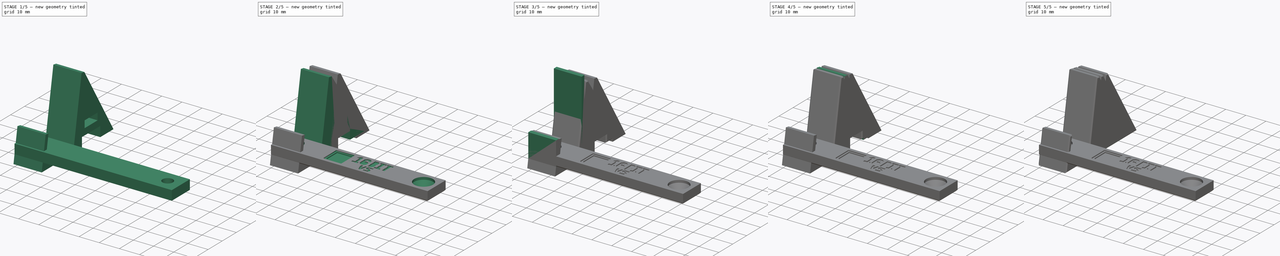
[diagram: build sequence overview — one tinted view per stage of 5, left to right]
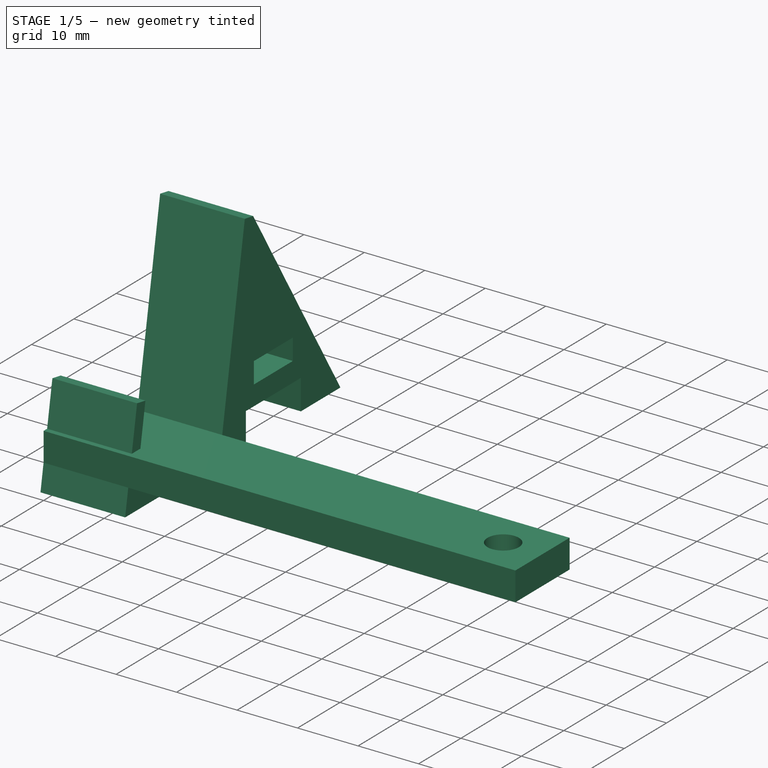
[diagram: stage 1 of 5 — iso view after this stage's code; geometry added in this stage tinted green]
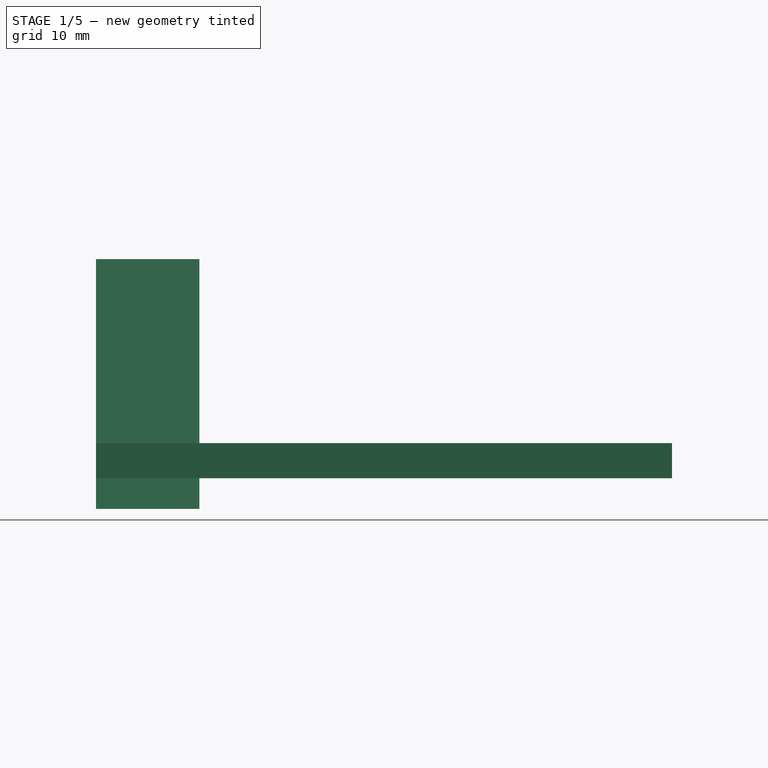
[diagram: stage 1 of 5 — front view after this stage's code; geometry added in this stage tinted green]
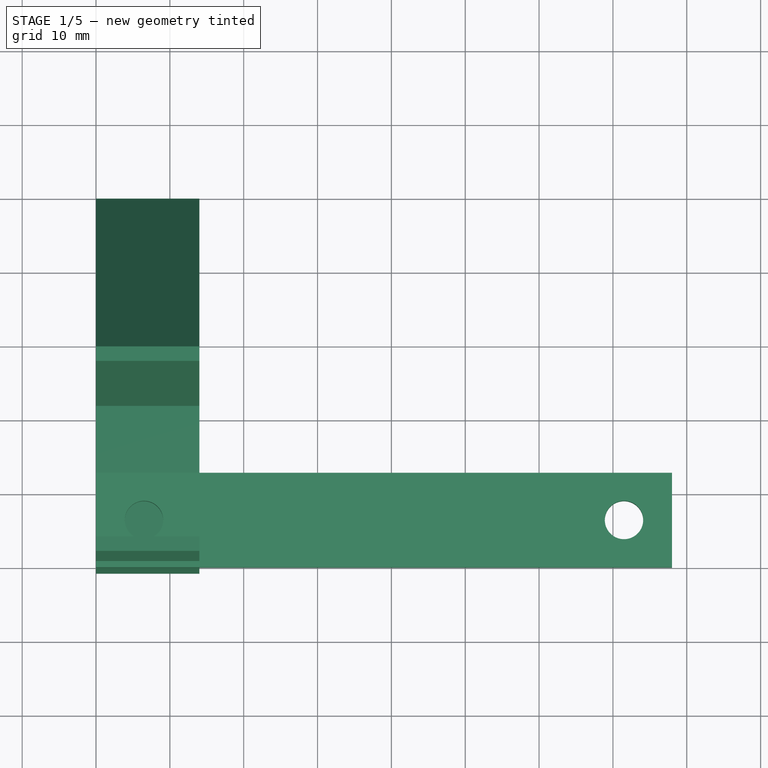
[diagram: stage 1 of 5 — top view after this stage's code; geometry added in this stage tinted green]
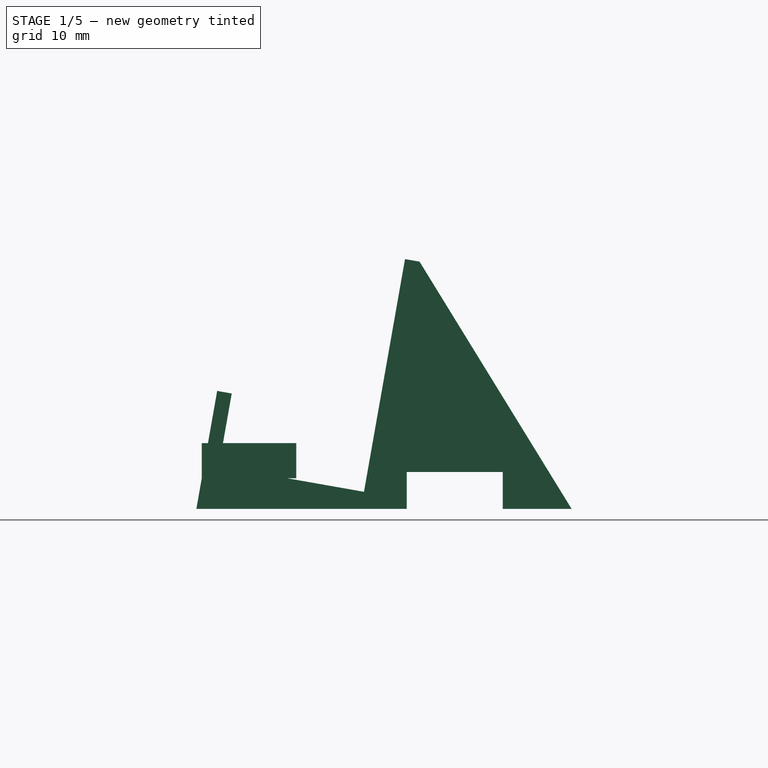
[diagram: stage 1 of 5 — right view after this stage's code; geometry added in this stage tinted green]
FCSTD DOCUMENT  (FreeCAD 1.1R14555 (Git shallow))
Label: DS Game Case Kit
License: All rights reserved
LicenseURL: http://en.wikipedia.org/wiki/All_rights_reserved
objects: Sketcher::SketchObject×43, PartDesign::Pocket×33, PartDesign::Pad×19, App::Point×16, PartDesign::Body×13, PartDesign::Chamfer×10, Part::Part2DObjectPython×9, PartDesign::FeatureBase×9, Part::DatumPlane×5, PartDesign::Groove×4, PartDesign::SubtractiveHelix×3, App::Part×3, PartDesign::Mirrored×1
note: 335 computed .brp shape members not serialized (recipe doc carries the construction recipe); baked Part::Feature solids carry a one-line shape summary decoded from their .brp

FEATURE [PartDesign::Body] Body005  label="3DS Stand"
  AllowCompound = false
  BaseFeature = -> Body004
  Group = -> [Clone003,Sketch015,Pad006,Sketch018,Pad007,Sketch021,Pocket014,Pocket022,Chamfer005]
  Origin = -> Origin006
  Placement = pos=(50,0,0) rot=(0,0,1;0rad)
  Tip = -> Chamfer005
FEATURE [Sketcher::SketchObject] Sketch024
  ArcFitTolerance = 0
  AttachmentSupport = -> [XY_Plane010]
  ExternalTypes = [0]
  FullyConstrained = true
  MakeInternals = false
  MapMode = 5
  sketch-geometry (10):
    g0: LineSegment StartX=0 StartY=0 StartZ=0 EndX=78 EndY=0 EndZ=0
    g1: LineSegment StartX=78 StartY=0 StartZ=0 EndX=78 EndY=12.8 EndZ=0
    g2: LineSegment StartX=78 StartY=12.8 StartZ=0 EndX=0 EndY=12.8 EndZ=0
    g3: LineSegment StartX=0 StartY=12.8 StartZ=0 EndX=0 EndY=0 EndZ=0
    g4: LineSegment [constr] StartX=3.6 StartY=6.4 StartZ=0 EndX=0 EndY=6.4 EndZ=0
    g5: LineSegment [constr] StartX=74.4 StartY=6.4 StartZ=0 EndX=78 EndY=6.4 EndZ=0
    g6: LineSegment [constr] StartX=3.6 StartY=6.4 StartZ=0 EndX=6.5 EndY=6.4 EndZ=0
    g7: LineSegment [constr] StartX=74.4 StartY=6.4 StartZ=0 EndX=71.5 EndY=6.4 EndZ=0
    g8: Circle CenterX=6.5 CenterY=6.4 CenterZ=0 NormalX=0 NormalY=0 NormalZ=1 AngleXU=0 Radius=2.6
    g9: Circle CenterX=71.5 CenterY=6.4 CenterZ=0 NormalX=0 NormalY=0 NormalZ=1 AngleXU=0 Radius=2.6
  constraints (27):
    c: Coincident(g0,g1)
    c: Coincident(g1,g2)
    c: Coincident(g2,g3)
    c: Coincident(g3,g0)
    c: Horizontal(g0)
    c: Horizontal(g2)
    c: Vertical(g1)
    c: Vertical(g3)
    c: Coincident(g0,g-1)
    c: Distance(g0) = 78
    c: Distance(g1) = 12.8
    c: Horizontal(g4)
    c: Horizontal(g5)
    c: Symmetric(g1,g0,g5)
    c: Symmetric(g2,g0,g4)
    c: Coincident(g6,g4)
    c: Horizontal(g6)
    c: Coincident(g7,g5)
    c: Horizontal(g7)
    c: Equal(g4,g5)
    c: Distance(g4) = 3.6
    c: Distance(g7) = 2.9
    c: Equal(g7,g6)
    c: Coincident(g8,g6)
    c: Coincident(g9,g7)
    c: Diameter(g9) = 5.2
    c: Equal(g9,g8)
FEATURE [PartDesign::Pad] Pad010
  Direction = (0,0,1)
  Length = 4.75
  Length2 = 10
  Profile = -> Sketch024
  ReferenceAxis = -> Sketch024 [N_Axis]
  SideType = 0
  Suppressed = false
  Type = 0
  Type2 = 0
FEATURE [PartDesign::Body] Body001  label="DS Stand"
  AllowCompound = false
  BaseFeature = -> Body
  Group = -> [Clone,Sketch001,Pad001,Sketch004,Pad002,Sketch008,Pocket003,Pocket004,Chamfer008]
  Origin = -> Origin001
  Placement = pos=(50,0,0) rot=(0,0,1;0rad)
  Tip = -> Chamfer008
FEATURE [Part::Part2DObjectPython] ShapeString006  # Draft 2D object (typed FeaturePython)
  FontFile = ../../Font/OpenSans-Regular.ttf
  Fuse = false
  Justification = 6
  JustificationReference = 0
  KeepLeftMargin = true
  MakeFace = true
  ObliqueAngle = 0
  Placement = pos=(12.175,4,5.05) rot=(0,0.707107,0.707107;3.14159rad)
  ScaleToSize = false
  Size = 5
  String = EDS
  Tracking = 0
FEATURE [Part::Part2DObjectPython] ShapeString007  # Draft 2D object (typed FeaturePython)
  FontFile = ../../Font/OpenSans-Regular.ttf
  Fuse = false
  Justification = 6
  JustificationReference = 0
  KeepLeftMargin = true
  MakeFace = true
  ObliqueAngle = 0
  Placement = pos=(3.72,9.18,-5.54) rot=(1,0,0;3.14159rad)
  ScaleToSize = false
  Size = 10
  String = L
  Tracking = 0
FEATURE [Part::Part2DObjectPython] ShapeString008  # Draft 2D object (typed FeaturePython)
  FontFile = ../../Font/OpenSans-Regular.ttf
  Fuse = false
  Justification = 6
  JustificationReference = 0
  KeepLeftMargin = true
  MakeFace = true
  ObliqueAngle = 0
  Placement = pos=(3.43,9.18,-6.54) rot=(1,0,0;3.14159rad)
  ScaleToSize = false
  Size = 10
  String = R
  Tracking = 0
FEATURE [Sketcher::SketchObject] Sketch027
  ArcFitTolerance = 0
  AttachmentSupport = -> [YZ_Plane011]
  ExternalTypes = [0]
  FullyConstrained = true
  MakeInternals = false
  MapMode = 5
  Placement = pos=(0,0,0) rot=(0.57735,0.57735,0.57735;2.0944rad)
  sketch-geometry (9):
    g0: LineSegment StartX=0 StartY=12 StartZ=0 EndX=0 EndY=0 EndZ=0
    g1: LineSegment StartX=0 StartY=0 StartZ=0 EndX=23.95 EndY=0 EndZ=0
    g2: LineSegment StartX=23.95 StartY=0 StartZ=0 EndX=23.95 EndY=34 EndZ=0
    g3: LineSegment StartX=23.95 StartY=34 StartZ=0 EndX=21.95 EndY=34 EndZ=0
    g4: LineSegment StartX=21.95 StartY=34 StartZ=0 EndX=21.95 EndY=2 EndZ=0
    g5: LineSegment StartX=21.95 StartY=2 StartZ=0 EndX=2 EndY=2 EndZ=0
    g6: LineSegment StartX=2 StartY=2 StartZ=0 EndX=2 EndY=12 EndZ=0
    g7: LineSegment StartX=2 StartY=12 StartZ=0 EndX=0 EndY=12 EndZ=0
    g8: LineSegment [constr] StartX=21.95 StartY=2 StartZ=0 EndX=21.95 EndY=0 EndZ=0
  constraints (26):
    c: Vertical(g0)
    c: Coincident(g1,g0)
    c: Horizontal(g1)
    c: Coincident(g2,g1)
    c: Vertical(g2)
    c: Coincident(g3,g2)
    c: Horizontal(g3)
    c: Coincident(g4,g3)
    c: Vertical(g4)
    c: Coincident(g5,g4)
    c: Horizontal(g5)
    c: Coincident(g6,g5)
    c: Vertical(g6)
    c: Coincident(g7,g6)
    c: Coincident(g7,g0)
    c: Horizontal(g7)
    c: Coincident(g8,g4)
    c: PointOnObject(g8,g1)
    c: Vertical(g8)
    c: Equal(g7,g8)
    c: Equal(g8,g3)
    c: Coincident(g0,g-1)
    c: Distance(g7) = 2
    c: Distance(g5) = 19.95
    c: Distance(g6) = 10
    c: Distance(g4) = 32
FEATURE [PartDesign::Pad] Pad011
  Direction = (1,0,0)
  Length = 14
  Length2 = 10
  Placement = pos=(0,0,0) rot=(0.57735,0.57735,0.57735;2.0944rad)
  Profile = -> Sketch027
  ReferenceAxis = -> Sketch027 [N_Axis]
  SideType = 0
  Suppressed = false
  Type = 0
  Type2 = 0
FEATURE [PartDesign::Pocket] Pocket027
  BaseFeature = -> Pad011
  Direction = (-1e-16,-1,2e-16)
  Length = 0
  Length2 = 5
  Offset = 0.2
  Placement = pos=(0,0,0) rot=(0.57735,0.57735,0.57735;2.0944rad)
  Profile = -> ShapeString006
  ReferenceAxis = -> ShapeString006 [N_Axis]
  SideType = 0
  Suppressed = false
  Type = 3
  Type2 = 0
  UpToFace = -> Pad011 [Face7]
FEATURE [PartDesign::Body] Body009  label="Eur DS Profile"
  AllowCompound = false
  Group = -> [Sketch027,Pad011,ShapeString006,Pocket027]
  Origin = -> Origin011
  Tip = -> Pocket027
FEATURE [PartDesign::FeatureBase] Clone006
  BaseFeature = -> Body009
  Placement = pos=(0,0,0) rot=(-1,0,0;0.174533rad)
  Suppressed = false
FEATURE [Sketcher::SketchObject] Sketch028
  ArcFitTolerance = 0
  AttachmentSupport = -> [Clone006]
  ExternalGeometry = -> [Clone006]
  ExternalTypes = [0]
  FullyConstrained = true
  MakeInternals = false
  MapMode = 5
  Placement = pos=(14,-1.28e-14,-9e-16) rot=(0.540716,0.6444,0.540716;1.99673rad)
  sketch-geometry (19):
    g0: LineSegment StartX=6.5e-15 StartY=0 StartZ=0 EndX=6.5e-15 EndY=-4.22303 EndZ=0
    g1: LineSegment StartX=6.5e-15 StartY=-4.22303 StartZ=0 EndX=23.95 EndY=-4.26e-14 EndZ=0
    g2: LineSegment StartX=6.5e-15 StartY=0 StartZ=0 EndX=23.95 EndY=-4.26e-14 EndZ=0
    g3: LineSegment StartX=23.95 StartY=-4.26e-14 StartZ=0 EndX=28.0585 EndY=0.724433 EndZ=0
    g4: LineSegment [constr] StartX=28.0585 StartY=0.724433 StartZ=0 EndX=40.861 EndY=2.98186 EndZ=0
    g5: LineSegment StartX=40.861 StartY=2.98186 StartZ=0 EndX=50.0464 EndY=4.60151 EndZ=0
    g6: LineSegment StartX=23.95 StartY=34 StartZ=0 EndX=50.0464 EndY=4.60151 EndZ=0
    g7: LineSegment StartX=23.95 StartY=34 StartZ=0 EndX=23.95 EndY=-4.26e-14 EndZ=0
    g8: LineSegment StartX=28.0585 StartY=0.724433 StartZ=0 EndX=27.1902 EndY=5.64847 EndZ=0
    g9: LineSegment StartX=27.1902 StartY=5.64847 StartZ=0 EndX=39.9927 EndY=7.9059 EndZ=0
    g10: LineSegment StartX=39.9927 StartY=7.9059 StartZ=0 EndX=40.861 EndY=2.98186 EndZ=0
    g11: LineSegment StartX=28.497 StartY=9.17903 StartZ=0 EndX=37.5572 EndY=10.7766 EndZ=0
    g12: LineSegment StartX=37.5572 StartY=10.7766 StartZ=0 EndX=36.9495 EndY=14.2234 EndZ=0
    g13: LineSegment StartX=36.9495 StartY=14.2234 StartZ=0 EndX=27.8892 EndY=12.6259 EndZ=0
    g14: LineSegment StartX=27.8892 StartY=12.6259 StartZ=0 EndX=28.497 EndY=9.17903 EndZ=0
    g15: LineSegment [constr] StartX=33.0271 StartY=9.97781 StartZ=0 EndX=33.5915 EndY=6.77718 EndZ=0
    g16: LineSegment [constr] StartX=36.9495 StartY=14.2234 StartZ=0 EndX=40.8887 EndY=14.918 EndZ=0
    g17: LineSegment [constr] StartX=27.8892 StartY=12.6259 StartZ=0 EndX=23.95 EndY=11.9313 EndZ=0
    g18: LineSegment [constr] StartX=27.1902 StartY=5.64847 StartZ=0 EndX=23.95 EndY=5.07713 EndZ=0
  constraints (51):
    c: Coincident(g0,g-3)
    c: Vertical(g0)
    c: Coincident(g1,g0)
    c: Coincident(g1,g-4)
    c: Coincident(g2,g0)
    c: Coincident(g2,g1)
    c: Angle(g1,g0) = 1.39626
    c: Coincident(g3,g1)
    c: Coincident(g4,g3)
    c: Coincident(g5,g4)
    c: Coincident(g6,g-4)
    c: Coincident(g6,g5)
    c: Coincident(g7,g6)
    c: Coincident(g7,g1)
    c: Parallel(g1,g3)
    c: Parallel(g3,g4)
    c: Parallel(g4,g5)
    c: Coincident(g8,g3)
    c: Coincident(g9,g8)
    c: Coincident(g10,g9)
    c: Coincident(g10,g5)
    c: Distance(g4) = 13
    c: Perpendicular(g8,g4)
    c: Perpendicular(g10,g4)
    c: Parallel(g9,g4)
    c: Distance(g10) = 5
    c: Coincident(g12,g11)
    c: Coincident(g13,g12)
    c: Coincident(g14,g13)
    c: Coincident(g14,g11)
    c: Perpendicular(g11,g14)
    c: Perpendicular(g12,g11)
    c: Perpendicular(g13,g12)
    c: Coincident(g16,g12)
    c: PointOnObject(g16,g6)
    c: Coincident(g17,g13)
    c: PointOnObject(g17,g7)
    c: Symmetric(g11,g11,g15)
    c: Symmetric(g8,g9,g15)
    c: Perpendicular(g15,g9)
    c: Perpendicular(g11,g15)
    c: Parallel(g17,g13)
    c: Parallel(g16,g13)
    c: Equal(g17,g16)
    c: Distance(g13) = 9.2
    c: Distance(g12) = 3.5
    c: Distance(g15) = 3.25
    c: Distance(g16) = 4
    c: Coincident(g18,g8)
    c: PointOnObject(g18,g7)
    c: Parallel(g18,g9)
FEATURE [PartDesign::Pad] Pad012
  BaseFeature = -> Clone006
  Direction = (1,0,2e-16)
  Length = 14
  Length2 = 10
  Placement = pos=(0,0,0) rot=(-1,0,0;0.174533rad)
  Profile = -> Sketch028
  ReferenceAxis = -> Sketch028 [N_Axis]
  Refine = true
  Reversed = true
  SideType = 0
  Suppressed = false
  Type = 0
  Type2 = 0
FEATURE [PartDesign::FeatureBase] Clone007
  BaseFeature = -> Pad012
  Placement = pos=(0,0,0) rot=(-1,0,0;0.174533rad)
  Suppressed = false
FEATURE [Sketcher::SketchObject] Sketch029
  ArcFitTolerance = 0
  AttachmentSupport = -> [Clone007]
  ExternalGeometry = -> [Clone007]
  ExternalTypes = [0]
  FullyConstrained = true
  MakeInternals = false
  MapMode = 5
  Placement = pos=(-1e-16,-9e-16,0.841126) rot=(1,0,0;3.14159rad)
  sketch-geometry (1):
    g0: Circle CenterX=7 CenterY=-34.258 CenterZ=0 NormalX=0 NormalY=0 NormalZ=1 AngleXU=0 Radius=0.5
  constraints (2):
    c: Symmetric(g-3,g-4,g0)
    c: Diameter(g0) = 1
FEATURE [PartDesign::Pocket] Pocket028
  BaseFeature = -> Clone007
  Direction = (0,-1.1e-15,1)
  Length = 11
  Length2 = 5
  Placement = pos=(0,0,0) rot=(-1,0,0;0.174533rad)
  Profile = -> Sketch029
  ReferenceAxis = -> Sketch029 [N_Axis]
  SideType = 0
  Suppressed = false
  Type = 0
  Type2 = 0
FEATURE [Sketcher::SketchObject] Sketch030
  ArcFitTolerance = 0
  AttachmentSupport = -> [Pocket028]
  ExternalGeometry = -> [Pocket028]
  ExternalTypes = [0]
  FullyConstrained = true
  MakeInternals = false
  MapMode = 5
  Placement = pos=(-1e-16,-9e-16,0.841126) rot=(1,0,0;3.14159rad)
  sketch-geometry (1):
    g0: Circle CenterX=7 CenterY=-34.258 CenterZ=0 NormalX=0 NormalY=0 NormalZ=1 AngleXU=0 Radius=2.6
  constraints (2):
    c: Coincident(g0,g-3)
    c: Diameter(g0) = 5.2
FEATURE [PartDesign::Pocket] Pocket029
  BaseFeature = -> Pocket028
  Direction = (0,-1.1e-15,1)
  Length = 5
  Length2 = 5
  Placement = pos=(0,0,0) rot=(-1,0,0;0.174533rad)
  Profile = -> Sketch030
  ReferenceAxis = -> Sketch030 [N_Axis]
  SideType = 0
  Suppressed = false
  Type = 0
  Type2 = 0
FEATURE [PartDesign::Body] Body007  label="3DS Kit Right"
  AllowCompound = false
  BaseFeature = -> Pocket045
  Group = -> [Clone005,Sketch020,ShapeString005,Pad020,Pocket047,Chamfer014]
  Origin = -> Origin009
  Placement = pos=(150,0,0) rot=(0,0,1;0rad)
  Tip = -> Chamfer014
FEATURE [App::Part] Part001  label="3DS Game Case"
  Group = -> [Body004,Body005,Body006,Body007]
  Origin = -> Origin007
  Placement = pos=(0,100,0) rot=(0,0,1;0rad)
FEATURE [Part::DatumPlane] DatumPlane002
  AttachmentOffset = pos=(0,0,0) rot=(1,0,0;1.5708rad)
  AttachmentSupport = -> [Pocket029]
  MapMode = 45
  Placement = pos=(7,34.258,7.61704) rot=(0.57735,0.57735,0.57735;2.0944rad)
FEATURE [Sketcher::SketchObject] Sketch045
  ArcFitTolerance = 1e-06
  AttachmentSupport = -> [DatumPlane002]
  ExternalGeometry = -> [Pocket029]
  ExternalTypes = [0]
  FullyConstrained = true
  MakeInternals = false
  MapMode = 5
  Placement = pos=(7,34.258,7.61704) rot=(0.57735,0.57735,0.57735;2.0944rad)
  sketch-geometry (9):
    g0: LineSegment [constr] StartX=3.55e-14 StartY=4.22408 StartZ=0 EndX=0 EndY=5.82408 EndZ=0
    g1: LineSegment [constr] StartX=0 StartY=5.82408 StartZ=0 EndX=2.2 EndY=5.82408 EndZ=0
    g2: LineSegment [constr] StartX=3.55e-14 StartY=4.22408 StartZ=0 EndX=2.2 EndY=4.22408 EndZ=0
    g3: LineSegment [constr] StartX=2.2 StartY=4.22408 StartZ=0 EndX=2.2 EndY=4.72408 EndZ=0
    g4: LineSegment StartX=2.2 StartY=4.72408 StartZ=0 EndX=2.6 EndY=5.12408 EndZ=0
    g5: LineSegment StartX=2.6 StartY=5.12408 StartZ=0 EndX=2.6 EndY=5.42408 EndZ=0
    g6: LineSegment StartX=2.6 StartY=5.42408 StartZ=0 EndX=2.2 EndY=5.82408 EndZ=0
    g7: LineSegment StartX=2.2 StartY=5.82408 StartZ=0 EndX=2.2 EndY=4.72408 EndZ=0
    g8: LineSegment [constr] StartX=2.6 StartY=5.42408 StartZ=0 EndX=8.9e-15 EndY=5.42408 EndZ=0
  constraints (25):
    c: Distance(g0) = 1.6
    c: Symmetric(g-3,g-3,g0)
    c: PointOnObject(g0,g-2)
    c: Coincident(g1,g0)
    c: Horizontal(g1)
    c: Coincident(g2,g0)
    c: Horizontal(g2)
    c: Distance(g3) = 0.5
    c: Coincident(g3,g2)
    c: Vertical(g3)
    c: Coincident(g4,g3)
    c: Distance(g5) = 0.3
    c: Coincident(g5,g4)
    c: Vertical(g5)
    c: Coincident(g6,g5)
    c: Coincident(g6,g1)
    c: Coincident(g7,g1)
    c: Coincident(g7,g3)
    c: Vertical(g7)
    c: Equal(g6,g4)
    c: Coincident(g8,g5)
    c: PointOnObject(g8,g0)
    c: Horizontal(g8)
    c: DistanceX(g8,g8) = 2.6
    c: DistanceX(g6,g6) = 0.4
FEATURE [Sketcher::SketchObject] Sketch046
  ArcFitTolerance = 1e-06
  AttachmentSupport = -> [DatumPlane002]
  ExternalGeometry = -> [Pocket029,Sketch045]
  ExternalTypes = [0,0]
  FullyConstrained = true
  MakeInternals = false
  MapMode = 5
  Placement = pos=(7,34.258,7.61704) rot=(0.57735,0.57735,0.57735;2.0944rad)
  sketch-geometry (5):
    g0: LineSegment StartX=0 StartY=-0.0259157 StartZ=0 EndX=0 EndY=0.474084 EndZ=0
    g1: LineSegment StartX=0 StartY=0.474084 StartZ=0 EndX=2.6 EndY=0.474084 EndZ=0
    g2: LineSegment StartX=2.6 StartY=0.474084 StartZ=0 EndX=3.1 EndY=-0.0259157 EndZ=0
    g3: LineSegment StartX=3.1 StartY=-0.0259157 StartZ=0 EndX=0 EndY=-0.0259157 EndZ=0
    g4: LineSegment [constr] StartX=2.6 StartY=5.12408 StartZ=0 EndX=2.6 EndY=0.474084 EndZ=0
  constraints (13):
    c: Symmetric(g-3,g-3,g0)
    c: PointOnObject(g0,g-2)
    c: Coincident(g0,g1)
    c: Horizontal(g1)
    c: Coincident(g1,g2)
    c: Coincident(g2,g3)
    c: Coincident(g3,g0)
    c: Horizontal(g3)
    c: Coincident(g4,g-4)
    c: Coincident(g4,g1)
    c: Vertical(g4)
    c: DistanceX(g2,g2) = 0.5
    c: DistanceY(g0,g0) = 0.5
FEATURE [Sketcher::SketchObject] Sketch047
  ArcFitTolerance = 1e-06
  AttachmentSupport = -> [Pocket029]
  ExternalGeometry = -> [Pocket029,Sketch045]
  ExternalTypes = [0,0]
  FullyConstrained = true
  MakeInternals = false
  MapMode = 5
  Placement = pos=(0,-1.37e-14,11.8411) rot=(1,0,0;3.14159rad)
  sketch-geometry (1):
    g0: Circle CenterX=7 CenterY=-34.258 CenterZ=0 NormalX=0 NormalY=0 NormalZ=1 AngleXU=0 Radius=2.2
  constraints (2):
    c: Coincident(g0,g-3)
    c: PointOnObject(g-4,g0)
FEATURE [Sketcher::SketchObject] Sketch048
  ArcFitTolerance = 1e-06
  AttachmentSupport = -> [Pocket029]
  ExternalGeometry = -> [Pocket029,Sketch045]
  ExternalTypes = [0,0]
  FullyConstrained = true
  MakeInternals = false
  MapMode = 5
  Placement = pos=(0,-1.37e-14,11.8411) rot=(1,0,0;3.14159rad)
  sketch-geometry (1):
    g0: Circle CenterX=7 CenterY=-34.258 CenterZ=0 NormalX=0 NormalY=0 NormalZ=1 AngleXU=0 Radius=2.6
  constraints (2):
    c: Coincident(g0,g-3)
    c: PointOnObject(g-4,g0)
FEATURE [PartDesign::Groove] Groove002
  Angle = 360
  Angle2 = 60
  Axis = (1e-16,-8.1e-15,1)
  Base = (7,34.258,7.61704)
  BaseFeature = -> Pocket029
  Placement = pos=(0,0,0) rot=(-1,0,0;0.174533rad)
  Profile = -> Sketch046
  ReferenceAxis = -> Sketch046 [V_Axis]
  Refine = true
  Suppressed = false
  Type = 0
FEATURE [PartDesign::Pocket] Pocket048
  BaseFeature = -> Groove002
  Direction = (0,0,1)
  Length = 8
  Length2 = 5
  Placement = pos=(0,0,0) rot=(-1,0,0;0.174533rad)
  Profile = -> Sketch047
  ReferenceAxis = -> Sketch047 [N_Axis]
  Refine = true
  Reversed = true
  SideType = 0
  Suppressed = false
  Type = 0
  Type2 = 0
FEATURE [PartDesign::SubtractiveHelix] SubtractiveHelix002
  Angle = 0
  Axis = (2e-16,-4.85e-14,1.6)
  Base = (7,34.258,11.8411)
  BaseFeature = -> Pocket048
  Growth = 0
  HasBeenEdited = true
  Height = 8
  LeftHanded = false
  Mode = 0
  Outside = false
  Pitch = 1.6
  Placement = pos=(0,0,0) rot=(-1,0,0;0.174533rad)
  Profile = -> Sketch045
  ReferenceAxis = -> Sketch045 [Axis]
  Refine = true
  Reversed = true
  Suppressed = false
  Tolerance = 0.1
  Turns = 5
FEATURE [PartDesign::Pad] Pad021
  BaseFeature = -> SubtractiveHelix002
  Direction = (0,0,-1)
  Length = 1.6
  Length2 = 10
  Placement = pos=(0,0,0) rot=(-1,0,0;0.174533rad)
  Profile = -> Sketch048
  ReferenceAxis = -> Sketch048 [N_Axis]
  Refine = true
  Reversed = true
  SideType = 0
  Suppressed = false
  Type = 0
  Type2 = 0
FEATURE [PartDesign::Body] Body008  label="DS Connecting Bar"
  AllowCompound = false
  Group = -> [Sketch024,Pad010,Sketch011,Sketch026,Chamfer015,DatumPlane003,Sketch049,Groove003,DatumPlane004,Mirrored,Pocket053,Pocket054,Pocket055]
  Origin = -> Origin010
  Placement = pos=(0,-25,0) rot=(0,0,1;0rad)
  Tip = -> Pocket055
FEATURE [PartDesign::Pocket] Pocket056
  BaseFeature = -> Pad021
  Direction = (0,0,1)
  Length = 5
  Length2 = 5
  Offset = 0.5
  Placement = pos=(0,0,0) rot=(-1,0,0;0.174533rad)
  Profile = -> Sketch035
  ReferenceAxis = -> Sketch035 [N_Axis]
  Refine = true
  SideType = 0
  Suppressed = false
  Type = 3
  Type2 = 0
  UpToFace = -> Pad021 [Face14]
FEATURE [PartDesign::Pocket] Pocket057
  BaseFeature = -> Pocket056
  Direction = (0,0,1)
  Length = 1
  Length2 = 5
  Placement = pos=(0,0,0) rot=(-1,0,0;0.174533rad)
  Profile = -> Pocket056 [Face112]
  Refine = true
  SideType = 0
  Suppressed = false
  Type = 0
  Type2 = 0
FEATURE [PartDesign::Pad] Pad024
  BaseFeature = -> Pocket057
  Direction = (-1,0,0)
  Length = 2
  Length2 = 10
  Placement = pos=(0,0,0) rot=(-1,0,0;0.174533rad)
  Profile = -> Sketch032
  ReferenceAxis = -> Sketch032 [N_Axis]
  Refine = true
  Reversed = true
  SideType = 0
  Suppressed = false
  Type = 0
  Type2 = 0
FEATURE [PartDesign::Pocket] Pocket058
  BaseFeature = -> Pad024
  Direction = (0,0,1)
  Length = 5
  Length2 = 5
  Offset = 0.5
  Placement = pos=(0,0,0) rot=(-1,0,0;0.174533rad)
  Profile = -> ShapeString007
  ReferenceAxis = -> ShapeString007 [N_Axis]
  Refine = true
  SideType = 0
  Suppressed = false
  Type = 3
  Type2 = 0
  UpToFace = -> Pad024 [Face13]
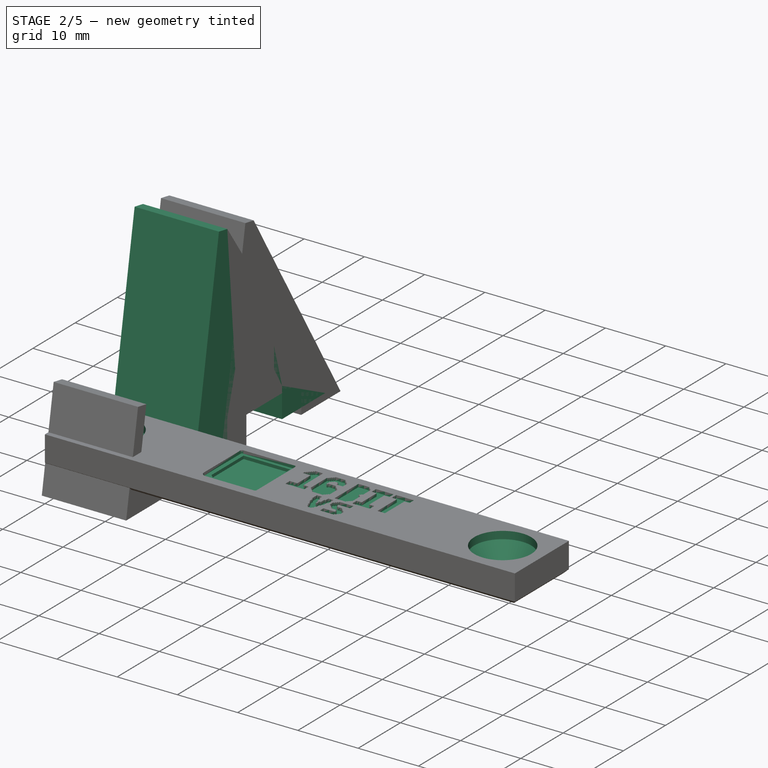
[diagram: stage 2 of 5 — iso view after this stage's code; geometry added in this stage tinted green]
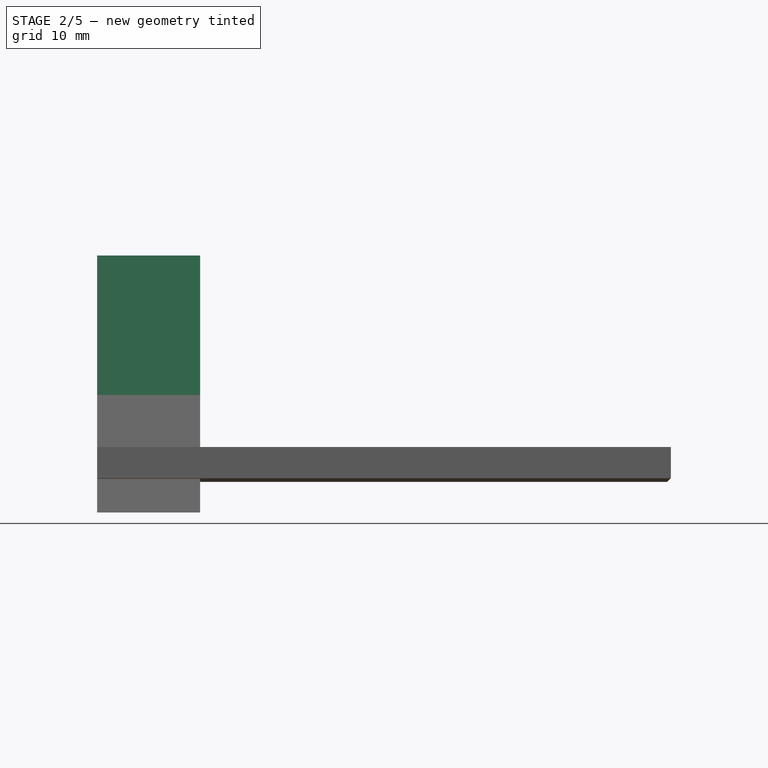
[diagram: stage 2 of 5 — front view after this stage's code; geometry added in this stage tinted green]
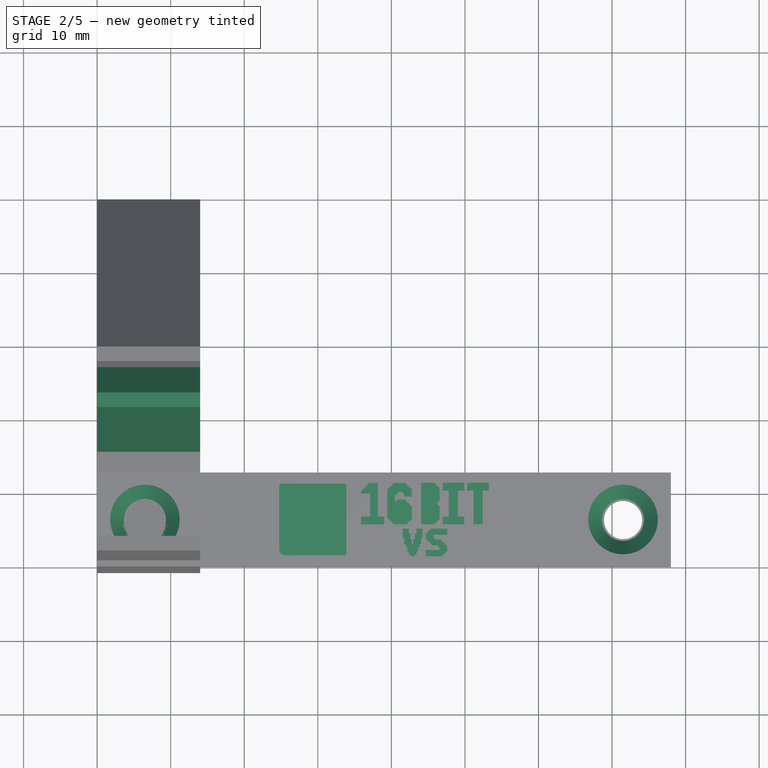
[diagram: stage 2 of 5 — top view after this stage's code; geometry added in this stage tinted green]
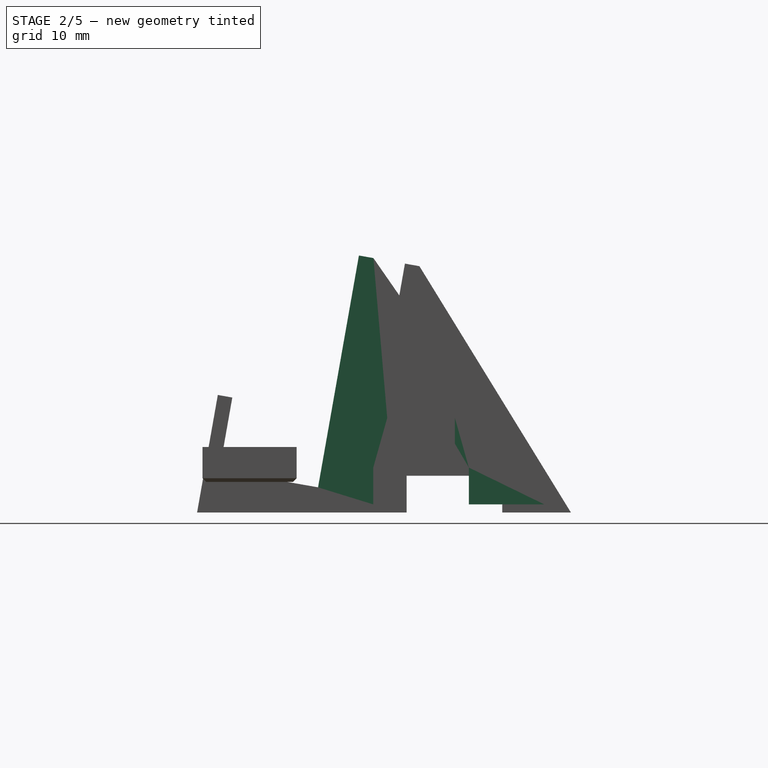
[diagram: stage 2 of 5 — right view after this stage's code; geometry added in this stage tinted green]
FEATURE [Sketcher::SketchObject] Sketch012  label="DS Icon002"
  ArcFitTolerance = 0
  ExternalTypes = [0]
  FullyConstrained = false
  MakeInternals = false
  Placement = pos=(1.29,11.4,-6.54) rot=(0,1,0;3.14159rad)
  sketch-geometry (13):
    g0: BSplineCurve PolesCount=2 KnotsCount=2 Degree=1 IsPeriodic=0
    g1: BSplineCurve PolesCount=4 KnotsCount=2 Degree=3 IsPeriodic=0
    g2: BSplineCurve PolesCount=2 KnotsCount=2 Degree=1 IsPeriodic=0
    g3: BSplineCurve PolesCount=4 KnotsCount=2 Degree=3 IsPeriodic=0
    g4: BSplineCurve PolesCount=2 KnotsCount=2 Degree=1 IsPeriodic=0
    g5: BSplineCurve PolesCount=4 KnotsCount=2 Degree=3 IsPeriodic=0
    g6: BSplineCurve PolesCount=2 KnotsCount=2 Degree=1 IsPeriodic=0
    g7: BSplineCurve PolesCount=4 KnotsCount=2 Degree=3 IsPeriodic=0
    g8: BSplineCurve PolesCount=2 KnotsCount=2 Degree=1 IsPeriodic=0
    g9: BSplineCurve PolesCount=2 KnotsCount=2 Degree=1 IsPeriodic=0
    g10: BSplineCurve PolesCount=2 KnotsCount=2 Degree=1 IsPeriodic=0
    g11: BSplineCurve PolesCount=2 KnotsCount=2 Degree=1 IsPeriodic=0
    g12: BSplineCurve PolesCount=2 KnotsCount=2 Degree=1 IsPeriodic=0
  constraints (13):
    c: Coincident(g0,g1)
    c: Coincident(g1,g2)
    c: Coincident(g2,g3)
    c: Coincident(g3,g4)
    c: Coincident(g4,g5)
    c: Coincident(g5,g6)
    c: Coincident(g6,g7)
    c: Coincident(g7,g0)
    c: Coincident(g8,g9)
    c: Coincident(g9,g10)
    c: Coincident(g10,g11)
    c: Coincident(g11,g12)
    c: Coincident(g12,g8)
FEATURE [Part::Part2DObjectPython] ShapeString001  # Draft 2D object (typed FeaturePython)
  FontFile = ../../Font/OpenSans-Regular.ttf
  Fuse = false
  Justification = 6
  JustificationReference = 0
  KeepLeftMargin = true
  MakeFace = true
  ObliqueAngle = 0
  Placement = pos=(3.72,9.18,-5.54) rot=(1,0,0;3.14159rad)
  ScaleToSize = false
  Size = 10
  String = L
  Tracking = 0
FEATURE [Part::Part2DObjectPython] ShapeString002  # Draft 2D object (typed FeaturePython)
  FontFile = ../../Font/OpenSans-Regular.ttf
  Fuse = false
  Justification = 6
  JustificationReference = 0
  KeepLeftMargin = true
  MakeFace = true
  ObliqueAngle = 0
  Placement = pos=(3.43,9.18,-6.54) rot=(1,0,0;3.14159rad)
  ScaleToSize = false
  Size = 10
  String = R
  Tracking = 0
FEATURE [Part::Part2DObjectPython] ShapeString003  # Draft 2D object (typed FeaturePython)
  FontFile = ../../Font/OpenSans-Regular.ttf
  Fuse = false
  Justification = 6
  JustificationReference = 0
  KeepLeftMargin = true
  MakeFace = true
  ObliqueAngle = 0
  Placement = pos=(12.03,4,5.05) rot=(0,0.707107,0.707107;3.14159rad)
  ScaleToSize = false
  Size = 5
  String = 3DS
  Tracking = 0
FEATURE [Part::Part2DObjectPython] ShapeString004  # Draft 2D object (typed FeaturePython)
  FontFile = ../../Font/OpenSans-Regular.ttf
  Fuse = false
  Justification = 6
  JustificationReference = 0
  KeepLeftMargin = true
  MakeFace = true
  ObliqueAngle = 0
  Placement = pos=(3.72,9.26,-5.54) rot=(1,0,0;3.14159rad)
  ScaleToSize = false
  Size = 10
  String = L
  Tracking = 0
FEATURE [Part::Part2DObjectPython] ShapeString005  # Draft 2D object (typed FeaturePython)
  FontFile = ../../Font/OpenSans-Regular.ttf
  Fuse = false
  Justification = 6
  JustificationReference = 0
  KeepLeftMargin = true
  MakeFace = true
  ObliqueAngle = 0
  Placement = pos=(3.43,9.26,-6.54) rot=(1,0,0;3.14159rad)
  ScaleToSize = false
  Size = 10
  String = R
  Tracking = 0
FEATURE [Sketcher::SketchObject] Sketch014
  ArcFitTolerance = 0
  AttachmentSupport = -> [YZ_Plane005]
  ExternalTypes = [0]
  FullyConstrained = true
  MakeInternals = false
  MapMode = 5
  Placement = pos=(0,0,0) rot=(0.57735,0.57735,0.57735;2.0944rad)
  sketch-geometry (9):
    g0: LineSegment StartX=0 StartY=12 StartZ=0 EndX=0 EndY=0 EndZ=0
    g1: LineSegment StartX=0 StartY=0 StartZ=0 EndX=17.6 EndY=0 EndZ=0
    g2: LineSegment StartX=17.6 StartY=0 StartZ=0 EndX=17.6 EndY=34 EndZ=0
    g3: LineSegment StartX=17.6 StartY=34 StartZ=0 EndX=15.6 EndY=34 EndZ=0
    g4: LineSegment StartX=15.6 StartY=34 StartZ=0 EndX=15.6 EndY=2 EndZ=0
    g5: LineSegment StartX=15.6 StartY=2 StartZ=0 EndX=2 EndY=2 EndZ=0
    g6: LineSegment StartX=2 StartY=2 StartZ=0 EndX=2 EndY=12 EndZ=0
    g7: LineSegment StartX=2 StartY=12 StartZ=0 EndX=0 EndY=12 EndZ=0
    g8: LineSegment [constr] StartX=15.6 StartY=2 StartZ=0 EndX=15.6 EndY=0 EndZ=0
  constraints (26):
    c: Vertical(g0)
    c: Coincident(g1,g0)
    c: Horizontal(g1)
    c: Coincident(g2,g1)
    c: Vertical(g2)
    c: Coincident(g3,g2)
    c: Horizontal(g3)
    c: Coincident(g4,g3)
    c: Vertical(g4)
    c: Coincident(g5,g4)
    c: Horizontal(g5)
    c: Coincident(g6,g5)
    c: Vertical(g6)
    c: Coincident(g7,g6)
    c: Coincident(g7,g0)
    c: Horizontal(g7)
    c: Coincident(g8,g4)
    c: PointOnObject(g8,g1)
    c: Vertical(g8)
    c: Equal(g7,g8)
    c: Equal(g8,g3)
    c: Coincident(g0,g-1)
    c: Distance(g7) = 2
    c: Distance(g5) = 13.6
    c: Distance(g6) = 10
    c: Distance(g4) = 32
FEATURE [PartDesign::Pad] Pad005
  Direction = (1,0,0)
  Length = 14
  Length2 = 10
  Placement = pos=(0,0,0) rot=(0.57735,0.57735,0.57735;2.0944rad)
  Profile = -> Sketch014
  ReferenceAxis = -> Sketch014 [N_Axis]
  SideType = 0
  Suppressed = false
  Type = 0
  Type2 = 0
FEATURE [PartDesign::Pocket] Pocket011
  BaseFeature = -> Pad005
  Direction = (-1e-16,-1,2e-16)
  Length = 0
  Length2 = 5
  Offset = 0.2
  Placement = pos=(0,0,0) rot=(0.57735,0.57735,0.57735;2.0944rad)
  Profile = -> ShapeString003
  ReferenceAxis = -> ShapeString003 [N_Axis]
  SideType = 0
  Suppressed = false
  Type = 3
  Type2 = 0
  UpToFace = -> Pad005 [Face7]
FEATURE [PartDesign::Body] Body004  label="3DS Profile"
  AllowCompound = false
  Group = -> [Sketch014,Pad005,ShapeString003,Pocket011]
  Origin = -> Origin005
  Tip = -> Pocket011
FEATURE [PartDesign::FeatureBase] Clone003
  BaseFeature = -> Body004
  Placement = pos=(0,0,0) rot=(-1,0,0;0.174533rad)
  Suppressed = false
FEATURE [Sketcher::SketchObject] Sketch015
  ArcFitTolerance = 0
  AttachmentSupport = -> [Clone003]
  ExternalGeometry = -> [Clone003]
  ExternalTypes = [0]
  FullyConstrained = true
  MakeInternals = false
  MapMode = 5
  Placement = pos=(14,-1.28e-14,-9e-16) rot=(0.540716,0.6444,0.540716;1.99673rad)
  sketch-geometry (19):
    g0: LineSegment StartX=6.5e-15 StartY=0 StartZ=0 EndX=6.5e-15 EndY=-3.10335 EndZ=0
    g1: LineSegment StartX=6.5e-15 StartY=-3.10335 StartZ=0 EndX=17.6 EndY=-3.55e-14 EndZ=0
    g2: LineSegment StartX=6.5e-15 StartY=0 StartZ=0 EndX=17.6 EndY=-3.55e-14 EndZ=0
    g3: LineSegment StartX=17.6 StartY=-3.55e-14 StartZ=0 EndX=23.3923 EndY=1.02134 EndZ=0
    g4: LineSegment [constr] StartX=23.3923 StartY=1.02134 StartZ=0 EndX=36.1948 EndY=3.27876 EndZ=0
    g5: LineSegment StartX=36.1948 StartY=3.27876 StartZ=0 EndX=46.2906 EndY=5.05893 EndZ=0
    g6: LineSegment StartX=17.6 StartY=34 StartZ=0 EndX=46.2906 EndY=5.05893 EndZ=0
    g7: LineSegment StartX=17.6 StartY=34 StartZ=0 EndX=17.6 EndY=-3.55e-14 EndZ=0
    g8: LineSegment StartX=23.3923 StartY=1.02134 StartZ=0 EndX=22.524 EndY=5.94537 EndZ=0
    g9: LineSegment StartX=22.524 StartY=5.94537 StartZ=0 EndX=35.3265 EndY=8.2028 EndZ=0
    g10: LineSegment StartX=35.3265 StartY=8.2028 StartZ=0 EndX=36.1948 EndY=3.27876 EndZ=0
    g11: LineSegment StartX=23.8308 StartY=9.47593 StartZ=0 EndX=32.891 EndY=11.0735 EndZ=0
    g12: LineSegment StartX=32.891 StartY=11.0735 StartZ=0 EndX=32.2833 EndY=14.5203 EndZ=0
    g13: LineSegment StartX=32.2833 StartY=14.5203 StartZ=0 EndX=23.223 EndY=12.9228 EndZ=0
    g14: LineSegment StartX=23.223 StartY=12.9228 StartZ=0 EndX=23.8308 EndY=9.47593 EndZ=0
    g15: LineSegment [constr] StartX=28.3609 StartY=10.2747 StartZ=0 EndX=28.9253 EndY=7.07409 EndZ=0
    g16: LineSegment [constr] StartX=32.2833 StartY=14.5203 StartZ=0 EndX=36.2225 EndY=15.2149 EndZ=0
    g17: LineSegment [constr] StartX=23.223 StartY=12.9228 StartZ=0 EndX=17.6 EndY=11.9313 EndZ=0
    g18: LineSegment [constr] StartX=22.524 StartY=5.94537 StartZ=0 EndX=17.6 EndY=5.07713 EndZ=0
  constraints (51):
    c: Coincident(g0,g-3)
    c: Vertical(g0)
    c: Coincident(g1,g0)
    c: Coincident(g1,g-4)
    c: Coincident(g2,g0)
    c: Coincident(g2,g1)
    c: Angle(g1,g0) = 1.39626
    c: Coincident(g3,g1)
    c: Coincident(g4,g3)
    c: Coincident(g5,g4)
    c: Coincident(g6,g-4)
    c: Coincident(g6,g5)
    c: Coincident(g7,g6)
    c: Coincident(g7,g1)
    c: Parallel(g1,g3)
    c: Parallel(g3,g4)
    c: Parallel(g4,g5)
    c: Coincident(g8,g3)
    c: Coincident(g9,g8)
    c: Coincident(g10,g9)
    c: Coincident(g10,g5)
    c: Distance(g4) = 13
    c: Perpendicular(g8,g4)
    c: Perpendicular(g10,g4)
    c: Parallel(g9,g4)
    c: Distance(g10) = 5
    c: Coincident(g12,g11)
    c: Coincident(g13,g12)
    c: Coincident(g14,g13)
    c: Coincident(g14,g11)
    c: Perpendicular(g11,g14)
    c: Perpendicular(g12,g11)
    c: Perpendicular(g13,g12)
    c: Coincident(g16,g12)
    c: PointOnObject(g16,g6)
    c: Coincident(g17,g13)
    c: PointOnObject(g17,g7)
    c: Symmetric(g11,g11,g15)
    c: Symmetric(g8,g9,g15)
    c: Perpendicular(g15,g9)
    c: Perpendicular(g11,g15)
    c: Parallel(g17,g13)
    c: Parallel(g16,g13)
    c: Distance(g13) = 9.2
    c: Distance(g12) = 3.5
    c: Distance(g15) = 3.25
    c: Coincident(g18,g8)
    c: PointOnObject(g18,g7)
    c: Parallel(g18,g9)
    c: Distance(g16) = 4
    c: Distance(g18) = 5
FEATURE [PartDesign::Pad] Pad006
  BaseFeature = -> Clone003
  Direction = (1,0,2e-16)
  Length = 14
  Length2 = 10
  Placement = pos=(0,0,0) rot=(-1,0,0;0.174533rad)
  Profile = -> Sketch015
  ReferenceAxis = -> Sketch015 [N_Axis]
  Refine = true
  Reversed = true
  SideType = 0
  Suppressed = false
  Type = 0
  Type2 = 0
FEATURE [PartDesign::FeatureBase] Clone004
  BaseFeature = -> Pad006
  Placement = pos=(0,0,0) rot=(-1,0,0;0.174533rad)
  Suppressed = false
FEATURE [Sketcher::SketchObject] Sketch016
  ArcFitTolerance = 0
  AttachmentSupport = -> [Clone004]
  ExternalGeometry = -> [Clone004]
  ExternalTypes = [0]
  FullyConstrained = true
  MakeInternals = false
  MapMode = 5
  Placement = pos=(-3e-16,-3.82e-14,1.94379) rot=(1,0,0;3.14159rad)
  sketch-geometry (1):
    g0: Circle CenterX=7 CenterY=-29.7143 CenterZ=0 NormalX=0 NormalY=0 NormalZ=1 AngleXU=0 Radius=0.5
  constraints (2):
    c: Symmetric(g-3,g-4,g0)
    c: Diameter(g0) = 1
FEATURE [PartDesign::Pocket] Pocket012
  BaseFeature = -> Clone004
  Direction = (0,-1.97e-14,1)
  Length = 11
  Length2 = 5
  Placement = pos=(0,0,0) rot=(-1,0,0;0.174533rad)
  Profile = -> Sketch016
  ReferenceAxis = -> Sketch016 [N_Axis]
  SideType = 0
  Suppressed = false
  Type = 0
  Type2 = 0
FEATURE [Sketcher::SketchObject] Sketch017
  ArcFitTolerance = 0
  AttachmentSupport = -> [Pocket012]
  ExternalGeometry = -> [Pocket012]
  ExternalTypes = [0]
  FullyConstrained = true
  MakeInternals = false
  MapMode = 5
  Placement = pos=(-3e-16,-3.82e-14,1.94379) rot=(1,0,0;3.14159rad)
  sketch-geometry (1):
    g0: Circle CenterX=7 CenterY=-29.7143 CenterZ=0 NormalX=0 NormalY=0 NormalZ=1 AngleXU=0 Radius=2.6
  constraints (2):
    c: Coincident(g0,g-3)
    c: Diameter(g0) = 5.2
FEATURE [PartDesign::Pocket] Pocket013
  BaseFeature = -> Pocket012
  Direction = (0,-1.97e-14,1)
  Length = 5
  Length2 = 5
  Placement = pos=(0,0,0) rot=(-1,0,0;0.174533rad)
  Profile = -> Sketch017
  ReferenceAxis = -> Sketch017 [N_Axis]
  SideType = 0
  Suppressed = false
  Type = 0
  Type2 = 0
FEATURE [PartDesign::Chamfer] Chamfer015
  Angle = 45
  Base = -> Pad010 [Face7]
  BaseFeature = -> Pad010
  ChamferType = 0
  FlipDirection = false
  Refine = true
  Size = 0.5
  Size2 = 1
  SupportTransform = false
  Suppressed = false
  UseAllEdges = false
FEATURE [Part::DatumPlane] DatumPlane003
  AttachmentSupport = -> [Chamfer015]
  MapMode = 45
  Placement = pos=(6.5,6.4,2.16667) rot=(0.57735,0.57735,0.57735;2.0944rad)
FEATURE [Sketcher::SketchObject] Sketch049
  ArcFitTolerance = 1e-06
  AttachmentSupport = -> [DatumPlane003]
  ExternalGeometry = -> [Chamfer015]
  ExternalTypes = [0,0]
  FullyConstrained = true
  MakeInternals = false
  MapMode = 5
  Placement = pos=(6.5,6.4,2.16667) rot=(0.57735,0.57735,0.57735;2.0944rad)
  sketch-geometry (6):
    g0: LineSegment [constr] StartX=3.8e-15 StartY=-2.16667 StartZ=0 EndX=0 EndY=-1.16667 EndZ=0
    g1: LineSegment StartX=0 StartY=-1.16667 StartZ=0 EndX=2.85 EndY=-1.16667 EndZ=0
    g2: LineSegment StartX=2.85 StartY=-1.16667 StartZ=0 EndX=4.72 EndY=1.33333 EndZ=0
    g3: LineSegment StartX=4.72 StartY=1.33333 StartZ=0 EndX=4.72 EndY=2.58333 EndZ=0
    g4: LineSegment StartX=4.72 StartY=2.58333 StartZ=0 EndX=-1.07e-14 EndY=2.58333 EndZ=0
    g5: LineSegment StartX=-1.07e-14 StartY=2.58333 StartZ=0 EndX=0 EndY=-1.16667 EndZ=0
  constraints (16):
    c: Symmetric(g-4,g-4,g0)
    c: PointOnObject(g0,g-2)
    c: Coincident(g0,g1)
    c: Horizontal(g1)
    c: Coincident(g1,g2)
    c: Coincident(g2,g3)
    c: Vertical(g3)
    c: Coincident(g3,g4)
    c: Symmetric(g-3,g-3,g4)
    c: Horizontal(g4)
    c: Coincident(g4,g5)
    c: Coincident(g5,g0)
    c: Distance(g0,g0) = 1
    c: DistanceX(g1,g1) = 2.85
    c: DistanceY(g2,g2) = 2.5
    c: DistanceX(g4,g4) = 4.72
FEATURE [PartDesign::Groove] Groove003
  Angle = 360
  Angle2 = 60
  Axis = (2.4e-15,3.1e-15,1)
  Base = (6.5,6.4,2.16667)
  BaseFeature = -> Chamfer015
  Profile = -> Sketch049
  ReferenceAxis = -> Sketch049 [V_Axis]
  Refine = true
  Suppressed = false
  Type = 0
FEATURE [Part::DatumPlane] DatumPlane004
  AttachmentOffset = pos=(0,0,0) rot=(1,0,0;1.5708rad)
  AttachmentSupport = -> [Chamfer015]
  MapMode = 45
  Placement = pos=(39,6.4,4.75) rot=(0.57735,0.57735,0.57735;2.0944rad)
FEATURE [PartDesign::Mirrored] Mirrored
  BaseFeature = -> Groove003
  MirrorPlane = -> DatumPlane004
  Originals = -> [Groove003]
  Refine = true
  Suppressed = false
  TransformMode = 0
FEATURE [PartDesign::Pocket] Pocket053
  BaseFeature = -> Mirrored
  Direction = (0,0,-1)
  Length = 5
  Length2 = 5
  Offset = 0.5
  Profile = -> Sketch011
  ReferenceAxis = -> Sketch011 [N_Axis]
  Refine = true
  SideType = 0
  Suppressed = false
  Type = 3
  Type2 = 0
  UpToFace = -> Mirrored [Face4]
FEATURE [PartDesign::Pocket] Pocket054
  BaseFeature = -> Pocket053
  Direction = (0,0,-1)
  Length = 1
  Length2 = 5
  Profile = -> Pocket053 [Face35]
  Refine = true
  SideType = 0
  Suppressed = false
  Type = 0
  Type2 = 0
FEATURE [PartDesign::Pocket] Pocket055
  BaseFeature = -> Pocket054
  Direction = (0,0,-1)
  Length = 5
  Length2 = 5
  Offset = 0.5
  Profile = -> Sketch026
  ReferenceAxis = -> Sketch026 [N_Axis]
  Refine = true
  SideType = 0
  Suppressed = false
  Type = 3
  Type2 = 0
  UpToFace = -> Pocket054 [Face4]
FEATURE [PartDesign::FeatureBase] Clone008
  BaseFeature = -> Pocket057
  Placement = pos=(0,0,0) rot=(-1,0,0;0.174533rad)
  Suppressed = false
FEATURE [Sketcher::SketchObject] Sketch033
  ArcFitTolerance = 0
  AttachmentSupport = -> [Clone008]
  ExternalGeometry = -> [Clone008]
  ExternalTypes = [0]
  FullyConstrained = true
  MakeInternals = false
  MapMode = 5
  Placement = pos=(14,6.6e-15,6.4e-15) rot=(0.540716,0.6444,0.540716;1.99673rad)
  sketch-geometry (4):
    g0: LineSegment StartX=27.8892 StartY=12.6259 StartZ=0 EndX=36.9495 EndY=14.2234 EndZ=0
    g1: LineSegment StartX=36.9495 StartY=14.2234 StartZ=0 EndX=37.5572 EndY=10.7766 EndZ=0
    g2: LineSegment StartX=37.5572 StartY=10.7766 StartZ=0 EndX=28.497 EndY=9.17903 EndZ=0
    g3: LineSegment StartX=28.497 StartY=9.17903 StartZ=0 EndX=27.8892 EndY=12.6259 EndZ=0
  constraints (8):
    c: Coincident(g0,g-3)
    c: Coincident(g0,g-4)
    c: Coincident(g1,g0)
    c: Coincident(g1,g-4)
    c: Coincident(g2,g1)
    c: Coincident(g2,g-3)
    c: Coincident(g3,g2)
    c: Coincident(g3,g0)
FEATURE [PartDesign::Pad] Pad023
  BaseFeature = -> Clone008
  Direction = (1,0,2e-16)
  Length = 2
  Length2 = 10
  Placement = pos=(0,0,0) rot=(-1,0,0;0.174533rad)
  Profile = -> Sketch033
  ReferenceAxis = -> Sketch033 [N_Axis]
  Refine = true
  Reversed = true
  SideType = 0
  Suppressed = false
  Type = 0
  Type2 = 0
FEATURE [PartDesign::Pocket] Pocket052
  BaseFeature = -> Pad023
  Direction = (0,1e-16,1)
  Length = 5
  Length2 = 5
  Offset = 0.5
  Placement = pos=(0,0,0) rot=(-1,0,0;0.174533rad)
  Profile = -> ShapeString008
  ReferenceAxis = -> ShapeString008 [N_Axis]
  Refine = true
  SideType = 0
  Suppressed = false
  Type = 3
  Type2 = 0
  UpToFace = -> Pad023 [Face13]
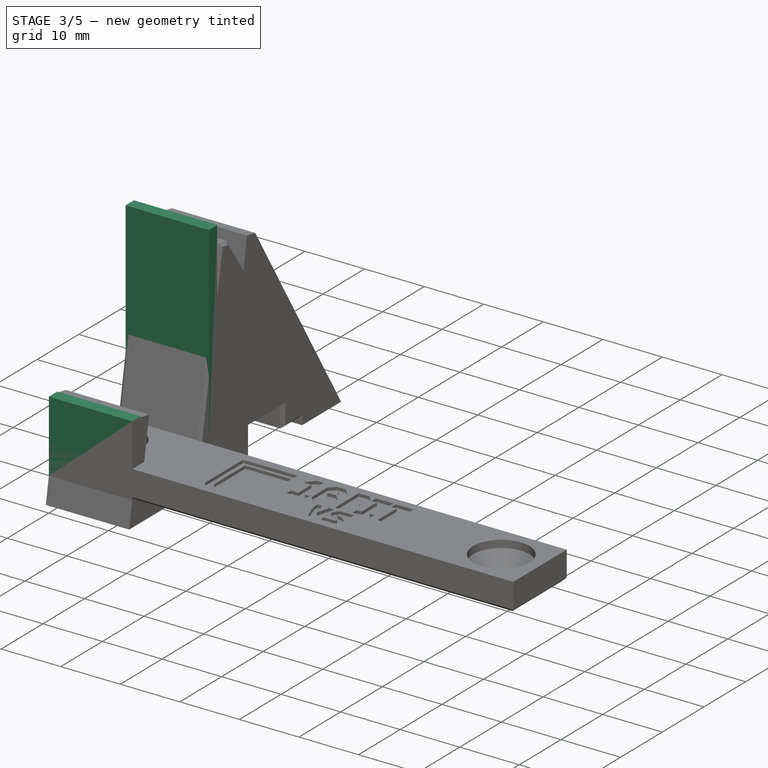
[diagram: stage 3 of 5 — iso view after this stage's code; geometry added in this stage tinted green]
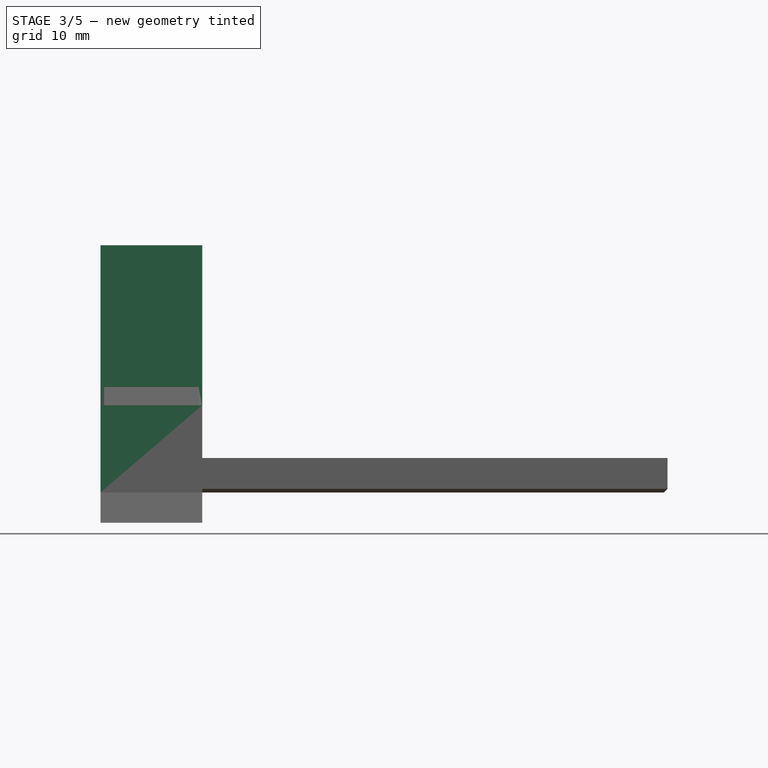
[diagram: stage 3 of 5 — front view after this stage's code; geometry added in this stage tinted green]
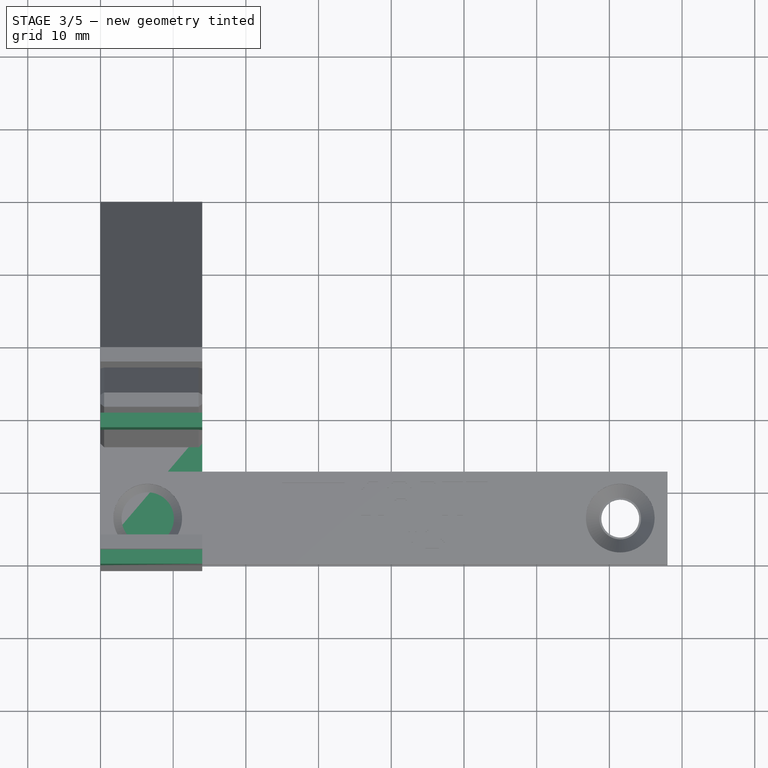
[diagram: stage 3 of 5 — top view after this stage's code; geometry added in this stage tinted green]
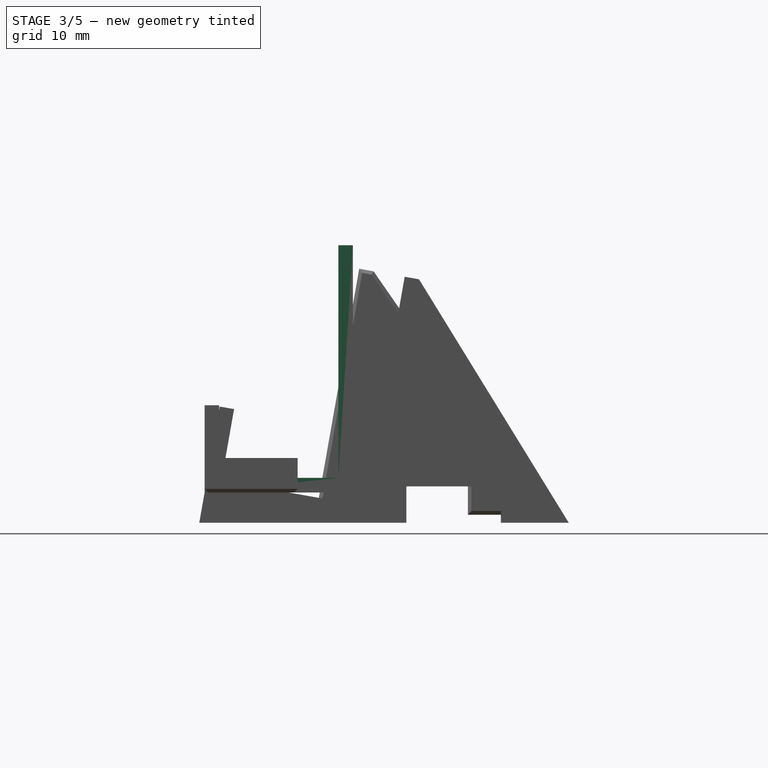
[diagram: stage 3 of 5 — right view after this stage's code; geometry added in this stage tinted green]
FEATURE [Sketcher::SketchObject] Sketch
  ArcFitTolerance = 0
  AttachmentSupport = -> [YZ_Plane]
  ExternalTypes = [0]
  FullyConstrained = true
  MakeInternals = false
  MapMode = 5
  Placement = pos=(0,0,0) rot=(0.57735,0.57735,0.57735;2.0944rad)
  sketch-geometry (9):
    g0: LineSegment StartX=0 StartY=12 StartZ=0 EndX=0 EndY=0 EndZ=0
    g1: LineSegment StartX=0 StartY=0 StartZ=0 EndX=20.4 EndY=0 EndZ=0
    g2: LineSegment StartX=20.4 StartY=0 StartZ=0 EndX=20.4 EndY=34 EndZ=0
    g3: LineSegment StartX=20.4 StartY=34 StartZ=0 EndX=18.4 EndY=34 EndZ=0
    g4: LineSegment StartX=18.4 StartY=34 StartZ=0 EndX=18.4 EndY=2 EndZ=0
    g5: LineSegment StartX=18.4 StartY=2 StartZ=0 EndX=2 EndY=2 EndZ=0
    g6: LineSegment StartX=2 StartY=2 StartZ=0 EndX=2 EndY=12 EndZ=0
    g7: LineSegment StartX=2 StartY=12 StartZ=0 EndX=0 EndY=12 EndZ=0
    g8: LineSegment [constr] StartX=18.4 StartY=2 StartZ=0 EndX=18.4 EndY=0 EndZ=0
  constraints (26):
    c: Vertical(g0)
    c: Coincident(g1,g0)
    c: Horizontal(g1)
    c: Coincident(g2,g1)
    c: Vertical(g2)
    c: Coincident(g3,g2)
    c: Horizontal(g3)
    c: Coincident(g4,g3)
    c: Vertical(g4)
    c: Coincident(g5,g4)
    c: Horizontal(g5)
    c: Coincident(g6,g5)
    c: Vertical(g6)
    c: Coincident(g7,g6)
    c: Coincident(g7,g0)
    c: Horizontal(g7)
    c: Coincident(g8,g4)
    c: PointOnObject(g8,g1)
    c: Vertical(g8)
    c: Equal(g7,g8)
    c: Equal(g8,g3)
    c: Coincident(g0,g-1)
    c: Distance(g7) = 2
    c: Distance(g5) = 16.4
    c: Distance(g6) = 10
    c: Distance(g4) = 32
FEATURE [PartDesign::Pad] Pad
  Direction = (1,0,0)
  Length = 14
  Length2 = 10
  Placement = pos=(0,0,0) rot=(0.57735,0.57735,0.57735;2.0944rad)
  Profile = -> Sketch
  ReferenceAxis = -> Sketch [N_Axis]
  SideType = 0
  Suppressed = false
  Type = 0
  Type2 = 0
FEATURE [Part::Part2DObjectPython] ShapeString  # Draft 2D object (typed FeaturePython)
  FontFile = ../../Font/OpenSans-Regular.ttf
  Fuse = false
  Justification = 6
  JustificationReference = 0
  KeepLeftMargin = true
  MakeFace = true
  ObliqueAngle = 0
  Placement = pos=(10.61,4,5.05) rot=(0,0.707107,0.707107;3.14159rad)
  ScaleToSize = false
  Size = 5
  String = DS
  Tracking = 0
FEATURE [PartDesign::Pocket] Pocket
  BaseFeature = -> Pad
  Direction = (-1e-16,-1,2e-16)
  Length = 0
  Length2 = 5
  Offset = 0.2
  Placement = pos=(0,0,0) rot=(0.57735,0.57735,0.57735;2.0944rad)
  Profile = -> ShapeString
  ReferenceAxis = -> ShapeString [N_Axis]
  SideType = 0
  Suppressed = false
  Type = 3
  Type2 = 0
  UpToFace = -> Pad [Face7]
FEATURE [PartDesign::Body] Body003  label="DS Kit Right"
  AllowCompound = false
  BaseFeature = -> Pad016
  Group = -> [Clone002,Sketch006,Pad004,ShapeString002,Pocket042,Chamfer012]
  Origin = -> Origin004
  Placement = pos=(150,0,0) rot=(0,0,1;0rad)
  Tip = -> Chamfer012
FEATURE [App::Part] Part  label="DS Game Case"
  Group = -> [Body,Body001,Body002,Body003]
  Origin = -> Origin002
FEATURE [Part::DatumPlane] DatumPlane001
  AttachmentOffset = pos=(0,0,0) rot=(1,0,0;1.5708rad)
  AttachmentSupport = -> [Pocket013]
  MapMode = 45
  Placement = pos=(7,29.7143,8.71971) rot=(0.57735,0.57735,0.57735;2.0944rad)
FEATURE [Sketcher::SketchObject] Sketch041
  ArcFitTolerance = 1e-06
  AttachmentSupport = -> [DatumPlane001]
  ExternalGeometry = -> [Pocket013]
  ExternalTypes = [0]
  FullyConstrained = true
  MakeInternals = false
  MapMode = 5
  Placement = pos=(7,29.7143,8.71971) rot=(0.57735,0.57735,0.57735;2.0944rad)
  sketch-geometry (9):
    g0: LineSegment [constr] StartX=-2.3164e-12 StartY=4.22408 StartZ=0 EndX=-2.3164e-12 EndY=5.82408 EndZ=0
    g1: LineSegment [constr] StartX=-2.3164e-12 StartY=5.82408 StartZ=0 EndX=2.2 EndY=5.82408 EndZ=0
    g2: LineSegment [constr] StartX=-2.3164e-12 StartY=4.22408 StartZ=0 EndX=2.2 EndY=4.22408 EndZ=0
    g3: LineSegment [constr] StartX=2.2 StartY=4.22408 StartZ=0 EndX=2.2 EndY=4.72408 EndZ=0
    g4: LineSegment StartX=2.2 StartY=5.82408 StartZ=0 EndX=2.2 EndY=4.72408 EndZ=0
    g5: LineSegment StartX=2.2 StartY=4.72408 StartZ=0 EndX=2.6 EndY=5.12408 EndZ=0
    g6: LineSegment StartX=2.6 StartY=5.12408 StartZ=0 EndX=2.6 EndY=5.42408 EndZ=0
    g7: LineSegment StartX=2.6 StartY=5.42408 StartZ=0 EndX=2.2 EndY=5.82408 EndZ=0
    g8: LineSegment [constr] StartX=2.6 StartY=5.42408 StartZ=0 EndX=-2.3164e-12 EndY=5.42408 EndZ=0
  constraints (25):
    c: Distance(g0) = 1.6
    c: Vertical(g0)
    c: Coincident(g1,g0)
    c: Horizontal(g1)
    c: Coincident(g2,g0)
    c: Horizontal(g2)
    c: Distance(g3) = 0.5
    c: Coincident(g3,g2)
    c: Vertical(g3)
    c: Coincident(g1,g4)
    c: Coincident(g4,g3)
    c: Coincident(g4,g5)
    c: Coincident(g5,g6)
    c: Vertical(g6)
    c: Coincident(g6,g7)
    c: Coincident(g7,g4)
    c: Vertical(g4)
    c: Equal(g7,g5)
    c: Symmetric(g-3,g-3,g0)
    c: Distance(g8) = 2.6
    c: Coincident(g8,g6)
    c: PointOnObject(g8,g0)
    c: Horizontal(g8)
    c: DistanceY(g6,g6) = 0.3
    c: DistanceX(g7,g7) = 0.4
FEATURE [Sketcher::SketchObject] Sketch042
  ArcFitTolerance = 1e-06
  AttachmentSupport = -> [DatumPlane001]
  ExternalGeometry = -> [Pocket013,Sketch041]
  ExternalTypes = [0,0]
  FullyConstrained = true
  MakeInternals = false
  MapMode = 5
  Placement = pos=(7,29.7143,8.71971) rot=(0.57735,0.57735,0.57735;2.0944rad)
  sketch-geometry (5):
    g0: LineSegment StartX=-1.0232e-12 StartY=-0.0259157 StartZ=0 EndX=0 EndY=0.474084 EndZ=0
    g1: LineSegment StartX=0 StartY=0.474084 StartZ=0 EndX=2.6 EndY=0.474084 EndZ=0
    g2: LineSegment StartX=2.6 StartY=0.474084 StartZ=0 EndX=3.1 EndY=-0.0259157 EndZ=0
    g3: LineSegment StartX=3.1 StartY=-0.0259157 StartZ=0 EndX=-1.0232e-12 EndY=-0.0259157 EndZ=0
    g4: LineSegment [constr] StartX=2.6 StartY=5.12408 StartZ=0 EndX=2.6 EndY=0.474084 EndZ=0
  constraints (13):
    c: Symmetric(g-3,g-3,g0)
    c: PointOnObject(g0,g-2)
    c: Coincident(g0,g1)
    c: Horizontal(g1)
    c: Coincident(g1,g2)
    c: Coincident(g2,g3)
    c: Coincident(g3,g0)
    c: Horizontal(g3)
    c: Coincident(g4,g-4)
    c: Coincident(g4,g1)
    c: Vertical(g4)
    c: DistanceX(g2,g2) = 0.5
    c: DistanceY(g0,g0) = 0.5
FEATURE [Sketcher::SketchObject] Sketch043
  ArcFitTolerance = 1e-06
  AttachmentSupport = -> [Pocket013]
  ExternalGeometry = -> [Pocket013,Sketch041]
  ExternalTypes = [0,0,0]
  FullyConstrained = true
  MakeInternals = false
  MapMode = 5
  Placement = pos=(0,-2.555e-13,12.9438) rot=(1,0,0;3.14159rad)
  sketch-geometry (1):
    g0: Circle CenterX=7 CenterY=-29.7143 CenterZ=0 NormalX=0 NormalY=0 NormalZ=1 AngleXU=0 Radius=2.2
  constraints (2):
    c: Coincident(g0,g-3)
    c: PointOnObject(g-5,g0)
FEATURE [Sketcher::SketchObject] Sketch044
  ArcFitTolerance = 1e-06
  AttachmentSupport = -> [Pocket013]
  ExternalGeometry = -> [Pocket013,Sketch041]
  ExternalTypes = [0,0]
  FullyConstrained = true
  MakeInternals = false
  MapMode = 5
  Placement = pos=(0,-2.555e-13,12.9438) rot=(1,0,0;3.14159rad)
  sketch-geometry (1):
    g0: Circle CenterX=7 CenterY=-29.7143 CenterZ=0 NormalX=0 NormalY=0 NormalZ=1 AngleXU=0 Radius=2.6
  constraints (2):
    c: Coincident(g0,g-3)
    c: PointOnObject(g-4,g0)
FEATURE [PartDesign::Groove] Groove001
  Angle = 360
  Angle2 = 60
  Axis = (0,2.847e-13,1)
  Base = (7,29.7143,8.71971)
  BaseFeature = -> Pocket013
  Placement = pos=(0,0,0) rot=(-1,0,0;0.174533rad)
  Profile = -> Sketch042
  ReferenceAxis = -> Sketch042 [V_Axis]
  Refine = true
  Suppressed = false
  Type = 0
FEATURE [PartDesign::Pocket] Pocket043
  BaseFeature = -> Groove001
  Direction = (0,-1.97e-14,1)
  Length = 8
  Length2 = 5
  Placement = pos=(0,0,0) rot=(-1,0,0;0.174533rad)
  Profile = -> Sketch043
  ReferenceAxis = -> Sketch043 [N_Axis]
  Refine = true
  Reversed = true
  SideType = 0
  Suppressed = false
  Type = 0
  Type2 = 0
FEATURE [PartDesign::SubtractiveHelix] SubtractiveHelix001
  Angle = 0
  Axis = (0,2.847e-13,1)
  Base = (7,29.7143,8.71971)
  BaseFeature = -> Pocket043
  Growth = 0
  HasBeenEdited = true
  Height = 8
  LeftHanded = false
  Mode = 0
  Outside = false
  Pitch = 1.6
  Placement = pos=(0,0,0) rot=(-1,0,0;0.174533rad)
  Profile = -> Sketch041
  ReferenceAxis = -> Sketch041 [V_Axis]
  Refine = true
  Reversed = true
  Suppressed = false
  Tolerance = 0.1
  Turns = 5
FEATURE [PartDesign::Pad] Pad018
  BaseFeature = -> SubtractiveHelix001
  Direction = (0,1.97e-14,-1)
  Length = 1.6
  Length2 = 10
  Placement = pos=(0,0,0) rot=(-1,0,0;0.174533rad)
  Profile = -> Sketch044
  ReferenceAxis = -> Sketch044 [N_Axis]
  Refine = true
  Reversed = true
  SideType = 0
  Suppressed = false
  Type = 0
  Type2 = 0
FEATURE [PartDesign::Pocket] Pocket044
  BaseFeature = -> Pad018
  Direction = (-1e-16,0,1)
  Length = 5
  Length2 = 5
  Offset = 0.5
  Placement = pos=(0,0,0) rot=(-1,0,0;0.174533rad)
  Profile = -> Sketch022
  ReferenceAxis = -> Sketch022 [N_Axis]
  Refine = true
  SideType = 0
  Suppressed = false
  Type = 3
  Type2 = 0
  UpToFace = -> Pad018 [Face14]
FEATURE [PartDesign::Pocket] Pocket045
  BaseFeature = -> Pocket044
  Direction = (-2e-16,-1e-16,1)
  Length = 1
  Length2 = 5
  Placement = pos=(0,0,0) rot=(-1,0,0;0.174533rad)
  Profile = -> Pocket044 [Face135]
  Refine = true
  SideType = 0
  Suppressed = false
  Type = 0
  Type2 = 0
FEATURE [PartDesign::FeatureBase] Clone005
  BaseFeature = -> Pocket045
  Placement = pos=(0,0,0) rot=(-1,0,0;0.174533rad)
  Suppressed = false
FEATURE [Sketcher::SketchObject] Sketch020
  ArcFitTolerance = 0
  AttachmentSupport = -> [Clone005]
  ExternalGeometry = -> [Clone005]
  ExternalTypes = [0]
  FullyConstrained = true
  MakeInternals = false
  MapMode = 5
  Placement = pos=(14,6.5e-15,7.3e-15) rot=(0.540716,0.6444,0.540716;1.99673rad)
  sketch-geometry (4):
    g0: LineSegment StartX=23.223 StartY=12.9228 StartZ=0 EndX=32.2833 EndY=14.5203 EndZ=0
    g1: LineSegment StartX=32.2833 StartY=14.5203 StartZ=0 EndX=32.891 EndY=11.0735 EndZ=0
    g2: LineSegment StartX=32.891 StartY=11.0735 StartZ=0 EndX=23.8308 EndY=9.47593 EndZ=0
    g3: LineSegment StartX=23.8308 StartY=9.47593 StartZ=0 EndX=23.223 EndY=12.9228 EndZ=0
  constraints (8):
    c: Coincident(g0,g-3)
    c: Coincident(g0,g-4)
    c: Coincident(g1,g0)
    c: Coincident(g1,g-4)
    c: Coincident(g2,g1)
    c: Coincident(g2,g-3)
    c: Coincident(g3,g2)
    c: Coincident(g3,g0)
FEATURE [PartDesign::Pad] Pad019
  BaseFeature = -> Pocket045
  Direction = (-1,0,2e-16)
  Length = 2
  Length2 = 10
  Placement = pos=(0,0,0) rot=(-1,0,0;0.174533rad)
  Profile = -> Sketch019
  ReferenceAxis = -> Sketch019 [N_Axis]
  Refine = true
  Reversed = true
  SideType = 0
  Suppressed = false
  Type = 0
  Type2 = 0
FEATURE [PartDesign::Pocket] Pocket046
  BaseFeature = -> Pad019
  Direction = (0,1e-16,1)
  Length = 5
  Length2 = 5
  Offset = 0.5
  Placement = pos=(0,0,0) rot=(-1,0,0;0.174533rad)
  Profile = -> ShapeString004
  ReferenceAxis = -> ShapeString004 [N_Axis]
  Refine = true
  SideType = 0
  Suppressed = false
  Type = 3
  Type2 = 0
  UpToFace = -> Pad019 [Face13]
FEATURE [PartDesign::Chamfer] Chamfer013
  Angle = 45
  Base = -> Pocket046 [Face5,Face4]
  BaseFeature = -> Pocket046
  ChamferType = 0
  FlipDirection = false
  Placement = pos=(0,0,0) rot=(-1,0,0;0.174533rad)
  Refine = true
  Size = 0.5
  Size2 = 1
  SupportTransform = false
  Suppressed = false
  UseAllEdges = false
FEATURE [PartDesign::Body] Body006  label="3DS Kit Left"
  AllowCompound = false
  BaseFeature = -> Pad006
  Group = -> [Clone004,Sketch016,Pocket012,Sketch017,Pocket013,Sketch019,Sketch022,ShapeString004,DatumPlane001,Sketch041,Sketch042,Sketch043,Sketch044,Groove001,Pocket043,SubtractiveHelix001,Pad018,Pocket044,Pocket045,Pad019,Pocket046,Chamfer013]
  Origin = -> Origin008
  Placement = pos=(100,0,0) rot=(0,0,1;0rad)
  Tip = -> Chamfer013
FEATURE [PartDesign::Pad] Pad020
  BaseFeature = -> Clone005
  Direction = (1,0,2e-16)
  Length = 2
  Length2 = 10
  Placement = pos=(0,0,0) rot=(-1,0,0;0.174533rad)
  Profile = -> Sketch020
  ReferenceAxis = -> Sketch020 [N_Axis]
  Refine = true
  Reversed = true
  SideType = 0
  Suppressed = false
  Type = 0
  Type2 = 0
FEATURE [PartDesign::Pocket] Pocket047
  BaseFeature = -> Pad020
  Direction = (0,1e-16,1)
  Length = 5
  Length2 = 5
  Offset = 0.5
  Placement = pos=(0,0,0) rot=(-1,0,0;0.174533rad)
  Profile = -> ShapeString005
  ReferenceAxis = -> ShapeString005 [N_Axis]
  Refine = true
  SideType = 0
  Suppressed = false
  Type = 3
  Type2 = 0
  UpToFace = -> Pad020 [Face13]
FEATURE [PartDesign::Chamfer] Chamfer014
  Angle = 45
  Base = -> Pocket047 [Face5,Face4]
  BaseFeature = -> Pocket047
  ChamferType = 0
  FlipDirection = false
  Placement = pos=(0,0,0) rot=(-1,0,0;0.174533rad)
  Refine = true
  Size = 0.5
  Size2 = 1
  SupportTransform = false
  Suppressed = false
  UseAllEdges = false
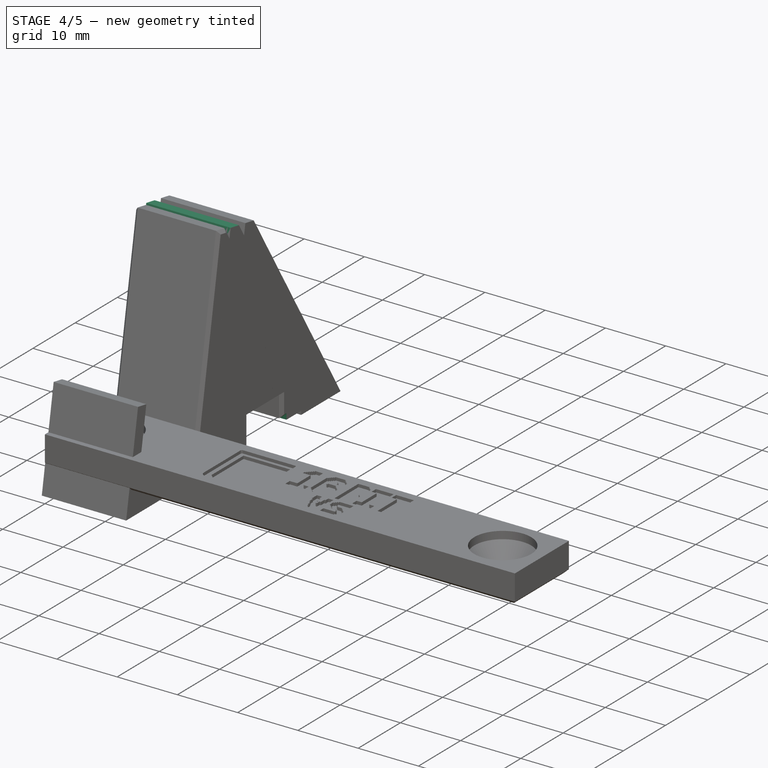
[diagram: stage 4 of 5 — iso view after this stage's code; geometry added in this stage tinted green]
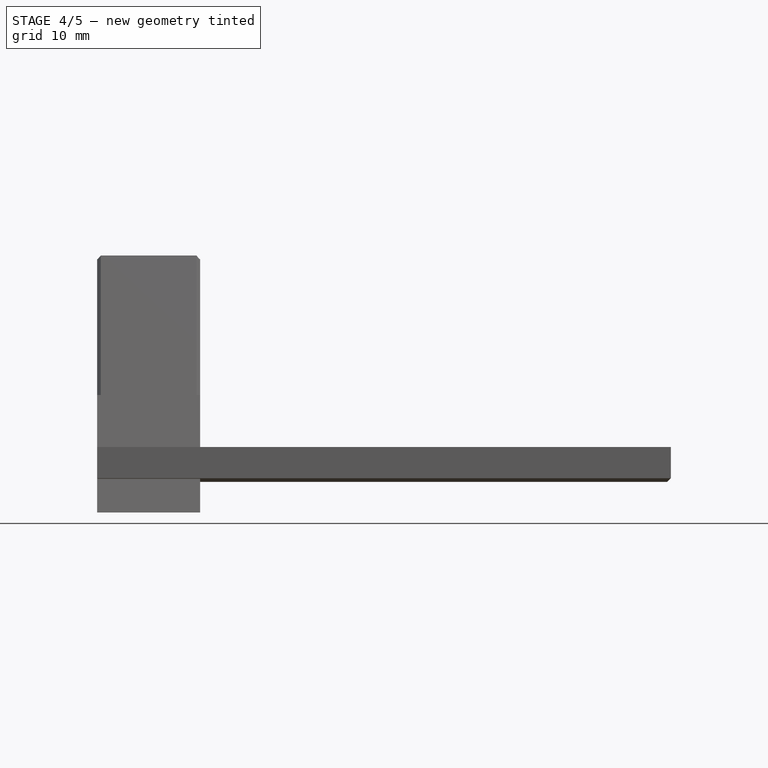
[diagram: stage 4 of 5 — front view after this stage's code; geometry added in this stage tinted green]
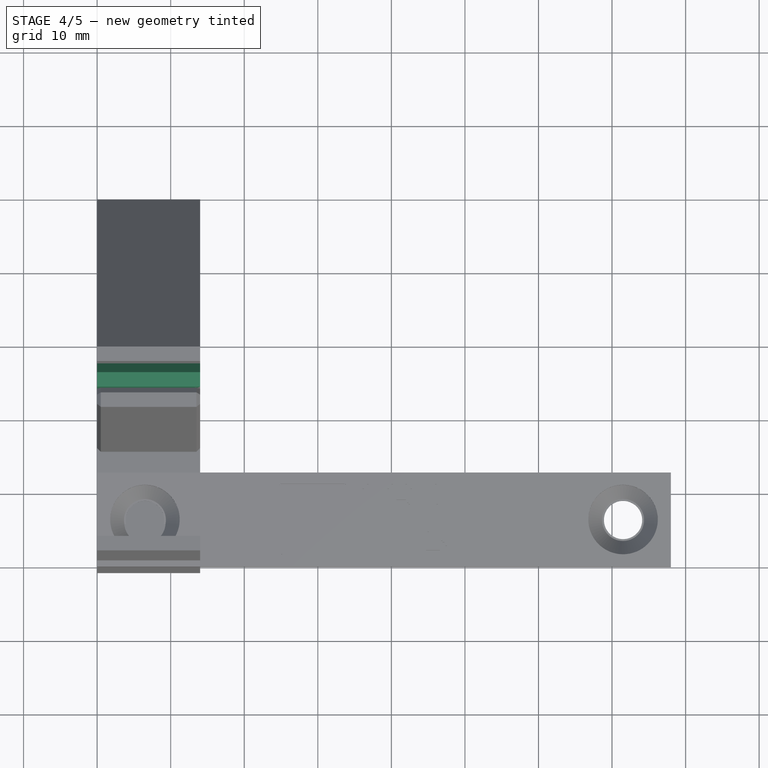
[diagram: stage 4 of 5 — top view after this stage's code; geometry added in this stage tinted green]
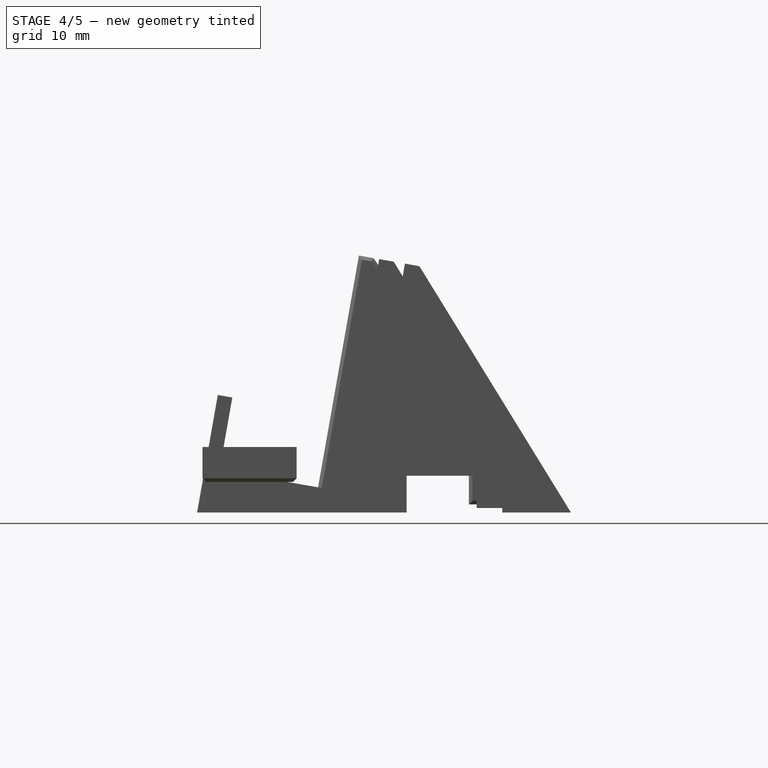
[diagram: stage 4 of 5 — right view after this stage's code; geometry added in this stage tinted green]
FEATURE [PartDesign::Body] Body  label="DS Profile"
  AllowCompound = false
  Group = -> [Sketch,Pad,ShapeString,Pocket]
  Origin = -> Origin
  Tip = -> Pocket
FEATURE [PartDesign::FeatureBase] Clone
  BaseFeature = -> Body
  Placement = pos=(0,0,0) rot=(-1,0,0;0.174533rad)
  Suppressed = false
FEATURE [Sketcher::SketchObject] Sketch001
  ArcFitTolerance = 0
  AttachmentSupport = -> [Clone]
  ExternalGeometry = -> [Clone]
  ExternalTypes = [0]
  FullyConstrained = true
  MakeInternals = false
  MapMode = 5
  Placement = pos=(14,-1.28e-14,-9e-16) rot=(0.540716,0.6444,0.540716;1.99673rad)
  sketch-geometry (19):
    g0: LineSegment StartX=6.1e-15 StartY=0 StartZ=0 EndX=6.1e-15 EndY=-3.59707 EndZ=0
    g1: LineSegment StartX=6.1e-15 StartY=-3.59707 StartZ=0 EndX=20.4 EndY=-3.55e-14 EndZ=0
    g2: LineSegment StartX=6.1e-15 StartY=0 StartZ=0 EndX=20.4 EndY=-3.55e-14 EndZ=0
    g3: LineSegment StartX=20.4 StartY=-3.55e-14 StartZ=0 EndX=24.5085 EndY=0.724433 EndZ=0
    g4: LineSegment [constr] StartX=24.5085 StartY=0.724433 StartZ=0 EndX=37.311 EndY=2.98186 EndZ=0
    g5: LineSegment StartX=37.311 StartY=2.98186 StartZ=0 EndX=46.4964 EndY=4.60151 EndZ=0
    g6: LineSegment StartX=20.4 StartY=34 StartZ=0 EndX=46.4964 EndY=4.60151 EndZ=0
    g7: LineSegment StartX=20.4 StartY=34 StartZ=0 EndX=20.4 EndY=-3.55e-14 EndZ=0
    g8: LineSegment StartX=24.5085 StartY=0.724433 StartZ=0 EndX=23.6402 EndY=5.64847 EndZ=0
    g9: LineSegment StartX=23.6402 StartY=5.64847 StartZ=0 EndX=36.4427 EndY=7.9059 EndZ=0
    g10: LineSegment StartX=36.4427 StartY=7.9059 StartZ=0 EndX=37.311 EndY=2.98186 EndZ=0
    g11: LineSegment StartX=24.947 StartY=9.17903 StartZ=0 EndX=34.0072 EndY=10.7766 EndZ=0
    g12: LineSegment StartX=34.0072 StartY=10.7766 StartZ=0 EndX=33.3995 EndY=14.2234 EndZ=0
    g13: LineSegment StartX=33.3995 StartY=14.2234 StartZ=0 EndX=24.3392 EndY=12.6259 EndZ=0
    g14: LineSegment StartX=24.3392 StartY=12.6259 StartZ=0 EndX=24.947 EndY=9.17903 EndZ=0
    g15: LineSegment [constr] StartX=29.4771 StartY=9.97781 StartZ=0 EndX=30.0415 EndY=6.77718 EndZ=0
    g16: LineSegment [constr] StartX=33.3995 StartY=14.2234 StartZ=0 EndX=37.3387 EndY=14.918 EndZ=0
    g17: LineSegment [constr] StartX=24.3392 StartY=12.6259 StartZ=0 EndX=20.4 EndY=11.9313 EndZ=0
    g18: LineSegment [constr] StartX=23.6402 StartY=5.64847 StartZ=0 EndX=20.4 EndY=5.07713 EndZ=0
  constraints (51):
    c: Coincident(g0,g-3)
    c: Vertical(g0)
    c: Coincident(g1,g0)
    c: Coincident(g1,g-4)
    c: Coincident(g2,g0)
    c: Coincident(g2,g1)
    c: Angle(g1,g0) = 1.39626
    c: Coincident(g3,g1)
    c: Coincident(g4,g3)
    c: Coincident(g5,g4)
    c: Coincident(g6,g-4)
    c: Coincident(g6,g5)
    c: Coincident(g7,g6)
    c: Coincident(g7,g1)
    c: Parallel(g1,g3)
    c: Parallel(g3,g4)
    c: Parallel(g4,g5)
    c: Coincident(g8,g3)
    c: Coincident(g9,g8)
    c: Coincident(g10,g9)
    c: Coincident(g10,g5)
    c: Distance(g4) = 13
    c: Perpendicular(g8,g4)
    c: Perpendicular(g10,g4)
    c: Parallel(g9,g4)
    c: Distance(g10) = 5
    c: Coincident(g12,g11)
    c: Coincident(g13,g12)
    c: Coincident(g14,g13)
    c: Coincident(g14,g11)
    c: Perpendicular(g11,g14)
    c: Perpendicular(g12,g11)
    c: Perpendicular(g13,g12)
    c: Coincident(g16,g12)
    c: PointOnObject(g16,g6)
    c: Coincident(g17,g13)
    c: PointOnObject(g17,g7)
    c: Symmetric(g11,g11,g15)
    c: Symmetric(g8,g9,g15)
    c: Perpendicular(g15,g9)
    c: Perpendicular(g11,g15)
    c: Parallel(g17,g13)
    c: Parallel(g16,g13)
    c: Equal(g17,g16)
    c: Distance(g13) = 9.2
    c: Distance(g12) = 3.5
    c: Distance(g15) = 3.25
    c: Distance(g16) = 4
    c: Coincident(g18,g8)
    c: PointOnObject(g18,g7)
    c: Parallel(g18,g9)
FEATURE [PartDesign::Pad] Pad001
  BaseFeature = -> Clone
  Direction = (1,0,2e-16)
  Length = 14
  Length2 = 10
  Placement = pos=(0,0,0) rot=(-1,0,0;0.174533rad)
  Profile = -> Sketch001
  ReferenceAxis = -> Sketch001 [N_Axis]
  Refine = true
  Reversed = true
  SideType = 0
  Suppressed = false
  Type = 0
  Type2 = 0
FEATURE [PartDesign::FeatureBase] Clone001
  BaseFeature = -> Pad001
  Placement = pos=(0,0,0) rot=(-1,0,0;0.174533rad)
  Suppressed = false
FEATURE [Sketcher::SketchObject] Sketch002
  ArcFitTolerance = 0
  AttachmentSupport = -> [Clone001]
  ExternalGeometry = -> [Clone001]
  ExternalTypes = [0]
  FullyConstrained = true
  MakeInternals = false
  MapMode = 5
  Placement = pos=(-2e-16,-1e-16,1.45758) rot=(1,0,0;3.14159rad)
  sketch-geometry (1):
    g0: Circle CenterX=7 CenterY=-30.7619 CenterZ=0 NormalX=0 NormalY=0 NormalZ=1 AngleXU=0 Radius=0.5
  constraints (2):
    c: Symmetric(g-3,g-4,g0)
    c: Diameter(g0) = 1
FEATURE [PartDesign::Pocket] Pocket001
  BaseFeature = -> Clone001
  Direction = (0,0,1)
  Length = 11
  Length2 = 5
  Placement = pos=(0,0,0) rot=(-1,0,0;0.174533rad)
  Profile = -> Sketch002
  ReferenceAxis = -> Sketch002 [N_Axis]
  SideType = 0
  Suppressed = false
  Type = 0
  Type2 = 0
FEATURE [Sketcher::SketchObject] Sketch003
  ArcFitTolerance = 0
  AttachmentSupport = -> [Pocket001]
  ExternalGeometry = -> [Pocket001]
  ExternalTypes = [0]
  FullyConstrained = true
  MakeInternals = false
  MapMode = 5
  Placement = pos=(-2e-16,-1e-16,1.45758) rot=(1,0,0;3.14159rad)
  sketch-geometry (1):
    g0: Circle CenterX=7 CenterY=-30.7619 CenterZ=0 NormalX=0 NormalY=0 NormalZ=1 AngleXU=0 Radius=2.6
  constraints (2):
    c: Coincident(g0,g-3)
    c: Diameter(g0) = 5.2
FEATURE [PartDesign::Pocket] Pocket002
  BaseFeature = -> Pocket001
  Direction = (0,0,1)
  Length = 5
  Length2 = 5
  Placement = pos=(0,0,0) rot=(-1,0,0;0.174533rad)
  Profile = -> Sketch003
  ReferenceAxis = -> Sketch003 [N_Axis]
  SideType = 0
  Suppressed = false
  Type = 0
  Type2 = 0
FEATURE [PartDesign::Body] Body010  label="Eur DS Stand"
  AllowCompound = false
  BaseFeature = -> Body009
  Group = -> [Clone006,Sketch028,Pad012,Sketch031,Pad013,Sketch034,Pocket030,Pocket031,Chamfer011]
  Origin = -> Origin012
  Placement = pos=(50,0,0) rot=(0,0,1;0rad)
  Tip = -> Chamfer011
FEATURE [Sketcher::SketchObject] Sketch035  label="DS Icon008"
  ArcFitTolerance = 0
  ExternalTypes = [0]
  FullyConstrained = false
  MakeInternals = false
  Placement = pos=(1.29,14.8,-6.54) rot=(0,1,0;3.14159rad)
  sketch-geometry (13):
    g0: BSplineCurve PolesCount=2 KnotsCount=2 Degree=1 IsPeriodic=0
    g1: BSplineCurve PolesCount=4 KnotsCount=2 Degree=3 IsPeriodic=0
    g2: BSplineCurve PolesCount=2 KnotsCount=2 Degree=1 IsPeriodic=0
    g3: BSplineCurve PolesCount=4 KnotsCount=2 Degree=3 IsPeriodic=0
    g4: BSplineCurve PolesCount=2 KnotsCount=2 Degree=1 IsPeriodic=0
    g5: BSplineCurve PolesCount=4 KnotsCount=2 Degree=3 IsPeriodic=0
    g6: BSplineCurve PolesCount=2 KnotsCount=2 Degree=1 IsPeriodic=0
    g7: BSplineCurve PolesCount=4 KnotsCount=2 Degree=3 IsPeriodic=0
    g8: BSplineCurve PolesCount=2 KnotsCount=2 Degree=1 IsPeriodic=0
    g9: BSplineCurve PolesCount=2 KnotsCount=2 Degree=1 IsPeriodic=0
    g10: BSplineCurve PolesCount=2 KnotsCount=2 Degree=1 IsPeriodic=0
    g11: BSplineCurve PolesCount=2 KnotsCount=2 Degree=1 IsPeriodic=0
    g12: BSplineCurve PolesCount=2 KnotsCount=2 Degree=1 IsPeriodic=0
  constraints (13):
    c: Coincident(g0,g1)
    c: Coincident(g1,g2)
    c: Coincident(g2,g3)
    c: Coincident(g3,g4)
    c: Coincident(g4,g5)
    c: Coincident(g5,g6)
    c: Coincident(g6,g7)
    c: Coincident(g7,g0)
    c: Coincident(g8,g9)
    c: Coincident(g9,g10)
    c: Coincident(g10,g11)
    c: Coincident(g11,g12)
    c: Coincident(g12,g8)
FEATURE [App::Point] Origin016  label="Origin"
  Role = Origin
FEATURE [App::Point] Origin017  label="Origin"
  Role = Origin
FEATURE [App::Point] Origin018  label="Origin"
  Role = Origin
FEATURE [App::Point] Origin019  label="Origin"
  Role = Origin
FEATURE [App::Point] Origin020  label="Origin"
  Role = Origin
FEATURE [App::Point] Origin021  label="Origin"
  Role = Origin
FEATURE [App::Point] Origin022  label="Origin"
  Role = Origin
FEATURE [App::Point] Origin023  label="Origin"
  Role = Origin
FEATURE [App::Point] Origin024  label="Origin"
  Role = Origin
FEATURE [App::Point] Origin025  label="Origin"
  Role = Origin
FEATURE [App::Point] Origin026  label="Origin"
  Role = Origin
FEATURE [App::Point] Origin027  label="Origin"
  Role = Origin
FEATURE [App::Point] Origin028  label="Origin"
  Role = Origin
FEATURE [App::Point] Origin029  label="Origin"
  Role = Origin
FEATURE [App::Point] Origin030  label="Origin"
  Role = Origin
FEATURE [App::Point] Origin031  label="Origin"
  Role = Origin
FEATURE [PartDesign::Pocket] Pocket038
  BaseFeature = -> Pocket002
  Direction = (-1e-16,0,1)
  Length = 5
  Length2 = 5
  Offset = 0.5
  Placement = pos=(0,0,0) rot=(-1,0,0;0.174533rad)
  Profile = -> Sketch012
  ReferenceAxis = -> Sketch012 [N_Axis]
  Refine = true
  SideType = 0
  Suppressed = false
  Type = 3
  Type2 = 0
  UpToFace = -> Pocket002 [Face14]
FEATURE [PartDesign::Pocket] Pocket039
  BaseFeature = -> Pocket038
  Direction = (-2e-16,-1e-16,1)
  Length = 1
  Length2 = 5
  Placement = pos=(0,0,0) rot=(-1,0,0;0.174533rad)
  Profile = -> Pocket038 [Face92]
  Refine = true
  SideType = 0
  Suppressed = false
  Type = 0
  Type2 = 0
FEATURE [Part::DatumPlane] DatumPlane
  AttachmentOffset = pos=(0,0,0) rot=(1,0,0;1.5708rad)
  AttachmentSupport = -> [Pocket039]
  MapMode = 45
  Placement = pos=(7,30.7619,8.23349) rot=(0.57735,0.57735,0.57735;2.0944rad)
FEATURE [Sketcher::SketchObject] Sketch037
  ArcFitTolerance = 1e-06
  AttachmentSupport = -> [DatumPlane]
  ExternalGeometry = -> [Pocket039]
  ExternalTypes = [0,0]
  FullyConstrained = true
  MakeInternals = false
  MapMode = 5
  Placement = pos=(7,30.7619,8.23349) rot=(0.57735,0.57735,0.57735;2.0944rad)
  sketch-geometry (9):
    g0: LineSegment [constr] StartX=-3.6e-15 StartY=4.22408 StartZ=0 EndX=0 EndY=5.82408 EndZ=0
    g1: LineSegment [constr] StartX=0 StartY=5.82408 StartZ=0 EndX=2.2 EndY=5.82408 EndZ=0
    g2: LineSegment [constr] StartX=-3.6e-15 StartY=4.22408 StartZ=0 EndX=2.2 EndY=4.22408 EndZ=0
    g3: LineSegment [constr] StartX=2.2 StartY=4.22408 StartZ=0 EndX=2.2 EndY=4.72408 EndZ=0
    g4: LineSegment StartX=2.2 StartY=5.82408 StartZ=0 EndX=2.2 EndY=4.72408 EndZ=0
    g5: LineSegment StartX=2.2 StartY=4.72408 StartZ=0 EndX=2.6 EndY=5.12408 EndZ=0
    g6: LineSegment StartX=2.6 StartY=5.12408 StartZ=0 EndX=2.6 EndY=5.42408 EndZ=0
    g7: LineSegment StartX=2.6 StartY=5.42408 StartZ=0 EndX=2.2 EndY=5.82408 EndZ=0
    g8: LineSegment [constr] StartX=2.6 StartY=5.42408 StartZ=0 EndX=-9e-16 EndY=5.42408 EndZ=0
  constraints (25):
    c: Distance(g0) = 1.6
    c: Symmetric(g-4,g-4,g0)
    c: PointOnObject(g0,g-2)
    c: Coincident(g1,g0)
    c: Horizontal(g1)
    c: Coincident(g2,g0)
    c: Horizontal(g2)
    c: Distance(g3) = 0.5
    c: Coincident(g3,g2)
    c: Vertical(g3)
    c: Coincident(g1,g4)
    c: Coincident(g4,g3)
    c: Coincident(g4,g5)
    c: Coincident(g5,g6)
    c: Vertical(g6)
    c: Coincident(g6,g7)
    c: Coincident(g7,g4)
    c: Vertical(g4)
    c: Equal(g7,g5)
    c: Distance(g8) = 2.6
    c: Coincident(g8,g6)
    c: PointOnObject(g8,g0)
    c: Horizontal(g8)
    c: Distance(g6,g6) = 0.3
    c: DistanceX(g7,g7) = 0.4
FEATURE [Sketcher::SketchObject] Sketch038
  ArcFitTolerance = 1e-06
  AttachmentSupport = -> [DatumPlane]
  ExternalGeometry = -> [Pocket039,Sketch037]
  ExternalTypes = [0,0]
  FullyConstrained = true
  MakeInternals = false
  MapMode = 5
  Placement = pos=(7,30.7619,8.23349) rot=(0.57735,0.57735,0.57735;2.0944rad)
  sketch-geometry (5):
    g0: LineSegment StartX=0 StartY=-0.0259157 StartZ=0 EndX=0 EndY=0.474084 EndZ=0
    g1: LineSegment StartX=0 StartY=0.474084 StartZ=0 EndX=2.6 EndY=0.474084 EndZ=0
    g2: LineSegment StartX=2.6 StartY=0.474084 StartZ=0 EndX=3.1 EndY=-0.0259157 EndZ=0
    g3: LineSegment StartX=3.1 StartY=-0.0259157 StartZ=0 EndX=0 EndY=-0.0259157 EndZ=0
    g4: LineSegment [constr] StartX=2.6 StartY=5.12408 StartZ=0 EndX=2.6 EndY=0.474084 EndZ=0
  constraints (13):
    c: Symmetric(g-3,g-3,g0)
    c: PointOnObject(g0,g-2)
    c: Coincident(g0,g1)
    c: Horizontal(g1)
    c: Coincident(g1,g2)
    c: Coincident(g2,g3)
    c: Coincident(g3,g0)
    c: Horizontal(g3)
    c: Coincident(g4,g-4)
    c: Coincident(g4,g1)
    c: Vertical(g4)
    c: DistanceX(g2,g2) = 0.5
    c: Distance(g0,g0) = 0.5
FEATURE [Sketcher::SketchObject] Sketch039
  ArcFitTolerance = 1e-06
  AttachmentSupport = -> [Pocket039]
  ExternalGeometry = -> [Pocket039,Sketch037]
  ExternalTypes = [0,0]
  FullyConstrained = true
  MakeInternals = false
  MapMode = 5
  Placement = pos=(0,0,12.4576) rot=(1,0,0;3.14159rad)
  sketch-geometry (1):
    g0: Circle CenterX=7 CenterY=-30.7619 CenterZ=0 NormalX=0 NormalY=0 NormalZ=1 AngleXU=0 Radius=2.2
  constraints (2):
    c: Coincident(g0,g-3)
    c: PointOnObject(g-4,g0)
FEATURE [Sketcher::SketchObject] Sketch040
  ArcFitTolerance = 1e-06
  AttachmentSupport = -> [Pocket039]
  ExternalGeometry = -> [Pocket039,Sketch037]
  ExternalTypes = [0,0]
  FullyConstrained = true
  MakeInternals = false
  MapMode = 5
  Placement = pos=(0,0,12.4576) rot=(1,0,0;3.14159rad)
  sketch-geometry (1):
    g0: Circle CenterX=7 CenterY=-30.7619 CenterZ=0 NormalX=0 NormalY=0 NormalZ=1 AngleXU=0 Radius=2.6
  constraints (2):
    c: Coincident(g0,g-3)
    c: PointOnObject(g-4,g0)
FEATURE [PartDesign::Groove] Groove
  Angle = 360
  Angle2 = 60
  Axis = (-1.4e-15,-1e-16,1)
  Base = (7,30.7619,8.23349)
  BaseFeature = -> Pocket039
  Placement = pos=(0,0,0) rot=(-1,0,0;0.174533rad)
  Profile = -> Sketch038
  ReferenceAxis = -> Sketch038 [V_Axis]
  Refine = true
  Suppressed = false
  Type = 0
FEATURE [PartDesign::Pocket] Pocket040
  BaseFeature = -> Groove
  Direction = (0,0,1)
  Length = 8
  Length2 = 5
  Placement = pos=(0,0,0) rot=(-1,0,0;0.174533rad)
  Profile = -> Sketch039
  ReferenceAxis = -> Sketch039 [N_Axis]
  Refine = true
  Reversed = true
  SideType = 0
  Suppressed = false
  Type = 0
  Type2 = 0
FEATURE [PartDesign::SubtractiveHelix] SubtractiveHelix
  Angle = 0
  Axis = (-2.3e-15,3.4e-15,1.6)
  Base = (7,30.7619,12.4576)
  BaseFeature = -> Pocket040
  Growth = 0
  HasBeenEdited = true
  Height = 8
  LeftHanded = false
  Mode = 0
  Outside = false
  Pitch = 1.6
  Placement = pos=(0,0,0) rot=(-1,0,0;0.174533rad)
  Profile = -> Sketch037
  ReferenceAxis = -> Sketch037 [Axis]
  Refine = true
  Reversed = true
  Suppressed = false
  Tolerance = 0.1
  Turns = 5
FEATURE [PartDesign::Pad] Pad016
  BaseFeature = -> SubtractiveHelix
  Direction = (0,0,-1)
  Length = 1.6
  Length2 = 10
  Placement = pos=(0,0,0) rot=(-1,0,0;0.174533rad)
  Profile = -> Sketch040
  ReferenceAxis = -> Sketch040 [N_Axis]
  Refine = true
  Reversed = true
  SideType = 0
  Suppressed = false
  Type = 0
  Type2 = 0
FEATURE [PartDesign::FeatureBase] Clone002
  BaseFeature = -> Pad016
  Placement = pos=(0,0,0) rot=(-1,0,0;0.174533rad)
  Suppressed = false
FEATURE [Sketcher::SketchObject] Sketch006
  ArcFitTolerance = 0
  AttachmentSupport = -> [Clone002]
  ExternalGeometry = -> [Clone002]
  ExternalTypes = [0]
  FullyConstrained = true
  MakeInternals = false
  MapMode = 5
  Placement = pos=(14,6.9e-15,7.3e-15) rot=(0.540716,0.6444,0.540716;1.99673rad)
  sketch-geometry (4):
    g0: LineSegment StartX=24.3392 StartY=12.6259 StartZ=0 EndX=33.3995 EndY=14.2234 EndZ=0
    g1: LineSegment StartX=33.3995 StartY=14.2234 StartZ=0 EndX=34.0072 EndY=10.7766 EndZ=0
    g2: LineSegment StartX=34.0072 StartY=10.7766 StartZ=0 EndX=24.947 EndY=9.17903 EndZ=0
    g3: LineSegment StartX=24.947 StartY=9.17903 StartZ=0 EndX=24.3392 EndY=12.6259 EndZ=0
  constraints (8):
    c: Coincident(g0,g-3)
    c: Coincident(g0,g-4)
    c: Coincident(g1,g0)
    c: Coincident(g1,g-4)
    c: Coincident(g2,g1)
    c: Coincident(g2,g-3)
    c: Coincident(g3,g2)
    c: Coincident(g3,g0)
FEATURE [PartDesign::Pad] Pad004
  BaseFeature = -> Clone002
  Direction = (1,0,2e-16)
  Length = 2
  Length2 = 10
  Placement = pos=(0,0,0) rot=(-1,0,0;0.174533rad)
  Profile = -> Sketch006
  ReferenceAxis = -> Sketch006 [N_Axis]
  Refine = true
  Reversed = true
  SideType = 0
  Suppressed = false
  Type = 0
  Type2 = 0
FEATURE [PartDesign::Pad] Pad017
  BaseFeature = -> Pad016
  Direction = (-1,0,2e-16)
  Length = 2
  Length2 = 10
  Placement = pos=(0,0,0) rot=(-1,0,0;0.174533rad)
  Profile = -> Sketch005
  ReferenceAxis = -> Sketch005 [N_Axis]
  Refine = true
  Reversed = true
  SideType = 0
  Suppressed = false
  Type = 0
  Type2 = 0
FEATURE [PartDesign::Body] Body002  label="DS Kit Left"
  AllowCompound = false
  BaseFeature = -> Pad001
  Group = -> [Clone001,Sketch002,Pocket001,Sketch003,Pocket002,Sketch005,Sketch012,ShapeString001,Pocket038,Pocket039,DatumPlane,Sketch037,Sketch038,Sketch039,Sketch040,Groove,Pocket040,SubtractiveHelix,Pad016,Pad017,Pocket041,Chamfer]
  Origin = -> Origin003
  Placement = pos=(100,0,0) rot=(0,0,1;0rad)
  Tip = -> Chamfer
FEATURE [PartDesign::Pocket] Pocket042
  BaseFeature = -> Pad004
  Direction = (0,1e-16,1)
  Length = 5
  Length2 = 5
  Offset = 0.5
  Placement = pos=(0,0,0) rot=(-1,0,0;0.174533rad)
  Profile = -> ShapeString002
  ReferenceAxis = -> ShapeString002 [N_Axis]
  Refine = true
  SideType = 0
  Suppressed = false
  Type = 3
  Type2 = 0
  UpToFace = -> Pad004 [Face13]
FEATURE [PartDesign::Chamfer] Chamfer012
  Angle = 45
  Base = -> Pocket042 [Face4,Face5]
  BaseFeature = -> Pocket042
  ChamferType = 0
  FlipDirection = false
  Placement = pos=(0,0,0) rot=(-1,0,0;0.174533rad)
  Refine = true
  Size = 0.5
  Size2 = 1
  SupportTransform = false
  Suppressed = false
  UseAllEdges = false
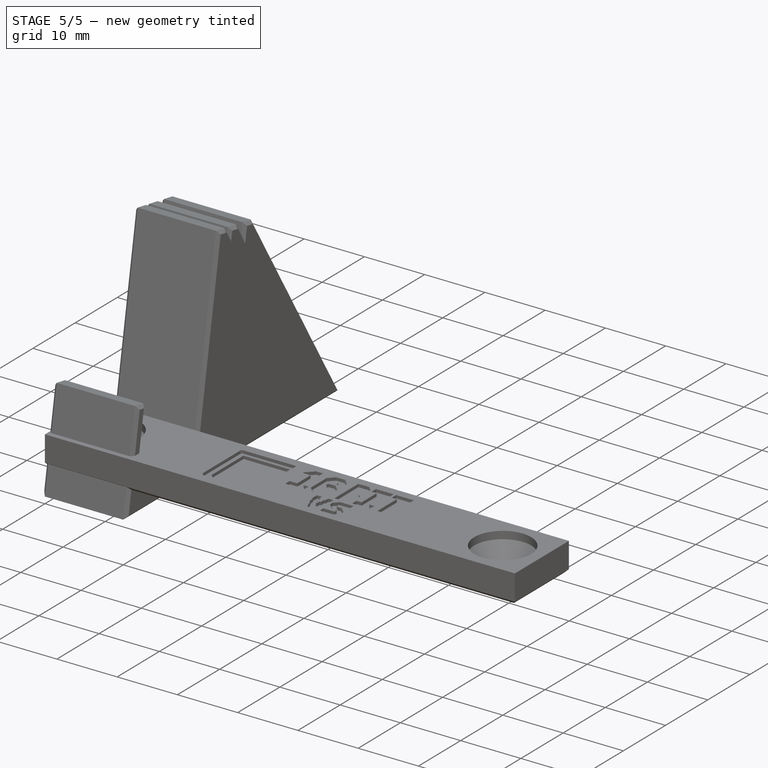
[diagram: stage 5 of 5 — iso view after this stage's code; geometry added in this stage tinted green]
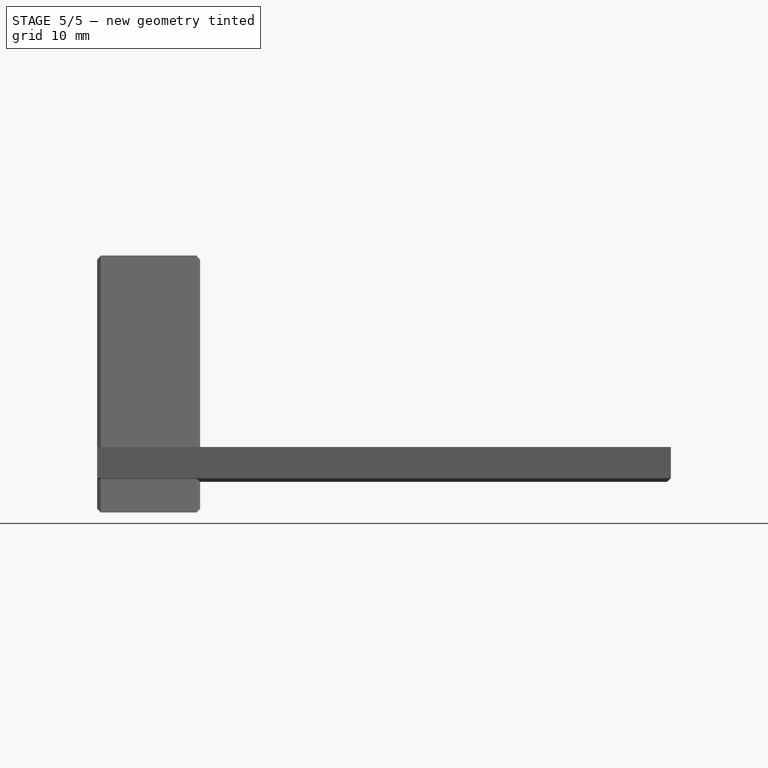
[diagram: stage 5 of 5 — front view after this stage's code; geometry added in this stage tinted green]
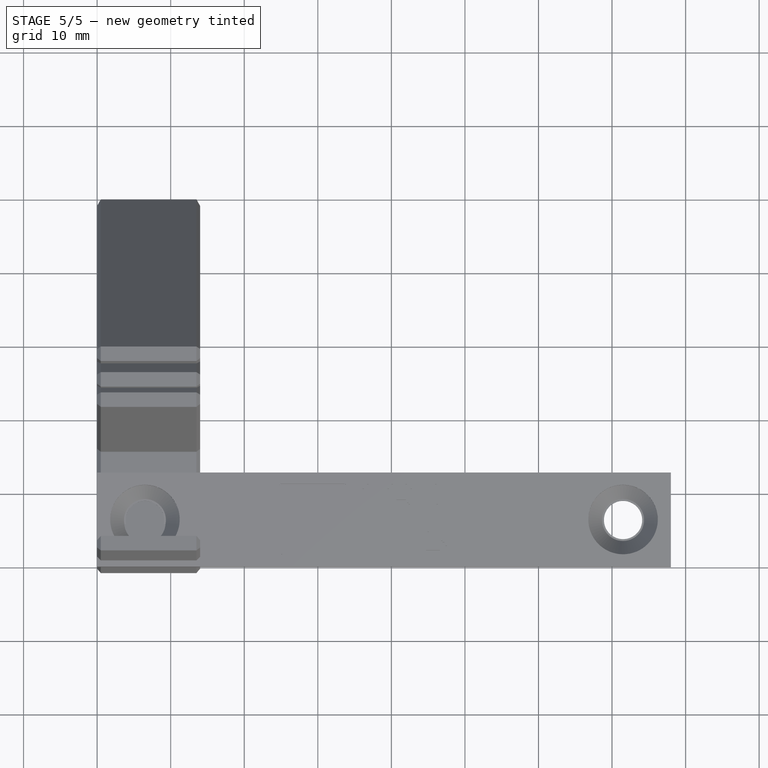
[diagram: stage 5 of 5 — top view after this stage's code; geometry added in this stage tinted green]
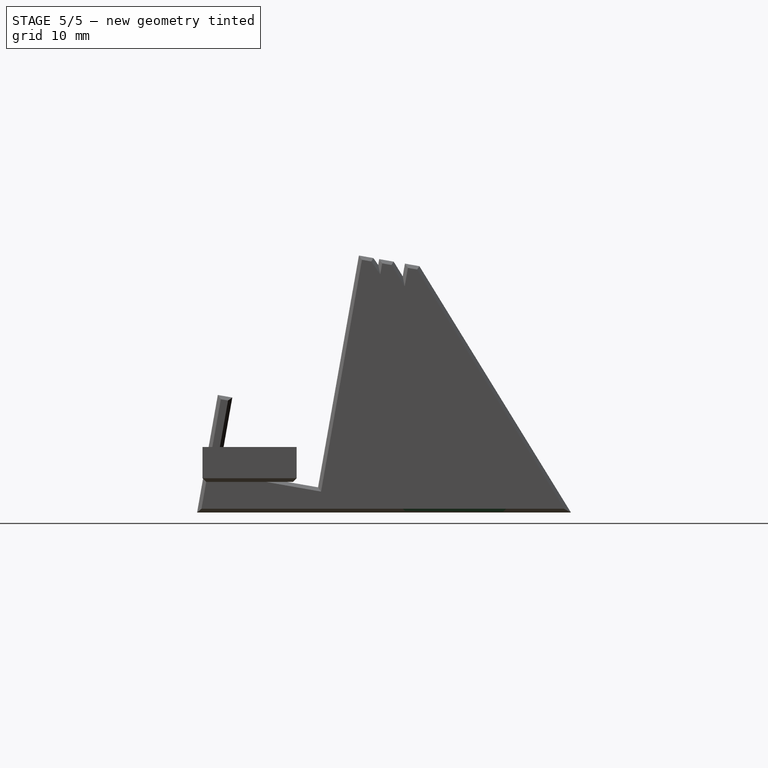
[diagram: stage 5 of 5 — right view after this stage's code; geometry added in this stage tinted green]
FEATURE [Sketcher::SketchObject] Sketch004
  ArcFitTolerance = 0
  AttachmentSupport = -> [Pad001]
  ExternalGeometry = -> [Pad001]
  ExternalTypes = [0]
  FullyConstrained = true
  MakeInternals = false
  MapMode = 5
  Placement = pos=(14,6.9e-15,7.3e-15) rot=(0.540716,0.6444,0.540716;1.99673rad)
  sketch-geometry (8):
    g0: LineSegment StartX=24.3392 StartY=12.6259 StartZ=0 EndX=33.3995 EndY=14.2234 EndZ=0
    g1: LineSegment StartX=33.3995 StartY=14.2234 StartZ=0 EndX=34.0072 EndY=10.7766 EndZ=0
    g2: LineSegment StartX=34.0072 StartY=10.7766 StartZ=0 EndX=24.947 EndY=9.17903 EndZ=0
    g3: LineSegment StartX=24.947 StartY=9.17903 StartZ=0 EndX=24.3392 EndY=12.6259 EndZ=0
    g4: LineSegment StartX=23.6402 StartY=5.64847 StartZ=0 EndX=36.4427 EndY=7.9059 EndZ=0
    g5: LineSegment StartX=36.4427 StartY=7.9059 StartZ=0 EndX=37.311 EndY=2.98186 EndZ=0
    g6: LineSegment StartX=37.311 StartY=2.98186 StartZ=0 EndX=24.5085 EndY=0.724433 EndZ=0
    g7: LineSegment StartX=24.5085 StartY=0.724433 StartZ=0 EndX=23.6402 EndY=5.64847 EndZ=0
  constraints (16):
    c: Coincident(g0,g-3)
    c: Coincident(g0,g-6)
    c: Coincident(g1,g0)
    c: Coincident(g1,g-6)
    c: Coincident(g2,g1)
    c: Coincident(g2,g-3)
    c: Coincident(g3,g2)
    c: Coincident(g3,g0)
    c: Coincident(g4,g-4)
    c: Coincident(g4,g-5)
    c: Coincident(g5,g4)
    c: Coincident(g5,g-5)
    c: Coincident(g6,g5)
    c: Coincident(g6,g-4)
    c: Coincident(g7,g6)
    c: Coincident(g7,g4)
FEATURE [PartDesign::Pad] Pad002
  BaseFeature = -> Pad001
  Direction = (1,0,2e-16)
  Length = 14
  Length2 = 10
  Placement = pos=(0,0,0) rot=(-1,0,0;0.174533rad)
  Profile = -> Sketch004
  ReferenceAxis = -> Sketch004 [N_Axis]
  Refine = true
  Reversed = true
  SideType = 0
  Suppressed = false
  Type = 0
  Type2 = 0
FEATURE [Sketcher::SketchObject] Sketch005
  ArcFitTolerance = 0
  AttachmentSupport = -> [Pocket002]
  ExternalGeometry = -> [Pocket002]
  ExternalTypes = [0]
  FullyConstrained = true
  MakeInternals = false
  MapMode = 5
  Placement = pos=(-5.8e-15,0,0) rot=(0.540716,-0.6444,-0.540716;1.99673rad)
  sketch-geometry (4):
    g0: LineSegment StartX=-33.3995 StartY=14.2234 StartZ=0 EndX=-24.3392 EndY=12.6259 EndZ=0
    g1: LineSegment StartX=-24.3392 StartY=12.6259 StartZ=0 EndX=-24.947 EndY=9.17903 EndZ=0
    g2: LineSegment StartX=-24.947 StartY=9.17903 StartZ=0 EndX=-34.0072 EndY=10.7766 EndZ=0
    g3: LineSegment StartX=-34.0072 StartY=10.7766 StartZ=0 EndX=-33.3995 EndY=14.2234 EndZ=0
  constraints (8):
    c: Coincident(g0,g-3)
    c: Coincident(g0,g-4)
    c: Coincident(g1,g0)
    c: Coincident(g1,g-4)
    c: Coincident(g2,g1)
    c: Coincident(g2,g-3)
    c: Coincident(g3,g2)
    c: Coincident(g3,g0)
FEATURE [Sketcher::SketchObject] Sketch008  label="DS Icon001"
  ArcFitTolerance = 0
  ExternalTypes = [0]
  FullyConstrained = false
  MakeInternals = false
  Placement = pos=(1.29,33.73,-6.54) rot=(0,1,0;3.14159rad)
  sketch-geometry (13):
    g0: BSplineCurve PolesCount=2 KnotsCount=2 Degree=1 IsPeriodic=0
    g1: BSplineCurve PolesCount=4 KnotsCount=2 Degree=3 IsPeriodic=0
    g2: BSplineCurve PolesCount=2 KnotsCount=2 Degree=1 IsPeriodic=0
    g3: BSplineCurve PolesCount=4 KnotsCount=2 Degree=3 IsPeriodic=0
    g4: BSplineCurve PolesCount=2 KnotsCount=2 Degree=1 IsPeriodic=0
    g5: BSplineCurve PolesCount=4 KnotsCount=2 Degree=3 IsPeriodic=0
    g6: BSplineCurve PolesCount=2 KnotsCount=2 Degree=1 IsPeriodic=0
    g7: BSplineCurve PolesCount=4 KnotsCount=2 Degree=3 IsPeriodic=0
    g8: BSplineCurve PolesCount=2 KnotsCount=2 Degree=1 IsPeriodic=0
    g9: BSplineCurve PolesCount=2 KnotsCount=2 Degree=1 IsPeriodic=0
    g10: BSplineCurve PolesCount=2 KnotsCount=2 Degree=1 IsPeriodic=0
    g11: BSplineCurve PolesCount=2 KnotsCount=2 Degree=1 IsPeriodic=0
    g12: BSplineCurve PolesCount=2 KnotsCount=2 Degree=1 IsPeriodic=0
  constraints (13):
    c: Coincident(g0,g1)
    c: Coincident(g1,g2)
    c: Coincident(g2,g3)
    c: Coincident(g3,g4)
    c: Coincident(g4,g5)
    c: Coincident(g5,g6)
    c: Coincident(g6,g7)
    c: Coincident(g7,g0)
    c: Coincident(g8,g9)
    c: Coincident(g9,g10)
    c: Coincident(g10,g11)
    c: Coincident(g11,g12)
    c: Coincident(g12,g8)
FEATURE [Sketcher::SketchObject] Sketch011  label="DS Icon"
  ArcFitTolerance = 0
  ExternalTypes = [0]
  FullyConstrained = false
  MakeInternals = false
  Placement = pos=(23.61,12.4,7.75) rot=(0,0,1;3.14159rad)
  sketch-geometry (13):
    g0: BSplineCurve PolesCount=2 KnotsCount=2 Degree=1 IsPeriodic=0
    g1: BSplineCurve PolesCount=4 KnotsCount=2 Degree=3 IsPeriodic=0
    g2: BSplineCurve PolesCount=2 KnotsCount=2 Degree=1 IsPeriodic=0
    g3: BSplineCurve PolesCount=4 KnotsCount=2 Degree=3 IsPeriodic=0
    g4: BSplineCurve PolesCount=2 KnotsCount=2 Degree=1 IsPeriodic=0
    g5: BSplineCurve PolesCount=4 KnotsCount=2 Degree=3 IsPeriodic=0
    g6: BSplineCurve PolesCount=2 KnotsCount=2 Degree=1 IsPeriodic=0
    g7: BSplineCurve PolesCount=4 KnotsCount=2 Degree=3 IsPeriodic=0
    g8: BSplineCurve PolesCount=2 KnotsCount=2 Degree=1 IsPeriodic=0
    g9: BSplineCurve PolesCount=2 KnotsCount=2 Degree=1 IsPeriodic=0
    g10: BSplineCurve PolesCount=2 KnotsCount=2 Degree=1 IsPeriodic=0
    g11: BSplineCurve PolesCount=2 KnotsCount=2 Degree=1 IsPeriodic=0
    g12: BSplineCurve PolesCount=2 KnotsCount=2 Degree=1 IsPeriodic=0
  constraints (13):
    c: Coincident(g0,g1)
    c: Coincident(g1,g2)
    c: Coincident(g2,g3)
    c: Coincident(g3,g4)
    c: Coincident(g4,g5)
    c: Coincident(g5,g6)
    c: Coincident(g6,g7)
    c: Coincident(g7,g0)
    c: Coincident(g8,g9)
    c: Coincident(g9,g10)
    c: Coincident(g10,g11)
    c: Coincident(g11,g12)
    c: Coincident(g12,g8)
FEATURE [PartDesign::Pocket] Pocket003
  BaseFeature = -> Pad002
  Direction = (-1e-16,0,1)
  Length = 0
  Length2 = 5
  Offset = 0.5
  Placement = pos=(0,0,0) rot=(-1,0,0;0.174533rad)
  Profile = -> Sketch008
  ReferenceAxis = -> Sketch008 [N_Axis]
  SideType = 0
  Suppressed = false
  Type = 3
  Type2 = 0
  UpToFace = -> Pad002 [Face66]
FEATURE [PartDesign::Pocket] Pocket004
  BaseFeature = -> Pocket003
  Direction = (0,1e-16,1)
  Length = 1
  Length2 = 5
  Placement = pos=(0,0,0) rot=(-1,0,0;0.174533rad)
  Profile = -> Pocket003 [Face80]
  SideType = 0
  Suppressed = false
  Type = 0
  Type2 = 0
FEATURE [Sketcher::SketchObject] Sketch018
  ArcFitTolerance = 0
  AttachmentSupport = -> [Pad006]
  ExternalGeometry = -> [Pad006]
  ExternalTypes = [0]
  FullyConstrained = true
  MakeInternals = false
  MapMode = 5
  Placement = pos=(14,6.5e-15,7.3e-15) rot=(0.540716,0.6444,0.540716;1.99673rad)
  sketch-geometry (8):
    g0: LineSegment StartX=22.524 StartY=5.94537 StartZ=0 EndX=35.3265 EndY=8.2028 EndZ=0
    g1: LineSegment StartX=36.1948 StartY=3.27876 StartZ=0 EndX=35.3265 EndY=8.2028 EndZ=0
    g2: LineSegment StartX=23.3923 StartY=1.02134 StartZ=0 EndX=36.1948 EndY=3.27876 EndZ=0
    g3: LineSegment StartX=23.3923 StartY=1.02134 StartZ=0 EndX=22.524 EndY=5.94537 EndZ=0
    g4: LineSegment StartX=23.8308 StartY=9.47593 StartZ=0 EndX=32.891 EndY=11.0735 EndZ=0
    g5: LineSegment StartX=32.891 StartY=11.0735 StartZ=0 EndX=32.2833 EndY=14.5203 EndZ=0
    g6: LineSegment StartX=32.2833 StartY=14.5203 StartZ=0 EndX=23.223 EndY=12.9228 EndZ=0
    g7: LineSegment StartX=23.223 StartY=12.9228 StartZ=0 EndX=23.8308 EndY=9.47593 EndZ=0
  constraints (16):
    c: Coincident(g0,g-6)
    c: Coincident(g0,g-5)
    c: Coincident(g1,g0)
    c: Coincident(g2,g-6)
    c: Coincident(g2,g1)
    c: Coincident(g3,g2)
    c: Coincident(g3,g0)
    c: Coincident(g1,g-5)
    c: Coincident(g4,g-3)
    c: Coincident(g4,g-4)
    c: Coincident(g5,g4)
    c: Coincident(g5,g-4)
    c: Coincident(g6,g5)
    c: Coincident(g6,g-3)
    c: Coincident(g7,g6)
    c: Coincident(g7,g4)
FEATURE [PartDesign::Pad] Pad007
  BaseFeature = -> Pad006
  Direction = (1,0,2e-16)
  Length = 14
  Length2 = 10
  Placement = pos=(0,0,0) rot=(-1,0,0;0.174533rad)
  Profile = -> Sketch018
  ReferenceAxis = -> Sketch018 [N_Axis]
  Refine = true
  Reversed = true
  SideType = 0
  Suppressed = false
  Type = 0
  Type2 = 0
FEATURE [Sketcher::SketchObject] Sketch019
  ArcFitTolerance = 0
  AttachmentSupport = -> [Pocket013]
  ExternalGeometry = -> [Pocket013]
  ExternalTypes = [0]
  FullyConstrained = true
  MakeInternals = false
  MapMode = 5
  Placement = pos=(-4.4e-15,0,0) rot=(0.540716,-0.6444,-0.540716;1.99673rad)
  sketch-geometry (4):
    g0: LineSegment StartX=-32.2833 StartY=14.5203 StartZ=0 EndX=-23.223 EndY=12.9228 EndZ=0
    g1: LineSegment StartX=-23.223 StartY=12.9228 StartZ=0 EndX=-23.8308 EndY=9.47593 EndZ=0
    g2: LineSegment StartX=-23.8308 StartY=9.47593 StartZ=0 EndX=-32.891 EndY=11.0735 EndZ=0
    g3: LineSegment StartX=-32.891 StartY=11.0735 StartZ=0 EndX=-32.2833 EndY=14.5203 EndZ=0
  constraints (8):
    c: Coincident(g0,g-3)
    c: Coincident(g0,g-4)
    c: Coincident(g1,g0)
    c: Coincident(g1,g-4)
    c: Coincident(g2,g1)
    c: Coincident(g2,g-3)
    c: Coincident(g3,g2)
    c: Coincident(g3,g0)
FEATURE [Sketcher::SketchObject] Sketch021  label="DS Icon004"
  ArcFitTolerance = 0
  ExternalTypes = [0]
  FullyConstrained = false
  MakeInternals = false
  Placement = pos=(1.29,33.6,-6.54) rot=(0,1,0;3.14159rad)
  sketch-geometry (13):
    g0: BSplineCurve PolesCount=2 KnotsCount=2 Degree=1 IsPeriodic=0
    g1: BSplineCurve PolesCount=4 KnotsCount=2 Degree=3 IsPeriodic=0
    g2: BSplineCurve PolesCount=2 KnotsCount=2 Degree=1 IsPeriodic=0
    g3: BSplineCurve PolesCount=4 KnotsCount=2 Degree=3 IsPeriodic=0
    g4: BSplineCurve PolesCount=2 KnotsCount=2 Degree=1 IsPeriodic=0
    g5: BSplineCurve PolesCount=4 KnotsCount=2 Degree=3 IsPeriodic=0
    g6: BSplineCurve PolesCount=2 KnotsCount=2 Degree=1 IsPeriodic=0
    g7: BSplineCurve PolesCount=4 KnotsCount=2 Degree=3 IsPeriodic=0
    g8: BSplineCurve PolesCount=2 KnotsCount=2 Degree=1 IsPeriodic=0
    g9: BSplineCurve PolesCount=2 KnotsCount=2 Degree=1 IsPeriodic=0
    g10: BSplineCurve PolesCount=2 KnotsCount=2 Degree=1 IsPeriodic=0
    g11: BSplineCurve PolesCount=2 KnotsCount=2 Degree=1 IsPeriodic=0
    g12: BSplineCurve PolesCount=2 KnotsCount=2 Degree=1 IsPeriodic=0
  constraints (13):
    c: Coincident(g0,g1)
    c: Coincident(g1,g2)
    c: Coincident(g2,g3)
    c: Coincident(g3,g4)
    c: Coincident(g4,g5)
    c: Coincident(g5,g6)
    c: Coincident(g6,g7)
    c: Coincident(g7,g0)
    c: Coincident(g8,g9)
    c: Coincident(g9,g10)
    c: Coincident(g10,g11)
    c: Coincident(g11,g12)
    c: Coincident(g12,g8)
FEATURE [PartDesign::Pocket] Pocket014
  BaseFeature = -> Pad007
  Direction = (-1e-16,0,1)
  Length = 0
  Length2 = 5
  Offset = 0.5
  Placement = pos=(0,0,0) rot=(-1,0,0;0.174533rad)
  Profile = -> Sketch021
  ReferenceAxis = -> Sketch021 [N_Axis]
  SideType = 0
  Suppressed = false
  Type = 3
  Type2 = 0
  UpToFace = -> Pad007 [Face102]
FEATURE [Sketcher::SketchObject] Sketch022  label="DS Icon005"
  ArcFitTolerance = 0
  ExternalTypes = [0]
  FullyConstrained = false
  MakeInternals = false
  Placement = pos=(1.29,10.35,-6.54) rot=(0,1,0;3.14159rad)
  sketch-geometry (13):
    g0: BSplineCurve PolesCount=2 KnotsCount=2 Degree=1 IsPeriodic=0
    g1: BSplineCurve PolesCount=4 KnotsCount=2 Degree=3 IsPeriodic=0
    g2: BSplineCurve PolesCount=2 KnotsCount=2 Degree=1 IsPeriodic=0
    g3: BSplineCurve PolesCount=4 KnotsCount=2 Degree=3 IsPeriodic=0
    g4: BSplineCurve PolesCount=2 KnotsCount=2 Degree=1 IsPeriodic=0
    g5: BSplineCurve PolesCount=4 KnotsCount=2 Degree=3 IsPeriodic=0
    g6: BSplineCurve PolesCount=2 KnotsCount=2 Degree=1 IsPeriodic=0
    g7: BSplineCurve PolesCount=4 KnotsCount=2 Degree=3 IsPeriodic=0
    g8: BSplineCurve PolesCount=2 KnotsCount=2 Degree=1 IsPeriodic=0
    g9: BSplineCurve PolesCount=2 KnotsCount=2 Degree=1 IsPeriodic=0
    g10: BSplineCurve PolesCount=2 KnotsCount=2 Degree=1 IsPeriodic=0
    g11: BSplineCurve PolesCount=2 KnotsCount=2 Degree=1 IsPeriodic=0
    g12: BSplineCurve PolesCount=2 KnotsCount=2 Degree=1 IsPeriodic=0
  constraints (13):
    c: Coincident(g0,g1)
    c: Coincident(g1,g2)
    c: Coincident(g2,g3)
    c: Coincident(g3,g4)
    c: Coincident(g4,g5)
    c: Coincident(g5,g6)
    c: Coincident(g6,g7)
    c: Coincident(g7,g0)
    c: Coincident(g8,g9)
    c: Coincident(g9,g10)
    c: Coincident(g10,g11)
    c: Coincident(g11,g12)
    c: Coincident(g12,g8)
FEATURE [PartDesign::Pocket] Pocket022
  BaseFeature = -> Pocket014
  Direction = (0,-2.46e-14,1)
  Length = 1
  Length2 = 5
  Placement = pos=(0,0,0) rot=(-1,0,0;0.174533rad)
  Profile = -> Pocket014 [Face116]
  SideType = 0
  Suppressed = false
  Type = 0
  Type2 = 0
FEATURE [PartDesign::Chamfer] Chamfer005
  Angle = 45
  Base = -> Pocket022 [Face5,Face4]
  BaseFeature = -> Pocket022
  ChamferType = 0
  FlipDirection = false
  Placement = pos=(0,0,0) rot=(-1,0,0;0.174533rad)
  Refine = true
  Size = 0.5
  Size2 = 1
  SupportTransform = false
  Suppressed = false
  UseAllEdges = false
FEATURE [Sketcher::SketchObject] Sketch026
  ArcFitTolerance = 0
  ExternalTypes = [0]
  FullyConstrained = false
  MakeInternals = false
  Placement = pos=(35.88,11.4,8.75) rot=(0,0,1;0rad)
  sketch-geometry (400):
    g0: BSplineCurve PolesCount=2 KnotsCount=2 Degree=1 IsPeriodic=0
    g1: BSplineCurve PolesCount=2 KnotsCount=2 Degree=1 IsPeriodic=0
    g2: BSplineCurve PolesCount=2 KnotsCount=2 Degree=1 IsPeriodic=0
    g3: BSplineCurve PolesCount=2 KnotsCount=2 Degree=1 IsPeriodic=0
    g4: BSplineCurve PolesCount=2 KnotsCount=2 Degree=1 IsPeriodic=0
    g5: BSplineCurve PolesCount=2 KnotsCount=2 Degree=1 IsPeriodic=0
    g6: BSplineCurve PolesCount=2 KnotsCount=2 Degree=1 IsPeriodic=0
    g7: BSplineCurve PolesCount=2 KnotsCount=2 Degree=1 IsPeriodic=0
    g8: BSplineCurve PolesCount=2 KnotsCount=2 Degree=1 IsPeriodic=0
    g9: BSplineCurve PolesCount=2 KnotsCount=2 Degree=1 IsPeriodic=0
    g10: BSplineCurve PolesCount=2 KnotsCount=2 Degree=1 IsPeriodic=0
    g11: BSplineCurve PolesCount=2 KnotsCount=2 Degree=1 IsPeriodic=0
    g12: BSplineCurve PolesCount=2 KnotsCount=2 Degree=1 IsPeriodic=0
    g13: BSplineCurve PolesCount=2 KnotsCount=2 Degree=1 IsPeriodic=0
    g14: BSplineCurve PolesCount=2 KnotsCount=2 Degree=1 IsPeriodic=0
    g15: BSplineCurve PolesCount=2 KnotsCount=2 Degree=1 IsPeriodic=0
    g16: BSplineCurve PolesCount=2 KnotsCount=2 Degree=1 IsPeriodic=0
    g17: BSplineCurve PolesCount=2 KnotsCount=2 Degree=1 IsPeriodic=0
    g18: BSplineCurve PolesCount=2 KnotsCount=2 Degree=1 IsPeriodic=0
    g19: BSplineCurve PolesCount=2 KnotsCount=2 Degree=1 IsPeriodic=0
    g20: BSplineCurve PolesCount=2 KnotsCount=2 Degree=1 IsPeriodic=0
    g21: BSplineCurve PolesCount=2 KnotsCount=2 Degree=1 IsPeriodic=0
    g22: BSplineCurve PolesCount=2 KnotsCount=2 Degree=1 IsPeriodic=0
    g23: BSplineCurve PolesCount=2 KnotsCount=2 Degree=1 IsPeriodic=0
    g24: BSplineCurve PolesCount=2 KnotsCount=2 Degree=1 IsPeriodic=0
    g25: BSplineCurve PolesCount=2 KnotsCount=2 Degree=1 IsPeriodic=0
    g26: BSplineCurve PolesCount=2 KnotsCount=2 Degree=1 IsPeriodic=0
    g27: BSplineCurve PolesCount=2 KnotsCount=2 Degree=1 IsPeriodic=0
    g28: BSplineCurve PolesCount=2 KnotsCount=2 Degree=1 IsPeriodic=0
    g29: BSplineCurve PolesCount=2 KnotsCount=2 Degree=1 IsPeriodic=0
    g30: BSplineCurve PolesCount=2 KnotsCount=2 Degree=1 IsPeriodic=0
    g31: BSplineCurve PolesCount=2 KnotsCount=2 Degree=1 IsPeriodic=0
    g32: BSplineCurve PolesCount=2 KnotsCount=2 Degree=1 IsPeriodic=0
    g33: BSplineCurve PolesCount=2 KnotsCount=2 Degree=1 IsPeriodic=0
    g34: BSplineCurve PolesCount=2 KnotsCount=2 Degree=1 IsPeriodic=0
    g35: BSplineCurve PolesCount=2 KnotsCount=2 Degree=1 IsPeriodic=0
    g36: BSplineCurve PolesCount=2 KnotsCount=2 Degree=1 IsPeriodic=0
    g37: BSplineCurve PolesCount=2 KnotsCount=2 Degree=1 IsPeriodic=0
    g38: BSplineCurve PolesCount=2 KnotsCount=2 Degree=1 IsPeriodic=0
    g39: BSplineCurve PolesCount=2 KnotsCount=2 Degree=1 IsPeriodic=0
    g40: BSplineCurve PolesCount=2 KnotsCount=2 Degree=1 IsPeriodic=0
    g41: BSplineCurve PolesCount=2 KnotsCount=2 Degree=1 IsPeriodic=0
    g42: BSplineCurve PolesCount=2 KnotsCount=2 Degree=1 IsPeriodic=0
    g43: BSplineCurve PolesCount=2 KnotsCount=2 Degree=1 IsPeriodic=0
    g44: BSplineCurve PolesCount=2 KnotsCount=2 Degree=1 IsPeriodic=0
    g45: BSplineCurve PolesCount=2 KnotsCount=2 Degree=1 IsPeriodic=0
    g46: BSplineCurve PolesCount=2 KnotsCount=2 Degree=1 IsPeriodic=0
    g47: BSplineCurve PolesCount=2 KnotsCount=2 Degree=1 IsPeriodic=0
    g48: BSplineCurve PolesCount=2 KnotsCount=2 Degree=1 IsPeriodic=0
    g49: BSplineCurve PolesCount=2 KnotsCount=2 Degree=1 IsPeriodic=0
    g50: BSplineCurve PolesCount=2 KnotsCount=2 Degree=1 IsPeriodic=0
    g51: BSplineCurve PolesCount=2 KnotsCount=2 Degree=1 IsPeriodic=0
    g52: BSplineCurve PolesCount=2 KnotsCount=2 Degree=1 IsPeriodic=0
    g53: BSplineCurve PolesCount=2 KnotsCount=2 Degree=1 IsPeriodic=0
    g54: BSplineCurve PolesCount=2 KnotsCount=2 Degree=1 IsPeriodic=0
    g55: BSplineCurve PolesCount=2 KnotsCount=2 Degree=1 IsPeriodic=0
    g56: BSplineCurve PolesCount=2 KnotsCount=2 Degree=1 IsPeriodic=0
    g57: BSplineCurve PolesCount=2 KnotsCount=2 Degree=1 IsPeriodic=0
    g58: BSplineCurve PolesCount=2 KnotsCount=2 Degree=1 IsPeriodic=0
    g59: BSplineCurve PolesCount=2 KnotsCount=2 Degree=1 IsPeriodic=0
    g60: BSplineCurve PolesCount=2 KnotsCount=2 Degree=1 IsPeriodic=0
    g61: BSplineCurve PolesCount=2 KnotsCount=2 Degree=1 IsPeriodic=0
    g62: BSplineCurve PolesCount=2 KnotsCount=2 Degree=1 IsPeriodic=0
    g63: BSplineCurve PolesCount=2 KnotsCount=2 Degree=1 IsPeriodic=0
    g64: BSplineCurve PolesCount=2 KnotsCount=2 Degree=1 IsPeriodic=0
    g65: BSplineCurve PolesCount=2 KnotsCount=2 Degree=1 IsPeriodic=0
    g66: BSplineCurve PolesCount=2 KnotsCount=2 Degree=1 IsPeriodic=0
    g67: BSplineCurve PolesCount=2 KnotsCount=2 Degree=1 IsPeriodic=0
    g68: BSplineCurve PolesCount=2 KnotsCount=2 Degree=1 IsPeriodic=0
    g69: BSplineCurve PolesCount=2 KnotsCount=2 Degree=1 IsPeriodic=0
    g70: BSplineCurve PolesCount=2 KnotsCount=2 Degree=1 IsPeriodic=0
    g71: BSplineCurve PolesCount=2 KnotsCount=2 Degree=1 IsPeriodic=0
    g72: BSplineCurve PolesCount=2 KnotsCount=2 Degree=1 IsPeriodic=0
    g73: BSplineCurve PolesCount=2 KnotsCount=2 Degree=1 IsPeriodic=0
    g74: BSplineCurve PolesCount=2 KnotsCount=2 Degree=1 IsPeriodic=0
    g75: BSplineCurve PolesCount=2 KnotsCount=2 Degree=1 IsPeriodic=0
    g76: BSplineCurve PolesCount=2 KnotsCount=2 Degree=1 IsPeriodic=0
    g77: BSplineCurve PolesCount=2 KnotsCount=2 Degree=1 IsPeriodic=0
    g78: BSplineCurve PolesCount=2 KnotsCount=2 Degree=1 IsPeriodic=0
    g79: BSplineCurve PolesCount=2 KnotsCount=2 Degree=1 IsPeriodic=0
    g80: BSplineCurve PolesCount=2 KnotsCount=2 Degree=1 IsPeriodic=0
    g81: BSplineCurve PolesCount=2 KnotsCount=2 Degree=1 IsPeriodic=0
    g82: BSplineCurve PolesCount=2 KnotsCount=2 Degree=1 IsPeriodic=0
    g83: BSplineCurve PolesCount=2 KnotsCount=2 Degree=1 IsPeriodic=0
    g84: BSplineCurve PolesCount=2 KnotsCount=2 Degree=1 IsPeriodic=0
    g85: BSplineCurve PolesCount=2 KnotsCount=2 Degree=1 IsPeriodic=0
    g86: BSplineCurve PolesCount=2 KnotsCount=2 Degree=1 IsPeriodic=0
    g87: BSplineCurve PolesCount=2 KnotsCount=2 Degree=1 IsPeriodic=0
    g88: BSplineCurve PolesCount=2 KnotsCount=2 Degree=1 IsPeriodic=0
    g89: BSplineCurve PolesCount=2 KnotsCount=2 Degree=1 IsPeriodic=0
    g90: BSplineCurve PolesCount=2 KnotsCount=2 Degree=1 IsPeriodic=0
    g91: BSplineCurve PolesCount=2 KnotsCount=2 Degree=1 IsPeriodic=0
    g92: BSplineCurve PolesCount=2 KnotsCount=2 Degree=1 IsPeriodic=0
    g93: BSplineCurve PolesCount=2 KnotsCount=2 Degree=1 IsPeriodic=0
    g94: BSplineCurve PolesCount=2 KnotsCount=2 Degree=1 IsPeriodic=0
    g95: BSplineCurve PolesCount=2 KnotsCount=2 Degree=1 IsPeriodic=0
    g96: BSplineCurve PolesCount=2 KnotsCount=2 Degree=1 IsPeriodic=0
    g97: BSplineCurve PolesCount=2 KnotsCount=2 Degree=1 IsPeriodic=0
    g98: BSplineCurve PolesCount=2 KnotsCount=2 Degree=1 IsPeriodic=0
    g99: BSplineCurve PolesCount=2 KnotsCount=2 Degree=1 IsPeriodic=0
    g100: BSplineCurve PolesCount=2 KnotsCount=2 Degree=1 IsPeriodic=0
    g101: BSplineCurve PolesCount=2 KnotsCount=2 Degree=1 IsPeriodic=0
    g102: BSplineCurve PolesCount=2 KnotsCount=2 Degree=1 IsPeriodic=0
    g103: BSplineCurve PolesCount=2 KnotsCount=2 Degree=1 IsPeriodic=0
    g104: BSplineCurve PolesCount=2 KnotsCount=2 Degree=1 IsPeriodic=0
    g105: BSplineCurve PolesCount=2 KnotsCount=2 Degree=1 IsPeriodic=0
    g106: BSplineCurve PolesCount=2 KnotsCount=2 Degree=1 IsPeriodic=0
    g107: BSplineCurve PolesCount=2 KnotsCount=2 Degree=1 IsPeriodic=0
    g108: BSplineCurve PolesCount=2 KnotsCount=2 Degree=1 IsPeriodic=0
    g109: BSplineCurve PolesCount=2 KnotsCount=2 Degree=1 IsPeriodic=0
    g110: BSplineCurve PolesCount=2 KnotsCount=2 Degree=1 IsPeriodic=0
    g111: BSplineCurve PolesCount=2 KnotsCount=2 Degree=1 IsPeriodic=0
    g112: BSplineCurve PolesCount=2 KnotsCount=2 Degree=1 IsPeriodic=0
    g113: BSplineCurve PolesCount=2 KnotsCount=2 Degree=1 IsPeriodic=0
    g114: BSplineCurve PolesCount=2 KnotsCount=2 Degree=1 IsPeriodic=0
    g115: BSplineCurve PolesCount=2 KnotsCount=2 Degree=1 IsPeriodic=0
    g116: BSplineCurve PolesCount=2 KnotsCount=2 Degree=1 IsPeriodic=0
    g117: BSplineCurve PolesCount=2 KnotsCount=2 Degree=1 IsPeriodic=0
    g118: BSplineCurve PolesCount=2 KnotsCount=2 Degree=1 IsPeriodic=0
    g119: BSplineCurve PolesCount=2 KnotsCount=2 Degree=1 IsPeriodic=0
    g120: BSplineCurve PolesCount=2 KnotsCount=2 Degree=1 IsPeriodic=0
    g121: BSplineCurve PolesCount=2 KnotsCount=2 Degree=1 IsPeriodic=0
    g122: BSplineCurve PolesCount=2 KnotsCount=2 Degree=1 IsPeriodic=0
    g123: BSplineCurve PolesCount=2 KnotsCount=2 Degree=1 IsPeriodic=0
    g124: BSplineCurve PolesCount=2 KnotsCount=2 Degree=1 IsPeriodic=0
    g125: BSplineCurve PolesCount=2 KnotsCount=2 Degree=1 IsPeriodic=0
    g126: BSplineCurve PolesCount=2 KnotsCount=2 Degree=1 IsPeriodic=0
    g127: BSplineCurve PolesCount=2 KnotsCount=2 Degree=1 IsPeriodic=0
    g128: BSplineCurve PolesCount=2 KnotsCount=2 Degree=1 IsPeriodic=0
    g129: BSplineCurve PolesCount=2 KnotsCount=2 Degree=1 IsPeriodic=0
    g130: BSplineCurve PolesCount=2 KnotsCount=2 Degree=1 IsPeriodic=0
    g131: BSplineCurve PolesCount=2 KnotsCount=2 Degree=1 IsPeriodic=0
    g132: BSplineCurve PolesCount=2 KnotsCount=2 Degree=1 IsPeriodic=0
    g133: BSplineCurve PolesCount=2 KnotsCount=2 Degree=1 IsPeriodic=0
    g134: BSplineCurve PolesCount=2 KnotsCount=2 Degree=1 IsPeriodic=0
    g135: BSplineCurve PolesCount=2 KnotsCount=2 Degree=1 IsPeriodic=0
    g136: BSplineCurve PolesCount=2 KnotsCount=2 Degree=1 IsPeriodic=0
    g137: BSplineCurve PolesCount=2 KnotsCount=2 Degree=1 IsPeriodic=0
    g138: BSplineCurve PolesCount=2 KnotsCount=2 Degree=1 IsPeriodic=0
    g139: BSplineCurve PolesCount=2 KnotsCount=2 Degree=1 IsPeriodic=0
    g140: BSplineCurve PolesCount=2 KnotsCount=2 Degree=1 IsPeriodic=0
    g141: BSplineCurve PolesCount=2 KnotsCount=2 Degree=1 IsPeriodic=0
    g142: BSplineCurve PolesCount=2 KnotsCount=2 Degree=1 IsPeriodic=0
    g143: BSplineCurve PolesCount=2 KnotsCount=2 Degree=1 IsPeriodic=0
    g144: BSplineCurve PolesCount=2 KnotsCount=2 Degree=1 IsPeriodic=0
    g145: BSplineCurve PolesCount=2 KnotsCount=2 Degree=1 IsPeriodic=0
    g146: BSplineCurve PolesCount=2 KnotsCount=2 Degree=1 IsPeriodic=0
    g147: BSplineCurve PolesCount=2 KnotsCount=2 Degree=1 IsPeriodic=0
    g148: BSplineCurve PolesCount=2 KnotsCount=2 Degree=1 IsPeriodic=0
    g149: BSplineCurve PolesCount=2 KnotsCount=2 Degree=1 IsPeriodic=0
    g150: BSplineCurve PolesCount=2 KnotsCount=2 Degree=1 IsPeriodic=0
    g151: BSplineCurve PolesCount=2 KnotsCount=2 Degree=1 IsPeriodic=0
    g152: BSplineCurve PolesCount=2 KnotsCount=2 Degree=1 IsPeriodic=0
    g153: BSplineCurve PolesCount=2 KnotsCount=2 Degree=1 IsPeriodic=0
    g154: BSplineCurve PolesCount=2 KnotsCount=2 Degree=1 IsPeriodic=0
    g155: BSplineCurve PolesCount=2 KnotsCount=2 Degree=1 IsPeriodic=0
    g156: BSplineCurve PolesCount=2 KnotsCount=2 Degree=1 IsPeriodic=0
    g157: BSplineCurve PolesCount=2 KnotsCount=2 Degree=1 IsPeriodic=0
    g158: BSplineCurve PolesCount=2 KnotsCount=2 Degree=1 IsPeriodic=0
    g159: BSplineCurve PolesCount=2 KnotsCount=2 Degree=1 IsPeriodic=0
    g160: BSplineCurve PolesCount=2 KnotsCount=2 Degree=1 IsPeriodic=0
    g161: BSplineCurve PolesCount=2 KnotsCount=2 Degree=1 IsPeriodic=0
    g162: BSplineCurve PolesCount=2 KnotsCount=2 Degree=1 IsPeriodic=0
    g163: BSplineCurve PolesCount=2 KnotsCount=2 Degree=1 IsPeriodic=0
    g164: BSplineCurve PolesCount=2 KnotsCount=2 Degree=1 IsPeriodic=0
    g165: BSplineCurve PolesCount=2 KnotsCount=2 Degree=1 IsPeriodic=0
    g166: BSplineCurve PolesCount=2 KnotsCount=2 Degree=1 IsPeriodic=0
    g167: BSplineCurve PolesCount=2 KnotsCount=2 Degree=1 IsPeriodic=0
    g168: BSplineCurve PolesCount=2 KnotsCount=2 Degree=1 IsPeriodic=0
    g169: BSplineCurve PolesCount=2 KnotsCount=2 Degree=1 IsPeriodic=0
    g170: BSplineCurve PolesCount=2 KnotsCount=2 Degree=1 IsPeriodic=0
    g171: BSplineCurve PolesCount=2 KnotsCount=2 Degree=1 IsPeriodic=0
    g172: BSplineCurve PolesCount=2 KnotsCount=2 Degree=1 IsPeriodic=0
    g173: BSplineCurve PolesCount=2 KnotsCount=2 Degree=1 IsPeriodic=0
    g174: BSplineCurve PolesCount=2 KnotsCount=2 Degree=1 IsPeriodic=0
    g175: BSplineCurve PolesCount=2 KnotsCount=2 Degree=1 IsPeriodic=0
    g176: BSplineCurve PolesCount=2 KnotsCount=2 Degree=1 IsPeriodic=0
    g177: BSplineCurve PolesCount=2 KnotsCount=2 Degree=1 IsPeriodic=0
    g178: BSplineCurve PolesCount=2 KnotsCount=2 Degree=1 IsPeriodic=0
    g179: BSplineCurve PolesCount=2 KnotsCount=2 Degree=1 IsPeriodic=0
    g180: BSplineCurve PolesCount=2 KnotsCount=2 Degree=1 IsPeriodic=0
    g181: BSplineCurve PolesCount=2 KnotsCount=2 Degree=1 IsPeriodic=0
    g182: BSplineCurve PolesCount=2 KnotsCount=2 Degree=1 IsPeriodic=0
    g183: BSplineCurve PolesCount=2 KnotsCount=2 Degree=1 IsPeriodic=0
    g184: BSplineCurve PolesCount=2 KnotsCount=2 Degree=1 IsPeriodic=0
    g185: BSplineCurve PolesCount=2 KnotsCount=2 Degree=1 IsPeriodic=0
    g186: BSplineCurve PolesCount=2 KnotsCount=2 Degree=1 IsPeriodic=0
    g187: BSplineCurve PolesCount=2 KnotsCount=2 Degree=1 IsPeriodic=0
    g188: BSplineCurve PolesCount=2 KnotsCount=2 Degree=1 IsPeriodic=0
    g189: BSplineCurve PolesCount=2 KnotsCount=2 Degree=1 IsPeriodic=0
    g190: BSplineCurve PolesCount=2 KnotsCount=2 Degree=1 IsPeriodic=0
    g191: BSplineCurve PolesCount=2 KnotsCount=2 Degree=1 IsPeriodic=0
    g192: BSplineCurve PolesCount=2 KnotsCount=2 Degree=1 IsPeriodic=0
    g193: BSplineCurve PolesCount=2 KnotsCount=2 Degree=1 IsPeriodic=0
    g194: BSplineCurve PolesCount=2 KnotsCount=2 Degree=1 IsPeriodic=0
    g195: BSplineCurve PolesCount=2 KnotsCount=2 Degree=1 IsPeriodic=0
    g196: BSplineCurve PolesCount=2 KnotsCount=2 Degree=1 IsPeriodic=0
    g197: BSplineCurve PolesCount=2 KnotsCount=2 Degree=1 IsPeriodic=0
    g198: BSplineCurve PolesCount=2 KnotsCount=2 Degree=1 IsPeriodic=0
    g199: BSplineCurve PolesCount=2 KnotsCount=2 Degree=1 IsPeriodic=0
    g200: BSplineCurve PolesCount=2 KnotsCount=2 Degree=1 IsPeriodic=0
    g201: BSplineCurve PolesCount=2 KnotsCount=2 Degree=1 IsPeriodic=0
    g202: BSplineCurve PolesCount=2 KnotsCount=2 Degree=1 IsPeriodic=0
    g203: BSplineCurve PolesCount=2 KnotsCount=2 Degree=1 IsPeriodic=0
    g204: BSplineCurve PolesCount=2 KnotsCount=2 Degree=1 IsPeriodic=0
    g205: BSplineCurve PolesCount=2 KnotsCount=2 Degree=1 IsPeriodic=0
    g206: BSplineCurve PolesCount=2 KnotsCount=2 Degree=1 IsPeriodic=0
    g207: BSplineCurve PolesCount=2 KnotsCount=2 Degree=1 IsPeriodic=0
    g208: BSplineCurve PolesCount=2 KnotsCount=2 Degree=1 IsPeriodic=0
    g209: BSplineCurve PolesCount=2 KnotsCount=2 Degree=1 IsPeriodic=0
    g210: BSplineCurve PolesCount=2 KnotsCount=2 Degree=1 IsPeriodic=0
    g211: BSplineCurve PolesCount=2 KnotsCount=2 Degree=1 IsPeriodic=0
    g212: BSplineCurve PolesCount=2 KnotsCount=2 Degree=1 IsPeriodic=0
    g213: BSplineCurve PolesCount=2 KnotsCount=2 Degree=1 IsPeriodic=0
    g214: BSplineCurve PolesCount=2 KnotsCount=2 Degree=1 IsPeriodic=0
    g215: BSplineCurve PolesCount=2 KnotsCount=2 Degree=1 IsPeriodic=0
    g216: BSplineCurve PolesCount=2 KnotsCount=2 Degree=1 IsPeriodic=0
    g217: BSplineCurve PolesCount=2 KnotsCount=2 Degree=1 IsPeriodic=0
    g218: BSplineCurve PolesCount=2 KnotsCount=2 Degree=1 IsPeriodic=0
    g219: BSplineCurve PolesCount=2 KnotsCount=2 Degree=1 IsPeriodic=0
    g220: BSplineCurve PolesCount=2 KnotsCount=2 Degree=1 IsPeriodic=0
    g221: BSplineCurve PolesCount=2 KnotsCount=2 Degree=1 IsPeriodic=0
    g222: BSplineCurve PolesCount=2 KnotsCount=2 Degree=1 IsPeriodic=0
    g223: BSplineCurve PolesCount=2 KnotsCount=2 Degree=1 IsPeriodic=0
    g224: BSplineCurve PolesCount=2 KnotsCount=2 Degree=1 IsPeriodic=0
    g225: BSplineCurve PolesCount=2 KnotsCount=2 Degree=1 IsPeriodic=0
    g226: BSplineCurve PolesCount=2 KnotsCount=2 Degree=1 IsPeriodic=0
    g227: BSplineCurve PolesCount=2 KnotsCount=2 Degree=1 IsPeriodic=0
    g228: BSplineCurve PolesCount=2 KnotsCount=2 Degree=1 IsPeriodic=0
    g229: BSplineCurve PolesCount=2 KnotsCount=2 Degree=1 IsPeriodic=0
    g230: BSplineCurve PolesCount=2 KnotsCount=2 Degree=1 IsPeriodic=0
    g231: BSplineCurve PolesCount=2 KnotsCount=2 Degree=1 IsPeriodic=0
    g232: BSplineCurve PolesCount=2 KnotsCount=2 Degree=1 IsPeriodic=0
    g233: BSplineCurve PolesCount=2 KnotsCount=2 Degree=1 IsPeriodic=0
    g234: BSplineCurve PolesCount=2 KnotsCount=2 Degree=1 IsPeriodic=0
    g235: BSplineCurve PolesCount=2 KnotsCount=2 Degree=1 IsPeriodic=0
    g236: BSplineCurve PolesCount=2 KnotsCount=2 Degree=1 IsPeriodic=0
    g237: BSplineCurve PolesCount=2 KnotsCount=2 Degree=1 IsPeriodic=0
    g238: BSplineCurve PolesCount=2 KnotsCount=2 Degree=1 IsPeriodic=0
    g239: BSplineCurve PolesCount=2 KnotsCount=2 Degree=1 IsPeriodic=0
    g240: BSplineCurve PolesCount=2 KnotsCount=2 Degree=1 IsPeriodic=0
    g241: BSplineCurve PolesCount=2 KnotsCount=2 Degree=1 IsPeriodic=0
    g242: BSplineCurve PolesCount=2 KnotsCount=2 Degree=1 IsPeriodic=0
    g243: BSplineCurve PolesCount=2 KnotsCount=2 Degree=1 IsPeriodic=0
    g244: BSplineCurve PolesCount=2 KnotsCount=2 Degree=1 IsPeriodic=0
    g245: BSplineCurve PolesCount=2 KnotsCount=2 Degree=1 IsPeriodic=0
    g246: BSplineCurve PolesCount=2 KnotsCount=2 Degree=1 IsPeriodic=0
    g247: BSplineCurve PolesCount=2 KnotsCount=2 Degree=1 IsPeriodic=0
    g248: BSplineCurve PolesCount=2 KnotsCount=2 Degree=1 IsPeriodic=0
    g249: BSplineCurve PolesCount=2 KnotsCount=2 Degree=1 IsPeriodic=0
    g250: BSplineCurve PolesCount=2 KnotsCount=2 Degree=1 IsPeriodic=0
    g251: BSplineCurve PolesCount=2 KnotsCount=2 Degree=1 IsPeriodic=0
    g252: BSplineCurve PolesCount=2 KnotsCount=2 Degree=1 IsPeriodic=0
    g253: BSplineCurve PolesCount=2 KnotsCount=2 Degree=1 IsPeriodic=0
    g254: BSplineCurve PolesCount=2 KnotsCount=2 Degree=1 IsPeriodic=0
    g255: BSplineCurve PolesCount=2 KnotsCount=2 Degree=1 IsPeriodic=0
    g256: BSplineCurve PolesCount=2 KnotsCount=2 Degree=1 IsPeriodic=0
    g257: BSplineCurve PolesCount=2 KnotsCount=2 Degree=1 IsPeriodic=0
    g258: BSplineCurve PolesCount=2 KnotsCount=2 Degree=1 IsPeriodic=0
    g259: BSplineCurve PolesCount=2 KnotsCount=2 Degree=1 IsPeriodic=0
    g260: BSplineCurve PolesCount=2 KnotsCount=2 Degree=1 IsPeriodic=0
    g261: BSplineCurve PolesCount=2 KnotsCount=2 Degree=1 IsPeriodic=0
    g262: BSplineCurve PolesCount=2 KnotsCount=2 Degree=1 IsPeriodic=0
    g263: BSplineCurve PolesCount=2 KnotsCount=2 Degree=1 IsPeriodic=0
    g264: BSplineCurve PolesCount=2 KnotsCount=2 Degree=1 IsPeriodic=0
    g265: BSplineCurve PolesCount=2 KnotsCount=2 Degree=1 IsPeriodic=0
    g266: BSplineCurve PolesCount=2 KnotsCount=2 Degree=1 IsPeriodic=0
    g267: BSplineCurve PolesCount=2 KnotsCount=2 Degree=1 IsPeriodic=0
    g268: BSplineCurve PolesCount=2 KnotsCount=2 Degree=1 IsPeriodic=0
    g269: BSplineCurve PolesCount=2 KnotsCount=2 Degree=1 IsPeriodic=0
    g270: BSplineCurve PolesCount=2 KnotsCount=2 Degree=1 IsPeriodic=0
    g271: BSplineCurve PolesCount=2 KnotsCount=2 Degree=1 IsPeriodic=0
    g272: BSplineCurve PolesCount=2 KnotsCount=2 Degree=1 IsPeriodic=0
    g273: BSplineCurve PolesCount=2 KnotsCount=2 Degree=1 IsPeriodic=0
    g274: BSplineCurve PolesCount=2 KnotsCount=2 Degree=1 IsPeriodic=0
    g275: BSplineCurve PolesCount=2 KnotsCount=2 Degree=1 IsPeriodic=0
    g276: BSplineCurve PolesCount=2 KnotsCount=2 Degree=1 IsPeriodic=0
    g277: BSplineCurve PolesCount=2 KnotsCount=2 Degree=1 IsPeriodic=0
    g278: BSplineCurve PolesCount=2 KnotsCount=2 Degree=1 IsPeriodic=0
    g279: BSplineCurve PolesCount=2 KnotsCount=2 Degree=1 IsPeriodic=0
    g280: BSplineCurve PolesCount=2 KnotsCount=2 Degree=1 IsPeriodic=0
    g281: BSplineCurve PolesCount=2 KnotsCount=2 Degree=1 IsPeriodic=0
    g282: BSplineCurve PolesCount=2 KnotsCount=2 Degree=1 IsPeriodic=0
    g283: BSplineCurve PolesCount=2 KnotsCount=2 Degree=1 IsPeriodic=0
    g284: BSplineCurve PolesCount=2 KnotsCount=2 Degree=1 IsPeriodic=0
    g285: BSplineCurve PolesCount=2 KnotsCount=2 Degree=1 IsPeriodic=0
    g286: BSplineCurve PolesCount=2 KnotsCount=2 Degree=1 IsPeriodic=0
    g287: BSplineCurve PolesCount=2 KnotsCount=2 Degree=1 IsPeriodic=0
    g288: BSplineCurve PolesCount=2 KnotsCount=2 Degree=1 IsPeriodic=0
    g289: BSplineCurve PolesCount=2 KnotsCount=2 Degree=1 IsPeriodic=0
    g290: BSplineCurve PolesCount=2 KnotsCount=2 Degree=1 IsPeriodic=0
    g291: BSplineCurve PolesCount=2 KnotsCount=2 Degree=1 IsPeriodic=0
    g292: BSplineCurve PolesCount=2 KnotsCount=2 Degree=1 IsPeriodic=0
    g293: BSplineCurve PolesCount=2 KnotsCount=2 Degree=1 IsPeriodic=0
    g294: BSplineCurve PolesCount=2 KnotsCount=2 Degree=1 IsPeriodic=0
    g295: BSplineCurve PolesCount=2 KnotsCount=2 Degree=1 IsPeriodic=0
    g296: BSplineCurve PolesCount=2 KnotsCount=2 Degree=1 IsPeriodic=0
    g297: BSplineCurve PolesCount=2 KnotsCount=2 Degree=1 IsPeriodic=0
    g298: BSplineCurve PolesCount=2 KnotsCount=2 Degree=1 IsPeriodic=0
    g299: BSplineCurve PolesCount=2 KnotsCount=2 Degree=1 IsPeriodic=0
    g300: BSplineCurve PolesCount=2 KnotsCount=2 Degree=1 IsPeriodic=0
    g301: BSplineCurve PolesCount=2 KnotsCount=2 Degree=1 IsPeriodic=0
    g302: BSplineCurve PolesCount=2 KnotsCount=2 Degree=1 IsPeriodic=0
    g303: BSplineCurve PolesCount=2 KnotsCount=2 Degree=1 IsPeriodic=0
    g304: BSplineCurve PolesCount=2 KnotsCount=2 Degree=1 IsPeriodic=0
    g305: BSplineCurve PolesCount=2 KnotsCount=2 Degree=1 IsPeriodic=0
    g306: BSplineCurve PolesCount=2 KnotsCount=2 Degree=1 IsPeriodic=0
    g307: BSplineCurve PolesCount=2 KnotsCount=2 Degree=1 IsPeriodic=0
    g308: BSplineCurve PolesCount=2 KnotsCount=2 Degree=1 IsPeriodic=0
    g309: BSplineCurve PolesCount=2 KnotsCount=2 Degree=1 IsPeriodic=0
    g310: BSplineCurve PolesCount=2 KnotsCount=2 Degree=1 IsPeriodic=0
    g311: BSplineCurve PolesCount=2 KnotsCount=2 Degree=1 IsPeriodic=0
    g312: BSplineCurve PolesCount=2 KnotsCount=2 Degree=1 IsPeriodic=0
    g313: BSplineCurve PolesCount=2 KnotsCount=2 Degree=1 IsPeriodic=0
    g314: BSplineCurve PolesCount=2 KnotsCount=2 Degree=1 IsPeriodic=0
    g315: BSplineCurve PolesCount=2 KnotsCount=2 Degree=1 IsPeriodic=0
    g316: BSplineCurve PolesCount=2 KnotsCount=2 Degree=1 IsPeriodic=0
    g317: BSplineCurve PolesCount=2 KnotsCount=2 Degree=1 IsPeriodic=0
    g318: BSplineCurve PolesCount=2 KnotsCount=2 Degree=1 IsPeriodic=0
    g319: BSplineCurve PolesCount=2 KnotsCount=2 Degree=1 IsPeriodic=0
    g320: BSplineCurve PolesCount=2 KnotsCount=2 Degree=1 IsPeriodic=0
    g321: BSplineCurve PolesCount=2 KnotsCount=2 Degree=1 IsPeriodic=0
    g322: BSplineCurve PolesCount=2 KnotsCount=2 Degree=1 IsPeriodic=0
    g323: BSplineCurve PolesCount=2 KnotsCount=2 Degree=1 IsPeriodic=0
    g324: BSplineCurve PolesCount=2 KnotsCount=2 Degree=1 IsPeriodic=0
    g325: BSplineCurve PolesCount=2 KnotsCount=2 Degree=1 IsPeriodic=0
    g326: BSplineCurve PolesCount=2 KnotsCount=2 Degree=1 IsPeriodic=0
    g327: BSplineCurve PolesCount=2 KnotsCount=2 Degree=1 IsPeriodic=0
    g328: BSplineCurve PolesCount=2 KnotsCount=2 Degree=1 IsPeriodic=0
    g329: BSplineCurve PolesCount=2 KnotsCount=2 Degree=1 IsPeriodic=0
    g330: BSplineCurve PolesCount=2 KnotsCount=2 Degree=1 IsPeriodic=0
    g331: BSplineCurve PolesCount=2 KnotsCount=2 Degree=1 IsPeriodic=0
    g332: BSplineCurve PolesCount=2 KnotsCount=2 Degree=1 IsPeriodic=0
    g333: BSplineCurve PolesCount=2 KnotsCount=2 Degree=1 IsPeriodic=0
    g334: BSplineCurve PolesCount=2 KnotsCount=2 Degree=1 IsPeriodic=0
    g335: BSplineCurve PolesCount=2 KnotsCount=2 Degree=1 IsPeriodic=0
    g336: BSplineCurve PolesCount=2 KnotsCount=2 Degree=1 IsPeriodic=0
    g337: BSplineCurve PolesCount=2 KnotsCount=2 Degree=1 IsPeriodic=0
    g338: BSplineCurve PolesCount=2 KnotsCount=2 Degree=1 IsPeriodic=0
    g339: BSplineCurve PolesCount=2 KnotsCount=2 Degree=1 IsPeriodic=0
    g340: BSplineCurve PolesCount=2 KnotsCount=2 Degree=1 IsPeriodic=0
    g341: BSplineCurve PolesCount=2 KnotsCount=2 Degree=1 IsPeriodic=0
    g342: BSplineCurve PolesCount=2 KnotsCount=2 Degree=1 IsPeriodic=0
    g343: BSplineCurve PolesCount=2 KnotsCount=2 Degree=1 IsPeriodic=0
    g344: BSplineCurve PolesCount=2 KnotsCount=2 Degree=1 IsPeriodic=0
    g345: BSplineCurve PolesCount=2 KnotsCount=2 Degree=1 IsPeriodic=0
    g346: BSplineCurve PolesCount=2 KnotsCount=2 Degree=1 IsPeriodic=0
    g347: BSplineCurve PolesCount=2 KnotsCount=2 Degree=1 IsPeriodic=0
    g348: BSplineCurve PolesCount=2 KnotsCount=2 Degree=1 IsPeriodic=0
    g349: BSplineCurve PolesCount=2 KnotsCount=2 Degree=1 IsPeriodic=0
    g350: BSplineCurve PolesCount=2 KnotsCount=2 Degree=1 IsPeriodic=0
    g351: BSplineCurve PolesCount=2 KnotsCount=2 Degree=1 IsPeriodic=0
    g352: BSplineCurve PolesCount=2 KnotsCount=2 Degree=1 IsPeriodic=0
    g353: BSplineCurve PolesCount=2 KnotsCount=2 Degree=1 IsPeriodic=0
    g354: BSplineCurve PolesCount=2 KnotsCount=2 Degree=1 IsPeriodic=0
    g355: BSplineCurve PolesCount=2 KnotsCount=2 Degree=1 IsPeriodic=0
    g356: BSplineCurve PolesCount=2 KnotsCount=2 Degree=1 IsPeriodic=0
    g357: BSplineCurve PolesCount=2 KnotsCount=2 Degree=1 IsPeriodic=0
    g358: BSplineCurve PolesCount=2 KnotsCount=2 Degree=1 IsPeriodic=0
    g359: BSplineCurve PolesCount=2 KnotsCount=2 Degree=1 IsPeriodic=0
    g360: BSplineCurve PolesCount=2 KnotsCount=2 Degree=1 IsPeriodic=0
    g361: BSplineCurve PolesCount=2 KnotsCount=2 Degree=1 IsPeriodic=0
    g362: BSplineCurve PolesCount=2 KnotsCount=2 Degree=1 IsPeriodic=0
    g363: BSplineCurve PolesCount=2 KnotsCount=2 Degree=1 IsPeriodic=0
    g364: BSplineCurve PolesCount=2 KnotsCount=2 Degree=1 IsPeriodic=0
    g365: BSplineCurve PolesCount=2 KnotsCount=2 Degree=1 IsPeriodic=0
    g366: BSplineCurve PolesCount=2 KnotsCount=2 Degree=1 IsPeriodic=0
    g367: BSplineCurve PolesCount=2 KnotsCount=2 Degree=1 IsPeriodic=0
    g368: BSplineCurve PolesCount=2 KnotsCount=2 Degree=1 IsPeriodic=0
    g369: BSplineCurve PolesCount=2 KnotsCount=2 Degree=1 IsPeriodic=0
    g370: BSplineCurve PolesCount=2 KnotsCount=2 Degree=1 IsPeriodic=0
    g371: BSplineCurve PolesCount=2 KnotsCount=2 Degree=1 IsPeriodic=0
    g372: BSplineCurve PolesCount=2 KnotsCount=2 Degree=1 IsPeriodic=0
    g373: BSplineCurve PolesCount=2 KnotsCount=2 Degree=1 IsPeriodic=0
    g374: BSplineCurve PolesCount=2 KnotsCount=2 Degree=1 IsPeriodic=0
    g375: BSplineCurve PolesCount=2 KnotsCount=2 Degree=1 IsPeriodic=0
    g376: BSplineCurve PolesCount=2 KnotsCount=2 Degree=1 IsPeriodic=0
    g377: BSplineCurve PolesCount=2 KnotsCount=2 Degree=1 IsPeriodic=0
    g378: BSplineCurve PolesCount=2 KnotsCount=2 Degree=1 IsPeriodic=0
    g379: BSplineCurve PolesCount=2 KnotsCount=2 Degree=1 IsPeriodic=0
    g380: BSplineCurve PolesCount=2 KnotsCount=2 Degree=1 IsPeriodic=0
    g381: BSplineCurve PolesCount=2 KnotsCount=2 Degree=1 IsPeriodic=0
    g382: BSplineCurve PolesCount=2 KnotsCount=2 Degree=1 IsPeriodic=0
    g383: BSplineCurve PolesCount=2 KnotsCount=2 Degree=1 IsPeriodic=0
    g384: BSplineCurve PolesCount=2 KnotsCount=2 Degree=1 IsPeriodic=0
    g385: BSplineCurve PolesCount=2 KnotsCount=2 Degree=1 IsPeriodic=0
    g386: BSplineCurve PolesCount=2 KnotsCount=2 Degree=1 IsPeriodic=0
    g387: BSplineCurve PolesCount=2 KnotsCount=2 Degree=1 IsPeriodic=0
    g388: BSplineCurve PolesCount=2 KnotsCount=2 Degree=1 IsPeriodic=0
    g389: BSplineCurve PolesCount=2 KnotsCount=2 Degree=1 IsPeriodic=0
    g390: BSplineCurve PolesCount=2 KnotsCount=2 Degree=1 IsPeriodic=0
    g391: BSplineCurve PolesCount=2 KnotsCount=2 Degree=1 IsPeriodic=0
    g392: BSplineCurve PolesCount=2 KnotsCount=2 Degree=1 IsPeriodic=0
    g393: BSplineCurve PolesCount=2 KnotsCount=2 Degree=1 IsPeriodic=0
    g394: BSplineCurve PolesCount=2 KnotsCount=2 Degree=1 IsPeriodic=0
    g395: BSplineCurve PolesCount=2 KnotsCount=2 Degree=1 IsPeriodic=0
    g396: BSplineCurve PolesCount=2 KnotsCount=2 Degree=1 IsPeriodic=0
    g397: BSplineCurve PolesCount=2 KnotsCount=2 Degree=1 IsPeriodic=0
    g398: BSplineCurve PolesCount=2 KnotsCount=2 Degree=1 IsPeriodic=0
    g399: BSplineCurve PolesCount=2 KnotsCount=2 Degree=1 IsPeriodic=0
  constraints (400):
    c: Coincident(g0,g1)
    c: Coincident(g1,g2)
    c: Coincident(g2,g3)
    c: Coincident(g3,g4)
    c: Coincident(g4,g5)
    c: Coincident(g5,g6)
    c: Coincident(g6,g7)
    c: Coincident(g7,g8)
    c: Coincident(g8,g9)
    c: Coincident(g9,g10)
    c: Coincident(g10,g11)
    c: Coincident(g11,g12)
    c: Coincident(g12,g13)
    c: Coincident(g13,g14)
    c: Coincident(g14,g15)
    c: Coincident(g15,g16)
    c: Coincident(g16,g17)
    c: Coincident(g17,g18)
    c: Coincident(g18,g19)
    c: Coincident(g19,g20)
    c: Coincident(g20,g21)
    c: Coincident(g21,g22)
    c: Coincident(g22,g23)
    c: Coincident(g23,g24)
    c: Coincident(g24,g25)
    c: Coincident(g25,g26)
    c: Coincident(g26,g27)
    c: Coincident(g27,g28)
    c: Coincident(g28,g29)
    c: Coincident(g29,g30)
    c: Coincident(g30,g31)
    c: Coincident(g31,g32)
    c: Coincident(g32,g33)
    c: Coincident(g33,g34)
    c: Coincident(g34,g35)
    c: Coincident(g35,g36)
    c: Coincident(g36,g37)
    c: Coincident(g37,g38)
    c: Coincident(g38,g39)
    c: Coincident(g39,g0)
    c: Coincident(g40,g41)
    c: Coincident(g41,g42)
    c: Coincident(g42,g43)
    c: Coincident(g43,g44)
    c: Coincident(g44,g45)
    c: Coincident(g45,g46)
    c: Coincident(g46,g47)
    c: Coincident(g47,g48)
    c: Coincident(g48,g49)
    c: Coincident(g49,g50)
    c: Coincident(g50,g51)
    c: Coincident(g51,g52)
    c: Coincident(g52,g53)
    c: Coincident(g53,g54)
    c: Coincident(g54,g55)
    c: Coincident(g55,g56)
    c: Coincident(g56,g57)
    c: Coincident(g57,g58)
    c: Coincident(g58,g59)
    c: Coincident(g59,g60)
    c: Coincident(g60,g61)
    c: Coincident(g61,g62)
    c: Coincident(g62,g63)
    c: Coincident(g63,g64)
    c: Coincident(g64,g65)
    c: Coincident(g65,g66)
    c: Coincident(g66,g67)
    c: Coincident(g67,g68)
    c: Coincident(g68,g69)
    c: Coincident(g69,g70)
    c: Coincident(g70,g71)
    c: Coincident(g71,g72)
    c: Coincident(g72,g73)
    c: Coincident(g73,g74)
    c: Coincident(g74,g75)
    c: Coincident(g75,g76)
    c: Coincident(g76,g77)
    c: Coincident(g77,g78)
    c: Coincident(g78,g79)
    c: Coincident(g79,g80)
    c: Coincident(g80,g81)
    c: Coincident(g81,g82)
    c: Coincident(g82,g83)
    c: Coincident(g83,g84)
    c: Coincident(g84,g85)
    c: Coincident(g85,g86)
    c: Coincident(g86,g87)
    c: Coincident(g87,g88)
    c: Coincident(g88,g89)
    c: Coincident(g89,g90)
    c: Coincident(g90,g91)
    c: Coincident(g91,g92)
    c: Coincident(g92,g93)
    c: Coincident(g93,g94)
    c: Coincident(g94,g95)
    c: Coincident(g95,g96)
    c: Coincident(g96,g97)
    c: Coincident(g97,g98)
    c: Coincident(g98,g99)
    c: Coincident(g99,g100)
    c: Coincident(g100,g101)
    c: Coincident(g101,g102)
    c: Coincident(g102,g103)
    c: Coincident(g103,g104)
    c: Coincident(g104,g105)
    c: Coincident(g105,g106)
    c: Coincident(g106,g107)
    c: Coincident(g107,g108)
    c: Coincident(g108,g109)
    c: Coincident(g109,g110)
    c: Coincident(g110,g111)
    c: Coincident(g111,g112)
    c: Coincident(g112,g113)
    c: Coincident(g113,g114)
    c: Coincident(g114,g115)
    c: Coincident(g115,g116)
    c: Coincident(g116,g117)
    c: Coincident(g117,g118)
    c: Coincident(g118,g119)
    c: Coincident(g119,g120)
    c: Coincident(g120,g121)
    c: Coincident(g121,g122)
    c: Coincident(g122,g123)
    c: Coincident(g123,g124)
    c: Coincident(g124,g125)
    c: Coincident(g125,g126)
    c: Coincident(g126,g127)
    c: Coincident(g127,g128)
    c: Coincident(g128,g129)
    c: Coincident(g129,g130)
    c: Coincident(g130,g131)
    c: Coincident(g131,g132)
    c: Coincident(g132,g133)
    c: Coincident(g133,g134)
    c: Coincident(g134,g135)
    c: Coincident(g135,g136)
    c: Coincident(g136,g137)
    c: Coincident(g137,g138)
    c: Coincident(g138,g139)
    c: Coincident(g139,g140)
    c: Coincident(g140,g141)
    c: Coincident(g141,g142)
    c: Coincident(g142,g143)
    c: Coincident(g143,g144)
    c: Coincident(g144,g145)
    c: Coincident(g145,g146)
    c: Coincident(g146,g147)
    c: Coincident(g147,g148)
    c: Coincident(g148,g149)
    c: Coincident(g149,g150)
    c: Coincident(g150,g151)
    c: Coincident(g151,g40)
    c: Coincident(g152,g153)
    c: Coincident(g153,g154)
    c: Coincident(g154,g155)
    c: Coincident(g155,g156)
    c: Coincident(g156,g157)
    c: Coincident(g157,g158)
    c: Coincident(g158,g159)
    c: Coincident(g159,g160)
    c: Coincident(g160,g161)
    c: Coincident(g161,g162)
    c: Coincident(g162,g163)
    c: Coincident(g163,g164)
    c: Coincident(g164,g165)
    c: Coincident(g165,g166)
    c: Coincident(g166,g167)
    c: Coincident(g167,g168)
    c: Coincident(g168,g169)
    c: Coincident(g169,g170)
    c: Coincident(g170,g171)
    c: Coincident(g171,g172)
    c: Coincident(g172,g173)
    c: Coincident(g173,g174)
    c: Coincident(g174,g175)
    c: Coincident(g175,g176)
    c: Coincident(g176,g177)
    c: Coincident(g177,g178)
    c: Coincident(g178,g179)
    c: Coincident(g179,g180)
    c: Coincident(g180,g181)
    c: Coincident(g181,g182)
    c: Coincident(g182,g183)
    c: Coincident(g183,g184)
    c: Coincident(g184,g185)
    c: Coincident(g185,g186)
    c: Coincident(g186,g187)
    c: Coincident(g187,g188)
    c: Coincident(g188,g189)
    c: Coincident(g189,g190)
    c: Coincident(g190,g191)
    c: Coincident(g191,g192)
    c: Coincident(g192,g193)
    c: Coincident(g193,g194)
    c: Coincident(g194,g195)
    c: Coincident(g195,g196)
    c: Coincident(g196,g197)
    c: Coincident(g197,g198)
    c: Coincident(g198,g199)
    c: Coincident(g199,g152)
    c: Coincident(g200,g201)
    c: Coincident(g201,g202)
    c: Coincident(g202,g203)
    c: Coincident(g203,g204)
    c: Coincident(g204,g205)
    c: Coincident(g205,g206)
    c: Coincident(g206,g207)
    c: Coincident(g207,g208)
    c: Coincident(g208,g209)
    c: Coincident(g209,g210)
    c: Coincident(g210,g211)
    c: Coincident(g211,g212)
    c: Coincident(g212,g213)
    c: Coincident(g213,g214)
    c: Coincident(g214,g215)
    c: Coincident(g215,g216)
    c: Coincident(g216,g217)
    c: Coincident(g217,g218)
    c: Coincident(g218,g219)
    c: Coincident(g219,g220)
    c: Coincident(g220,g221)
    c: Coincident(g221,g222)
    c: Coincident(g222,g223)
    c: Coincident(g223,g200)
    c: Coincident(g224,g225)
    c: Coincident(g225,g226)
    c: Coincident(g226,g227)
    c: Coincident(g227,g228)
    c: Coincident(g228,g229)
    c: Coincident(g229,g230)
    c: Coincident(g230,g231)
    c: Coincident(g231,g232)
    c: Coincident(g232,g233)
    c: Coincident(g233,g234)
    c: Coincident(g234,g235)
    c: Coincident(g235,g236)
    c: Coincident(g236,g237)
    c: Coincident(g237,g238)
    c: Coincident(g238,g239)
    c: Coincident(g239,g224)
    c: Coincident(g240,g241)
    c: Coincident(g241,g242)
    c: Coincident(g242,g243)
    c: Coincident(g243,g244)
    c: Coincident(g244,g245)
    c: Coincident(g245,g246)
    c: Coincident(g246,g247)
    c: Coincident(g247,g248)
    c: Coincident(g248,g249)
    c: Coincident(g249,g250)
    c: Coincident(g250,g251)
    c: Coincident(g251,g252)
    c: Coincident(g252,g253)
    c: Coincident(g253,g254)
    c: Coincident(g254,g255)
    c: Coincident(g255,g256)
    c: Coincident(g256,g257)
    c: Coincident(g257,g258)
    c: Coincident(g258,g259)
    c: Coincident(g259,g260)
    c: Coincident(g260,g261)
    c: Coincident(g261,g262)
    c: Coincident(g262,g263)
    c: Coincident(g263,g264)
    c: Coincident(g264,g265)
    c: Coincident(g265,g266)
    c: Coincident(g266,g267)
    c: Coincident(g267,g268)
    c: Coincident(g268,g269)
    c: Coincident(g269,g270)
    c: Coincident(g270,g271)
    c: Coincident(g271,g272)
    c: Coincident(g272,g273)
    c: Coincident(g273,g274)
    c: Coincident(g274,g275)
    c: Coincident(g275,g276)
    c: Coincident(g276,g277)
    c: Coincident(g277,g278)
    c: Coincident(g278,g279)
    c: Coincident(g279,g280)
    c: Coincident(g280,g281)
    c: Coincident(g281,g282)
    c: Coincident(g282,g283)
    c: Coincident(g283,g284)
    c: Coincident(g284,g285)
    c: Coincident(g285,g286)
    c: Coincident(g286,g287)
    c: Coincident(g287,g288)
    c: Coincident(g288,g289)
    c: Coincident(g289,g290)
    c: Coincident(g290,g291)
    c: Coincident(g291,g292)
    c: Coincident(g292,g293)
    c: Coincident(g293,g294)
    c: Coincident(g294,g295)
    c: Coincident(g295,g296)
    c: Coincident(g296,g297)
    c: Coincident(g297,g298)
    c: Coincident(g298,g299)
    c: Coincident(g299,g300)
    c: Coincident(g300,g301)
    c: Coincident(g301,g302)
    c: Coincident(g302,g303)
    c: Coincident(g303,g304)
    c: Coincident(g304,g305)
    c: Coincident(g305,g306)
    c: Coincident(g306,g307)
    c: Coincident(g307,g308)
    c: Coincident(g308,g309)
    c: Coincident(g309,g310)
    c: Coincident(g310,g311)
    c: Coincident(g311,g240)
    c: Coincident(g312,g313)
    c: Coincident(g313,g314)
    c: Coincident(g314,g315)
    c: Coincident(g315,g316)
    c: Coincident(g316,g317)
    c: Coincident(g317,g318)
    c: Coincident(g318,g319)
    c: Coincident(g319,g320)
    c: Coincident(g320,g321)
    c: Coincident(g321,g322)
    c: Coincident(g322,g323)
    c: Coincident(g323,g324)
    c: Coincident(g324,g325)
    c: Coincident(g325,g326)
    c: Coincident(g326,g327)
    c: Coincident(g327,g328)
    c: Coincident(g328,g329)
    c: Coincident(g329,g330)
    c: Coincident(g330,g331)
    c: Coincident(g331,g332)
    c: Coincident(g332,g333)
    c: Coincident(g333,g334)
    c: Coincident(g334,g335)
    c: Coincident(g335,g336)
    c: Coincident(g336,g337)
    c: Coincident(g337,g338)
    c: Coincident(g338,g339)
    c: Coincident(g339,g340)
    c: Coincident(g340,g341)
    c: Coincident(g341,g342)
    c: Coincident(g342,g343)
    c: Coincident(g343,g344)
    c: Coincident(g344,g345)
    c: Coincident(g345,g346)
    c: Coincident(g346,g347)
    c: Coincident(g347,g348)
    c: Coincident(g348,g349)
    c: Coincident(g349,g350)
    c: Coincident(g350,g351)
    c: Coincident(g351,g352)
    c: Coincident(g352,g353)
    c: Coincident(g353,g354)
    c: Coincident(g354,g355)
    c: Coincident(g355,g356)
    c: Coincident(g356,g357)
    c: Coincident(g357,g358)
    c: Coincident(g358,g359)
    c: Coincident(g359,g360)
    c: Coincident(g360,g361)
    c: Coincident(g361,g362)
    c: Coincident(g362,g363)
    c: Coincident(g363,g364)
    c: Coincident(g364,g365)
    c: Coincident(g365,g366)
    c: Coincident(g366,g367)
    c: Coincident(g367,g368)
    c: Coincident(g368,g369)
    c: Coincident(g369,g370)
    c: Coincident(g370,g371)
    c: Coincident(g371,g372)
    c: Coincident(g372,g373)
    c: Coincident(g373,g374)
    c: Coincident(g374,g375)
    c: Coincident(g375,g376)
    c: Coincident(g376,g377)
    c: Coincident(g377,g378)
    c: Coincident(g378,g379)
    c: Coincident(g379,g380)
    c: Coincident(g380,g381)
    c: Coincident(g381,g382)
    c: Coincident(g382,g383)
    c: Coincident(g383,g384)
    c: Coincident(g384,g385)
    c: Coincident(g385,g386)
    c: Coincident(g386,g387)
    c: Coincident(g387,g388)
    c: Coincident(g388,g389)
    c: Coincident(g389,g390)
    c: Coincident(g390,g391)
    c: Coincident(g391,g392)
    c: Coincident(g392,g393)
    c: Coincident(g393,g394)
    c: Coincident(g394,g395)
    c: Coincident(g395,g396)
    c: Coincident(g396,g397)
    c: Coincident(g397,g398)
    c: Coincident(g398,g399)
    c: Coincident(g399,g312)
FEATURE [PartDesign::Chamfer] Chamfer008
  Angle = 45
  Base = -> Pocket004 [Face4,Face5]
  BaseFeature = -> Pocket004
  ChamferType = 0
  FlipDirection = false
  Placement = pos=(0,0,0) rot=(-1,0,0;0.174533rad)
  Size = 0.5
  Size2 = 1
  SupportTransform = false
  Suppressed = false
  UseAllEdges = false
FEATURE [Sketcher::SketchObject] Sketch031
  ArcFitTolerance = 0
  AttachmentSupport = -> [Pad012]
  ExternalGeometry = -> [Pad012]
  ExternalTypes = [0]
  FullyConstrained = true
  MakeInternals = false
  MapMode = 5
  Placement = pos=(14,6.6e-15,6.4e-15) rot=(0.540716,0.6444,0.540716;1.99673rad)
  sketch-geometry (8):
    g0: LineSegment StartX=27.8892 StartY=12.6259 StartZ=0 EndX=36.9495 EndY=14.2234 EndZ=0
    g1: LineSegment StartX=36.9495 StartY=14.2234 StartZ=0 EndX=37.5572 EndY=10.7766 EndZ=0
    g2: LineSegment StartX=37.5572 StartY=10.7766 StartZ=0 EndX=28.497 EndY=9.17903 EndZ=0
    g3: LineSegment StartX=28.497 StartY=9.17903 StartZ=0 EndX=27.8892 EndY=12.6259 EndZ=0
    g4: LineSegment StartX=27.1902 StartY=5.64847 StartZ=0 EndX=39.9927 EndY=7.9059 EndZ=0
    g5: LineSegment StartX=39.9927 StartY=7.9059 StartZ=0 EndX=40.861 EndY=2.98186 EndZ=0
    g6: LineSegment StartX=40.861 StartY=2.98186 StartZ=0 EndX=28.0585 EndY=0.724433 EndZ=0
    g7: LineSegment StartX=28.0585 StartY=0.724433 StartZ=0 EndX=27.1902 EndY=5.64847 EndZ=0
  constraints (16):
    c: Coincident(g-3,g0)
    c: Coincident(g0,g-4)
    c: Coincident(g0,g1)
    c: Coincident(g1,g-4)
    c: Coincident(g1,g2)
    c: Coincident(g2,g-3)
    c: Coincident(g2,g3)
    c: Coincident(g3,g0)
    c: Coincident(g-5,g4)
    c: Coincident(g4,g-6)
    c: Coincident(g4,g5)
    c: Coincident(g5,g-6)
    c: Coincident(g5,g6)
    c: Coincident(g6,g-5)
    c: Coincident(g6,g7)
    c: Coincident(g7,g4)
FEATURE [PartDesign::Pad] Pad013
  BaseFeature = -> Pad012
  Direction = (1,0,2e-16)
  Length = 14
  Length2 = 10
  Placement = pos=(0,0,0) rot=(-1,0,0;0.174533rad)
  Profile = -> Sketch031
  ReferenceAxis = -> Sketch031 [N_Axis]
  Refine = true
  Reversed = true
  SideType = 0
  Suppressed = false
  Type = 0
  Type2 = 0
FEATURE [Sketcher::SketchObject] Sketch032
  ArcFitTolerance = 0
  AttachmentSupport = -> [Pocket029]
  ExternalGeometry = -> [Pocket029]
  ExternalTypes = [0]
  FullyConstrained = true
  MakeInternals = false
  MapMode = 5
  Placement = pos=(-7.3e-15,0,0) rot=(0.540716,-0.6444,-0.540716;1.99673rad)
  sketch-geometry (4):
    g0: LineSegment StartX=-36.9495 StartY=14.2234 StartZ=0 EndX=-27.8892 EndY=12.6259 EndZ=0
    g1: LineSegment StartX=-27.8892 StartY=12.6259 StartZ=0 EndX=-28.497 EndY=9.17903 EndZ=0
    g2: LineSegment StartX=-28.497 StartY=9.17903 StartZ=0 EndX=-37.5572 EndY=10.7766 EndZ=0
    g3: LineSegment StartX=-37.5572 StartY=10.7766 StartZ=0 EndX=-36.9495 EndY=14.2234 EndZ=0
  constraints (8):
    c: Coincident(g0,g-3)
    c: Coincident(g0,g-4)
    c: Coincident(g1,g0)
    c: Coincident(g1,g-4)
    c: Coincident(g2,g1)
    c: Coincident(g2,g-3)
    c: Coincident(g3,g2)
    c: Coincident(g3,g0)
FEATURE [Sketcher::SketchObject] Sketch034  label="DS Icon007"
  ArcFitTolerance = 0
  ExternalTypes = [0]
  FullyConstrained = false
  MakeInternals = false
  Placement = pos=(1.29,37.13,-6.54) rot=(0,1,0;3.14159rad)
  sketch-geometry (13):
    g0: BSplineCurve PolesCount=2 KnotsCount=2 Degree=1 IsPeriodic=0
    g1: BSplineCurve PolesCount=4 KnotsCount=2 Degree=3 IsPeriodic=0
    g2: BSplineCurve PolesCount=2 KnotsCount=2 Degree=1 IsPeriodic=0
    g3: BSplineCurve PolesCount=4 KnotsCount=2 Degree=3 IsPeriodic=0
    g4: BSplineCurve PolesCount=2 KnotsCount=2 Degree=1 IsPeriodic=0
    g5: BSplineCurve PolesCount=4 KnotsCount=2 Degree=3 IsPeriodic=0
    g6: BSplineCurve PolesCount=2 KnotsCount=2 Degree=1 IsPeriodic=0
    g7: BSplineCurve PolesCount=4 KnotsCount=2 Degree=3 IsPeriodic=0
    g8: BSplineCurve PolesCount=2 KnotsCount=2 Degree=1 IsPeriodic=0
    g9: BSplineCurve PolesCount=2 KnotsCount=2 Degree=1 IsPeriodic=0
    g10: BSplineCurve PolesCount=2 KnotsCount=2 Degree=1 IsPeriodic=0
    g11: BSplineCurve PolesCount=2 KnotsCount=2 Degree=1 IsPeriodic=0
    g12: BSplineCurve PolesCount=2 KnotsCount=2 Degree=1 IsPeriodic=0
  constraints (13):
    c: Coincident(g0,g1)
    c: Coincident(g1,g2)
    c: Coincident(g2,g3)
    c: Coincident(g3,g4)
    c: Coincident(g4,g5)
    c: Coincident(g5,g6)
    c: Coincident(g6,g7)
    c: Coincident(g7,g0)
    c: Coincident(g8,g9)
    c: Coincident(g9,g10)
    c: Coincident(g10,g11)
    c: Coincident(g11,g12)
    c: Coincident(g12,g8)
FEATURE [PartDesign::Pocket] Pocket030
  BaseFeature = -> Pad013
  Direction = (-1e-16,0,1)
  Length = 0
  Length2 = 5
  Offset = 0.5
  Placement = pos=(0,0,0) rot=(-1,0,0;0.174533rad)
  Profile = -> Sketch034
  ReferenceAxis = -> Sketch034 [N_Axis]
  SideType = 0
  Suppressed = false
  Type = 3
  Type2 = 0
  UpToFace = -> Pad013 [Face79]
FEATURE [PartDesign::Pocket] Pocket031
  BaseFeature = -> Pocket030
  Direction = (0,-7.87e-14,1)
  Length = 1
  Length2 = 5
  Placement = pos=(0,0,0) rot=(-1,0,0;0.174533rad)
  Profile = -> Pocket030 [Face93]
  SideType = 0
  Suppressed = false
  Type = 0
  Type2 = 0
FEATURE [PartDesign::Chamfer] Chamfer011
  Angle = 45
  Base = -> Pocket031 [Face4,Face5]
  BaseFeature = -> Pocket031
  ChamferType = 0
  FlipDirection = false
  Placement = pos=(0,0,0) rot=(-1,0,0;0.174533rad)
  Size = 0.5
  Size2 = 1
  SupportTransform = false
  Suppressed = false
  UseAllEdges = false
FEATURE [PartDesign::Pocket] Pocket041
  BaseFeature = -> Pad017
  Direction = (0,1e-16,1)
  Length = 5
  Length2 = 5
  Offset = 0.5
  Placement = pos=(0,0,0) rot=(-1,0,0;0.174533rad)
  Profile = -> ShapeString001
  ReferenceAxis = -> ShapeString001 [N_Axis]
  Refine = true
  SideType = 0
  Suppressed = false
  Type = 3
  Type2 = 0
  UpToFace = -> Pad017 [Face13]
FEATURE [PartDesign::Chamfer] Chamfer
  Angle = 45
  Base = -> Pocket041 [Face5,Face4]
  BaseFeature = -> Pocket041
  ChamferType = 0
  FlipDirection = false
  Placement = pos=(0,0,0) rot=(-1,0,0;0.174533rad)
  Refine = true
  Size = 0.5
  Size2 = 1
  SupportTransform = false
  Suppressed = false
  UseAllEdges = false
FEATURE [PartDesign::Chamfer] Chamfer016
  Angle = 45
  Base = -> Pocket058 [Face5,Face4]
  BaseFeature = -> Pocket058
  ChamferType = 0
  FlipDirection = false
  Placement = pos=(0,0,0) rot=(-1,0,0;0.174533rad)
  Refine = true
  Size = 0.5
  Size2 = 1
  SupportTransform = false
  Suppressed = false
  UseAllEdges = false
FEATURE [PartDesign::Body] Body011  label="Eur DS Kit Left"
  AllowCompound = false
  BaseFeature = -> Pad012
  Group = -> [Clone007,Sketch029,Pocket028,Sketch030,Pocket029,Sketch032,Sketch035,ShapeString007,DatumPlane002,Sketch045,Sketch046,Sketch047,Sketch048,Groove002,Pocket048,SubtractiveHelix002,Pad021,Pocket056,Pocket057,Pad024,Pocket058,Chamfer016]
  Origin = -> Origin014
  Placement = pos=(100,0,0) rot=(0,0,1;0rad)
  Tip = -> Chamfer016
FEATURE [PartDesign::Chamfer] Chamfer017
  Angle = 45
  Base = -> Pocket052 [Face4,Face5]
  BaseFeature = -> Pocket052
  ChamferType = 0
  FlipDirection = false
  Placement = pos=(0,0,0) rot=(-1,0,0;0.174533rad)
  Refine = true
  Size = 0.5
  Size2 = 1
  SupportTransform = false
  Suppressed = false
  UseAllEdges = false
FEATURE [PartDesign::Body] Body012  label="Eur DS Kit Right"
  AllowCompound = false
  Group = -> [Clone008,Sketch033,ShapeString008,Pad023,Pocket052,Chamfer017]
  Origin = -> Origin015
  Placement = pos=(150,0,0) rot=(0,0,1;0rad)
  Tip = -> Chamfer017
FEATURE [App::Part] Part002  label="Eur DS Game Case"
  Group = -> [Body009,Body010,Body011,Body012]
  Origin = -> Origin013
  Placement = pos=(0,200,0) rot=(0,0,1;0rad)
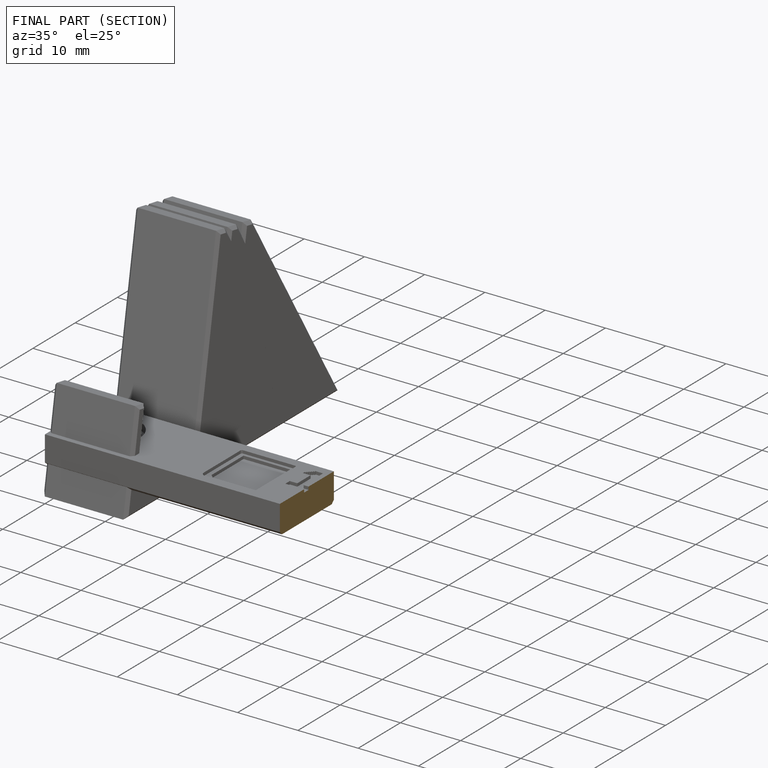
[diagram: finished part — half-section view (interior)]
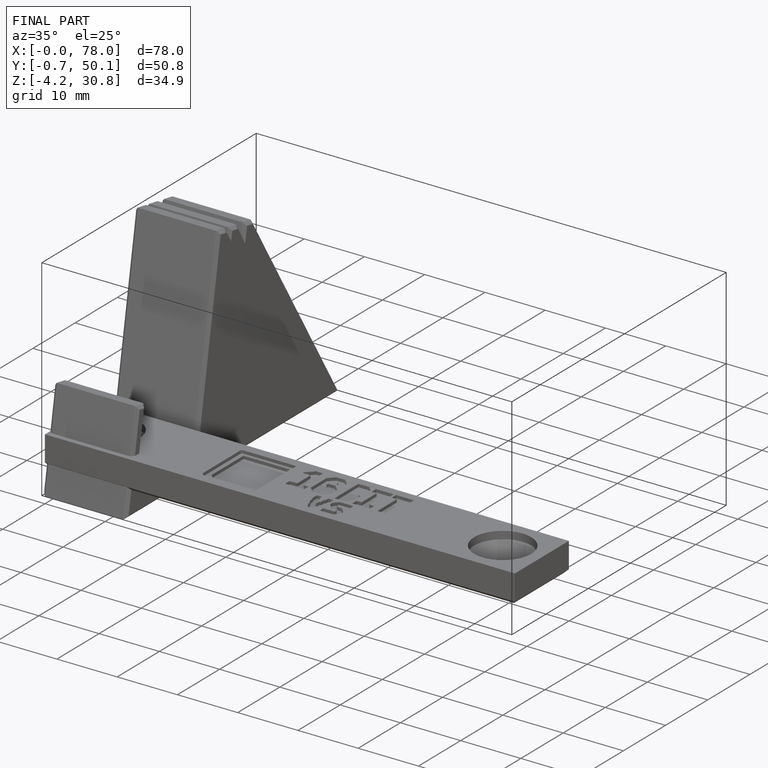
[diagram: finished part — iso view with bounding-box wireframe]
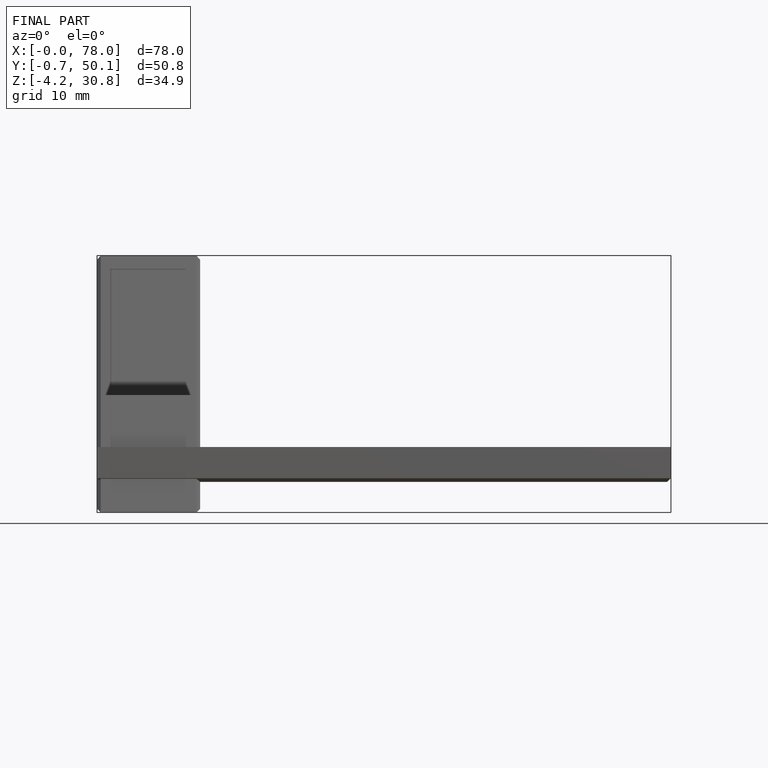
[diagram: finished part — front view with bounding-box wireframe]
